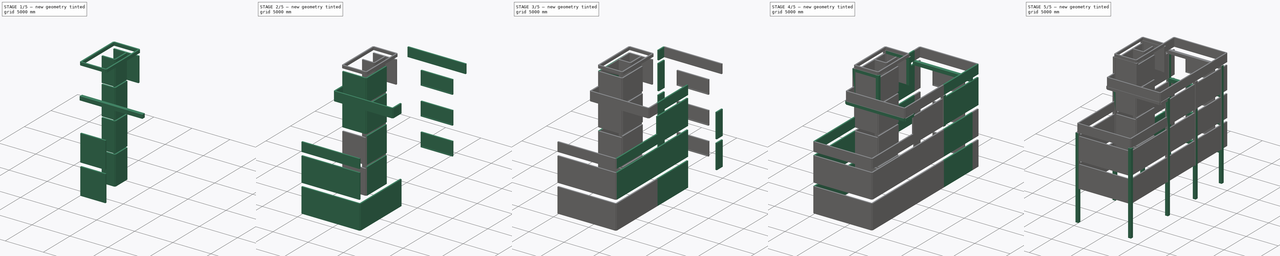
[diagram: build sequence overview — one tinted view per stage of 5, left to right]
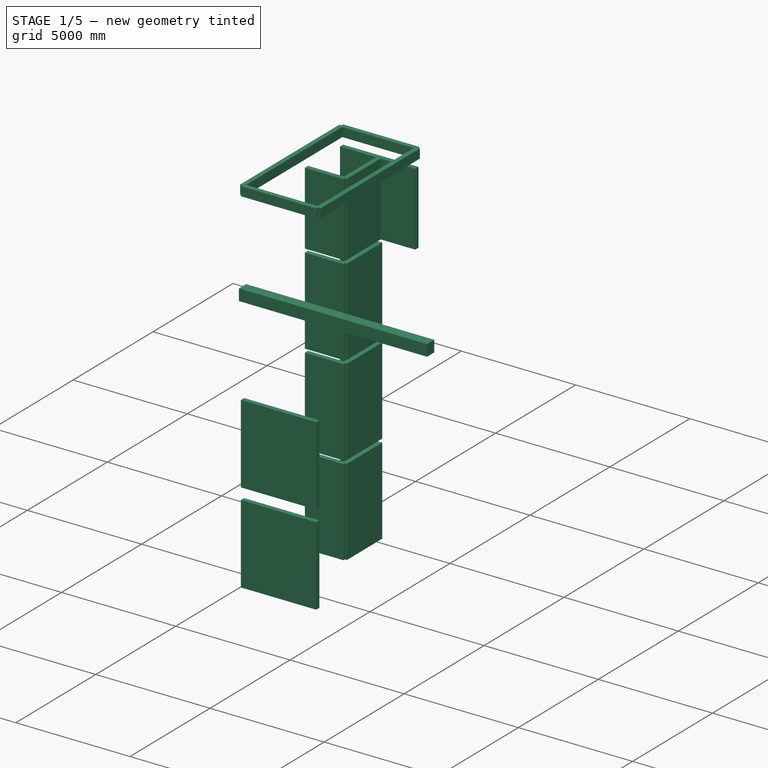
[diagram: stage 1 of 5 — iso view after this stage's code; geometry added in this stage tinted green]
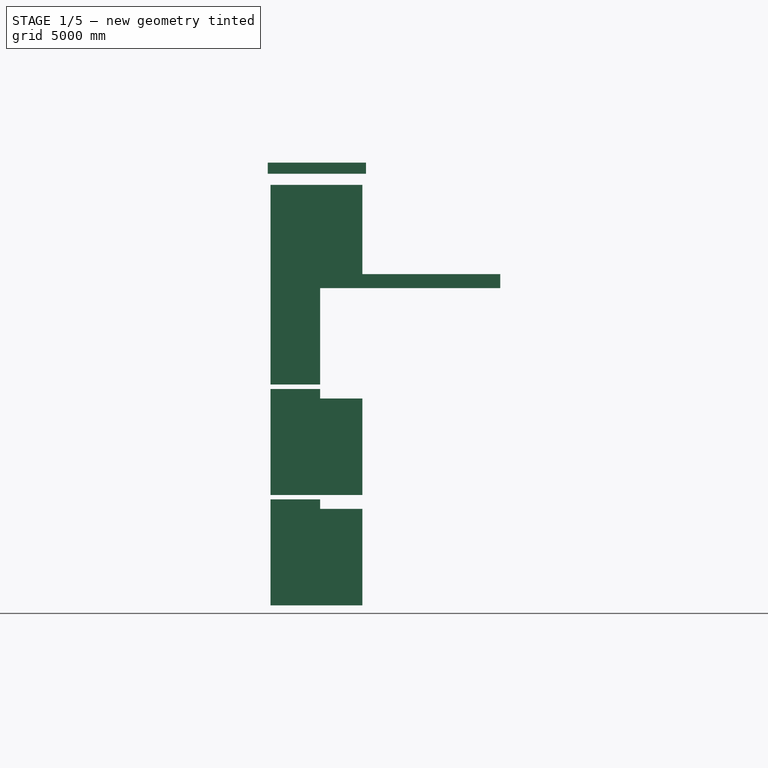
[diagram: stage 1 of 5 — front view after this stage's code; geometry added in this stage tinted green]
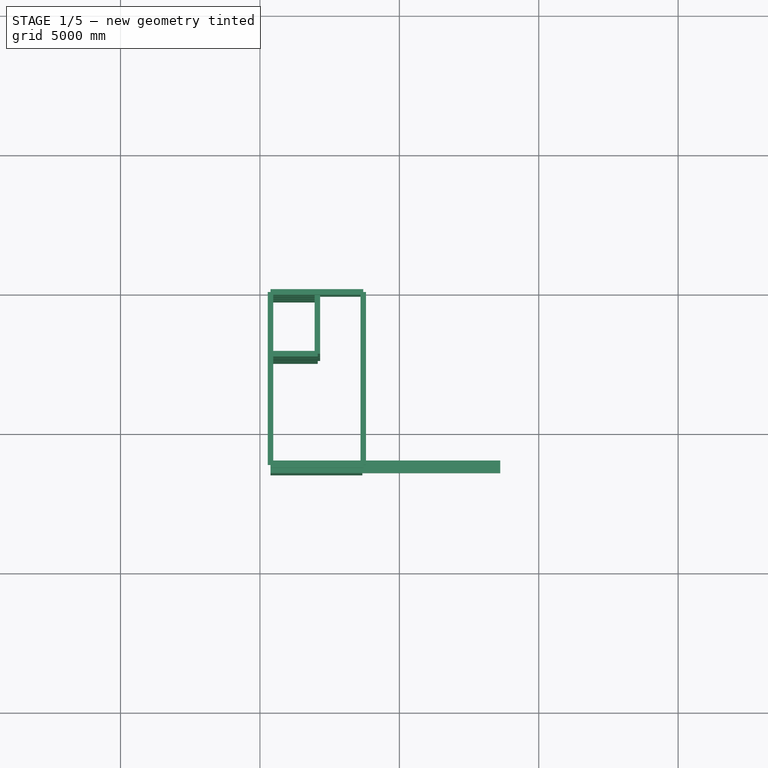
[diagram: stage 1 of 5 — top view after this stage's code; geometry added in this stage tinted green]
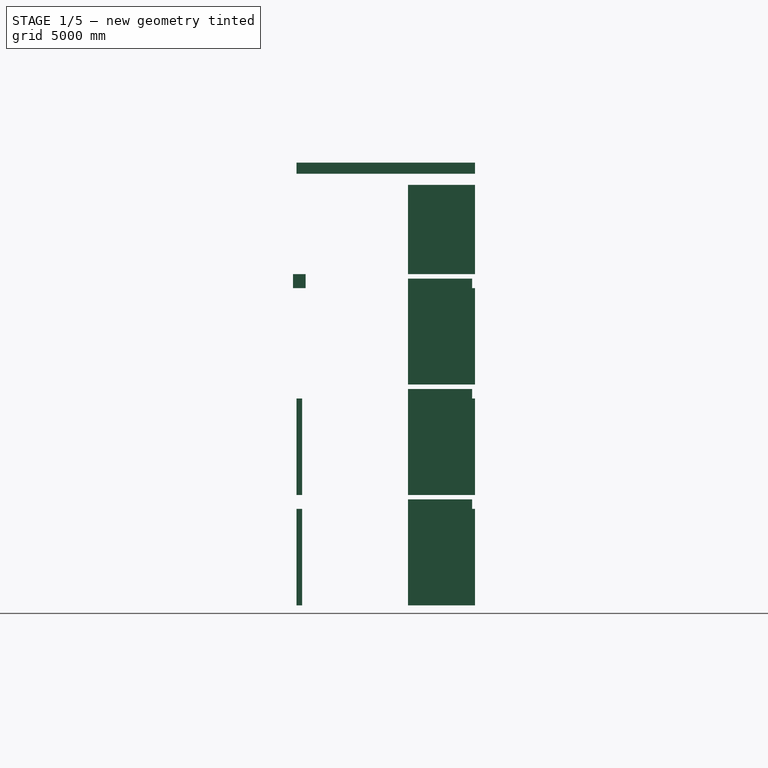
[diagram: stage 1 of 5 — right view after this stage's code; geometry added in this stage tinted green]
FCSTD DOCUMENT  (FreeCAD 0.21R32634 (Git))
Label: wall
License: All rights reserved
LicenseURL: http://en.wikipedia.org/wiki/All_rights_reserved
objects: Part::FeaturePython×169, Part::Part2DObjectPython×133, Sketcher::SketchObject×69, App::GeometryPython×7
note: 378 computed .brp shape members not serialized (recipe doc carries the construction recipe); baked Part::Feature solids carry a one-line shape summary decoded from their .brp

FEATURE [Part::Part2DObjectPython] Line062  label="B8_Story1_CenterLine"  # Draft 2D object (typed FeaturePython)
  Area = 0
  ChamferSize = 0
  Closed = false
  End = (8620,14830,4450)
  FilletRadius = 0
  Length = 8240
  MakeFace = true
  Points = (2) [(380,14830,4450),(8620,14830,4450)]
  Start = (380,14830,4450)
  Subdivisions = 0
FEATURE [Part::FeaturePython] Structure062  label="B8_Story1"  # Arch/BIM 7 (typed FeaturePython)
  AttacherType = Attacher::AttachEngine3D
  AttachmentOffset = pos=(0,-250,0) rot=(0,0,1;0rad)
  Base = -> B45H50
  BaseMirror = false
  BaseOffsetX = 0
  BaseOffsetY = 0
  BasePerpendicularToTool = false
  BaseRotation = 0
  ComputedLength = 8240
  FaceMaker = 0
  Height = 8240
  HorizontalArea = 3.708e+06
  IfcData = attributes={"GlobalId": {"name": "GlobalId", "type": "IfcGloballyUniqueId", "is_enum": false, "enum_values": []}, "Description": {"... (+475 chars omitted),+1 more (map truncated)
  IfcType = 7
  Length = 0
  MapMode = 7
  MoveBase = false
  MoveWithHost = false
  Nodes = (2) [(380,14830,4450),(8620,14830,4450)]
  NodesOffset = 0
  Normal = (0,0,0)
  PerimeterLength = 17380
  Placement = pos=(380,14830,4200) rot=(0.57735,0.57735,0.57735;2.0944rad)
  PredefinedType = 0
  Support = -> [Line062]
  ToolOffsetFirst = 0
  ToolOffsetLast = 0
  VerticalArea = 8.69e+06
  Width = 100
FEATURE [Part::Part2DObjectPython] Line064  label="B8_Roof_CenterLine"  # Draft 2D object (typed FeaturePython)
  Area = 0
  ChamferSize = 0
  Closed = false
  End = (8620,14830,16330)
  FilletRadius = 0
  Length = 8240
  MakeFace = true
  Points = (2) [(380,14830,16330),(8620,14830,16330)]
  Start = (380,14830,16330)
  Subdivisions = 0
FEATURE [Part::FeaturePython] Structure064  label="B8_Roof"  # Arch/BIM 7 (typed FeaturePython)
  AttacherType = Attacher::AttachEngine3D
  AttachmentOffset = pos=(0,-250,0) rot=(0,0,1;0rad)
  Base = -> B45H50
  BaseMirror = false
  BaseOffsetX = 0
  BaseOffsetY = 0
  BasePerpendicularToTool = false
  BaseRotation = 0
  ComputedLength = 8240
  FaceMaker = 0
  Height = 8240
  HorizontalArea = 3.708e+06
  IfcData = attributes={"GlobalId": {"name": "GlobalId", "type": "IfcGloballyUniqueId", "is_enum": false, "enum_values": []}, "Description": {"... (+475 chars omitted),+1 more (map truncated)
  IfcType = 7
  Length = 0
  MapMode = 7
  MoveBase = false
  MoveWithHost = false
  Nodes = (2) [(380,14830,16330),(8620,14830,16330)]
  NodesOffset = 0
  Normal = (0,0,0)
  PerimeterLength = 17380
  Placement = pos=(380,14830,16080) rot=(0.57735,0.57735,0.57735;2.0944rad)
  PredefinedType = 0
  Support = -> [Line064]
  ToolOffsetFirst = 0
  ToolOffsetLast = 0
  VerticalArea = 8.69e+06
  Width = 100
FEATURE [Part::Part2DObjectPython] Line065  label="B8_Story3_CenterLine"  # Draft 2D object (typed FeaturePython)
  Area = 0
  ChamferSize = 0
  Closed = false
  End = (8620,14830,12370)
  FilletRadius = 0
  Length = 8240
  MakeFace = true
  Points = (2) [(380,14830,12370),(8620,14830,12370)]
  Start = (380,14830,12370)
  Subdivisions = 0
FEATURE [Part::FeaturePython] Structure065  label="B8_Story3"  # Arch/BIM 7 (typed FeaturePython)
  AttacherType = Attacher::AttachEngine3D
  AttachmentOffset = pos=(0,-250,0) rot=(0,0,1;0rad)
  Base = -> B45H50
  BaseMirror = false
  BaseOffsetX = 0
  BaseOffsetY = 0
  BasePerpendicularToTool = false
  BaseRotation = 0
  ComputedLength = 8240
  FaceMaker = 0
  Height = 8240
  HorizontalArea = 3.708e+06
  IfcData = attributes={"GlobalId": {"name": "GlobalId", "type": "IfcGloballyUniqueId", "is_enum": false, "enum_values": []}, "Description": {"... (+475 chars omitted),+1 more (map truncated)
  IfcType = 7
  Length = 0
  MapMode = 7
  MoveBase = false
  MoveWithHost = false
  Nodes = (2) [(380,14830,12370),(8620,14830,12370)]
  NodesOffset = 0
  Normal = (0,0,0)
  PerimeterLength = 17380
  Placement = pos=(380,14830,12120) rot=(0.57735,0.57735,0.57735;2.0944rad)
  PredefinedType = 0
  Support = -> [Line065]
  ToolOffsetFirst = 0
  ToolOffsetLast = 0
  VerticalArea = 8.69e+06
  Width = 100
FEATURE [Part::Part2DObjectPython] Line066  label="B8_Story2_CenterLine"  # Draft 2D object (typed FeaturePython)
  Area = 0
  ChamferSize = 0
  Closed = false
  End = (8620,14830,8410)
  FilletRadius = 0
  Length = 8240
  MakeFace = true
  Points = (2) [(380,14830,8410),(8620,14830,8410)]
  Start = (380,14830,8410)
  Subdivisions = 0
FEATURE [Part::FeaturePython] Structure066  label="B8_Story2"  # Arch/BIM 7 (typed FeaturePython)
  AttacherType = Attacher::AttachEngine3D
  AttachmentOffset = pos=(0,-250,0) rot=(0,0,1;0rad)
  Base = -> B45H50
  BaseMirror = false
  BaseOffsetX = 0
  BaseOffsetY = 0
  BasePerpendicularToTool = false
  BaseRotation = 0
  ComputedLength = 8240
  FaceMaker = 0
  Height = 8240
  HorizontalArea = 3.708e+06
  IfcData = attributes={"GlobalId": {"name": "GlobalId", "type": "IfcGloballyUniqueId", "is_enum": false, "enum_values": []}, "Description": {"... (+475 chars omitted),+1 more (map truncated)
  IfcType = 7
  Length = 0
  MapMode = 7
  MoveBase = false
  MoveWithHost = false
  Nodes = (2) [(380,14830,8410),(8620,14830,8410)]
  NodesOffset = 0
  Normal = (0,0,0)
  PerimeterLength = 17380
  Placement = pos=(380,14830,8160) rot=(0.57735,0.57735,0.57735;2.0944rad)
  PredefinedType = 0
  Support = -> [Line066]
  ToolOffsetFirst = 0
  ToolOffsetLast = 0
  VerticalArea = 8.69e+06
  Width = 100
FEATURE [Part::Part2DObjectPython] Line067  label="B9_Story1_CenterLine"  # Draft 2D object (typed FeaturePython)
  Area = 0
  ChamferSize = 0
  Closed = false
  End = (8620,8630,4450)
  FilletRadius = 0
  Length = 8240
  MakeFace = true
  Points = (2) [(380,8630,4450),(8620,8630,4450)]
  Start = (380,8630,4450)
  Subdivisions = 0
FEATURE [Part::FeaturePython] Structure067  label="B9_Story1"  # Arch/BIM 7 (typed FeaturePython)
  AttacherType = Attacher::AttachEngine3D
  AttachmentOffset = pos=(0,-250,0) rot=(0,0,1;0rad)
  Base = -> B45H50
  BaseMirror = false
  BaseOffsetX = 0
  BaseOffsetY = 0
  BasePerpendicularToTool = false
  BaseRotation = 0
  ComputedLength = 8240
  FaceMaker = 0
  Height = 8240
  HorizontalArea = 3.708e+06
  IfcData = attributes={"GlobalId": {"name": "GlobalId", "type": "IfcGloballyUniqueId", "is_enum": false, "enum_values": []}, "Description": {"... (+475 chars omitted),+1 more (map truncated)
  IfcType = 7
  Length = 0
  MapMode = 7
  MoveBase = false
  MoveWithHost = false
  Nodes = (2) [(380,8630,4450),(8620,8630,4450)]
  NodesOffset = 0
  Normal = (0,0,0)
  PerimeterLength = 17380
  Placement = pos=(380,8630,4200) rot=(0.57735,0.57735,0.57735;2.0944rad)
  PredefinedType = 0
  Support = -> [Line067]
  ToolOffsetFirst = 0
  ToolOffsetLast = 0
  VerticalArea = 8.69e+06
  Width = 100
FEATURE [Part::Part2DObjectPython] Line069  label="B9_Roof_CenterLine"  # Draft 2D object (typed FeaturePython)
  Area = 0
  ChamferSize = 0
  Closed = false
  End = (8620,8630,16330)
  FilletRadius = 0
  Length = 8240
  MakeFace = true
  Points = (2) [(380,8630,16330),(8620,8630,16330)]
  Start = (380,8630,16330)
  Subdivisions = 0
FEATURE [Part::FeaturePython] Structure069  label="B9_Roof"  # Arch/BIM 7 (typed FeaturePython)
  AttacherType = Attacher::AttachEngine3D
  AttachmentOffset = pos=(0,-250,0) rot=(0,0,1;0rad)
  Base = -> B45H50
  BaseMirror = false
  BaseOffsetX = 0
  BaseOffsetY = 0
  BasePerpendicularToTool = false
  BaseRotation = 0
  ComputedLength = 8240
  FaceMaker = 0
  Height = 8240
  HorizontalArea = 3.708e+06
  IfcData = attributes={"GlobalId": {"name": "GlobalId", "type": "IfcGloballyUniqueId", "is_enum": false, "enum_values": []}, "Description": {"... (+475 chars omitted),+1 more (map truncated)
  IfcType = 7
  Length = 0
  MapMode = 7
  MoveBase = false
  MoveWithHost = false
  Nodes = (2) [(380,8630,16330),(8620,8630,16330)]
  NodesOffset = 0
  Normal = (0,0,0)
  PerimeterLength = 17380
  Placement = pos=(380,8630,16080) rot=(0.57735,0.57735,0.57735;2.0944rad)
  PredefinedType = 0
  Support = -> [Line069]
  ToolOffsetFirst = 0
  ToolOffsetLast = 0
  VerticalArea = 8.69e+06
  Width = 100
FEATURE [Part::Part2DObjectPython] Line070  label="B9_Story3_CenterLine"  # Draft 2D object (typed FeaturePython)
  Area = 0
  ChamferSize = 0
  Closed = false
  End = (8620,8630,12370)
  FilletRadius = 0
  Length = 8240
  MakeFace = true
  Points = (2) [(380,8630,12370),(8620,8630,12370)]
  Start = (380,8630,12370)
  Subdivisions = 0
FEATURE [Part::FeaturePython] Structure070  label="B9_Story3"  # Arch/BIM 7 (typed FeaturePython)
  AttacherType = Attacher::AttachEngine3D
  AttachmentOffset = pos=(0,-250,0) rot=(0,0,1;0rad)
  Base = -> B45H50
  BaseMirror = false
  BaseOffsetX = 0
  BaseOffsetY = 0
  BasePerpendicularToTool = false
  BaseRotation = 0
  ComputedLength = 8240
  FaceMaker = 0
  Height = 8240
  HorizontalArea = 3.708e+06
  IfcData = attributes={"GlobalId": {"name": "GlobalId", "type": "IfcGloballyUniqueId", "is_enum": false, "enum_values": []}, "Description": {"... (+475 chars omitted),+1 more (map truncated)
  IfcType = 7
  Length = 0
  MapMode = 7
  MoveBase = false
  MoveWithHost = false
  Nodes = (2) [(380,8630,12370),(8620,8630,12370)]
  NodesOffset = 0
  Normal = (0,0,0)
  PerimeterLength = 17380
  Placement = pos=(380,8630,12120) rot=(0.57735,0.57735,0.57735;2.0944rad)
  PredefinedType = 0
  Support = -> [Line070]
  ToolOffsetFirst = 0
  ToolOffsetLast = 0
  VerticalArea = 8.69e+06
  Width = 100
FEATURE [Part::Part2DObjectPython] Line071  label="B9_Story2_CenterLine"  # Draft 2D object (typed FeaturePython)
  Area = 0
  ChamferSize = 0
  Closed = false
  End = (8620,8630,8410)
  FilletRadius = 0
  Length = 8240
  MakeFace = true
  Points = (2) [(380,8630,8410),(8620,8630,8410)]
  Start = (380,8630,8410)
  Subdivisions = 0
FEATURE [Part::FeaturePython] Structure071  label="B9_Story2"  # Arch/BIM 7 (typed FeaturePython)
  AttacherType = Attacher::AttachEngine3D
  AttachmentOffset = pos=(0,-250,0) rot=(0,0,1;0rad)
  Base = -> B45H50
  BaseMirror = false
  BaseOffsetX = 0
  BaseOffsetY = 0
  BasePerpendicularToTool = false
  BaseRotation = 0
  ComputedLength = 8240
  FaceMaker = 0
  Height = 8240
  HorizontalArea = 3.708e+06
  IfcData = attributes={"GlobalId": {"name": "GlobalId", "type": "IfcGloballyUniqueId", "is_enum": false, "enum_values": []}, "Description": {"... (+475 chars omitted),+1 more (map truncated)
  IfcType = 7
  Length = 0
  MapMode = 7
  MoveBase = false
  MoveWithHost = false
  Nodes = (2) [(380,8630,8410),(8620,8630,8410)]
  NodesOffset = 0
  Normal = (0,0,0)
  PerimeterLength = 17380
  Placement = pos=(380,8630,8160) rot=(0.57735,0.57735,0.57735;2.0944rad)
  PredefinedType = 0
  Support = -> [Line071]
  ToolOffsetFirst = 0
  ToolOffsetLast = 0
  VerticalArea = 8.69e+06
  Width = 100
FEATURE [Part::Part2DObjectPython] IPE160  # Draft 2D object (typed FeaturePython)
  FlangeThickness = 7.4
  Height = 160
  WebThickness = 5
  Width = 82
FEATURE [Part::Part2DObjectPython] Line094  label="B25_Story1_CenterLine"  # Draft 2D object (typed FeaturePython)
  Area = 0
  ChamferSize = 0
  Closed = false
  End = (3705,12630,4450)
  FilletRadius = 0
  Length = 3325
  MakeFace = true
  Points = (2) [(380,12630,4450),(3705,12630,4450)]
  Start = (380,12630,4450)
  Subdivisions = 0
FEATURE [Part::FeaturePython] Structure094  label="B25_Story1"  # Arch/BIM 7 (typed FeaturePython)
  AttacherType = Attacher::AttachEngine3D
  AttachmentOffset = pos=(0,-80,0) rot=(0,0,1;0rad)
  Base = -> IPE160
  BaseMirror = false
  BaseOffsetX = 0
  BaseOffsetY = 0
  BasePerpendicularToTool = false
  BaseRotation = 0
  ComputedLength = 3325
  FaceMaker = 0
  Height = 3325
  HorizontalArea = 528675
  IfcData = attributes={"GlobalId": {"name": "GlobalId", "type": "IfcGloballyUniqueId", "is_enum": false, "enum_values": []}, "Description": {"... (+475 chars omitted),+1 more (map truncated)
  IfcType = 7
  Length = 0
  MapMode = 7
  MoveBase = false
  MoveWithHost = false
  Nodes = (2) [(380,12630,4450),(3705,12630,4450)]
  NodesOffset = 0
  Normal = (0,0,0)
  PerimeterLength = 0
  Placement = pos=(380,12630,4370) rot=(0.57735,0.57735,0.57735;2.0944rad)
  PredefinedType = 0
  Support = -> [Line094]
  ToolOffsetFirst = 0
  ToolOffsetLast = 0
  VerticalArea = 1.06788e+06
  Width = 100
FEATURE [Part::Part2DObjectPython] Line095  label="B27_Story1_CenterLine"  # Draft 2D object (typed FeaturePython)
  Area = 0
  ChamferSize = 0
  Closed = false
  End = (2060,14830,4450)
  FilletRadius = 0
  Length = 2200
  MakeFace = true
  Points = (2) [(2060,12630,4450),(2060,14830,4450)]
  Start = (2060,12630,4450)
  Subdivisions = 0
FEATURE [Part::FeaturePython] Structure095  label="B27_Story1"  # Arch/BIM 7 (typed FeaturePython)
  AttacherType = Attacher::AttachEngine3D
  AttachmentOffset = pos=(0,-80,0) rot=(0,0,1;0rad)
  Base = -> IPE160
  BaseMirror = false
  BaseOffsetX = 0
  BaseOffsetY = 0
  BasePerpendicularToTool = false
  BaseRotation = 0
  ComputedLength = 2200
  FaceMaker = 0
  Height = 2200
  HorizontalArea = 349800
  IfcData = attributes={"GlobalId": {"name": "GlobalId", "type": "IfcGloballyUniqueId", "is_enum": false, "enum_values": []}, "Description": {"... (+475 chars omitted),+1 more (map truncated)
  IfcType = 7
  Length = 0
  MapMode = 7
  MoveBase = false
  MoveWithHost = false
  Nodes = (2) [(2060,12630,4450),(2060,14830,4450)]
  NodesOffset = 0
  Normal = (0,0,0)
  PerimeterLength = 0
  Placement = pos=(2060,12630,4370) rot=(0,0.707107,0.707107;3.14159rad)
  PredefinedType = 0
  Support = -> [Line095]
  ToolOffsetFirst = 0
  ToolOffsetLast = 0
  VerticalArea = 707879
  Width = 100
FEATURE [Part::Part2DObjectPython] Line096  label="B25_Roof_CenterLine"  # Draft 2D object (typed FeaturePython)
  Area = 0
  ChamferSize = 0
  Closed = false
  End = (3705,12630,16330)
  FilletRadius = 0
  Length = 3325
  MakeFace = true
  Points = (2) [(380,12630,16330),(3705,12630,16330)]
  Start = (380,12630,16330)
  Subdivisions = 0
FEATURE [Part::FeaturePython] Structure096  label="B25_Roof"  # Arch/BIM 7 (typed FeaturePython)
  AttacherType = Attacher::AttachEngine3D
  AttachmentOffset = pos=(0,-80,0) rot=(0,0,1;0rad)
  Base = -> IPE160
  BaseMirror = false
  BaseOffsetX = 0
  BaseOffsetY = 0
  BasePerpendicularToTool = false
  BaseRotation = 0
  ComputedLength = 3325
  FaceMaker = 0
  Height = 3325
  HorizontalArea = 528675
  IfcData = attributes={"GlobalId": {"name": "GlobalId", "type": "IfcGloballyUniqueId", "is_enum": false, "enum_values": []}, "Description": {"... (+475 chars omitted),+1 more (map truncated)
  IfcType = 7
  Length = 0
  MapMode = 7
  MoveBase = false
  MoveWithHost = false
  Nodes = (2) [(380,12630,16330),(3705,12630,16330)]
  NodesOffset = 0
  Normal = (0,0,0)
  PerimeterLength = 0
  Placement = pos=(380,12630,16250) rot=(0.57735,0.57735,0.57735;2.0944rad)
  PredefinedType = 0
  Support = -> [Line096]
  ToolOffsetFirst = 0
  ToolOffsetLast = 0
  VerticalArea = 1.06788e+06
  Width = 100
FEATURE [Part::Part2DObjectPython] Line097  label="B27_Roof_CenterLine"  # Draft 2D object (typed FeaturePython)
  Area = 0
  ChamferSize = 0
  Closed = false
  End = (2060,14830,16330)
  FilletRadius = 0
  Length = 2200
  MakeFace = true
  Points = (2) [(2060,12630,16330),(2060,14830,16330)]
  Start = (2060,12630,16330)
  Subdivisions = 0
FEATURE [Part::FeaturePython] Structure097  label="B27_Roof"  # Arch/BIM 7 (typed FeaturePython)
  AttacherType = Attacher::AttachEngine3D
  AttachmentOffset = pos=(0,-80,0) rot=(0,0,1;0rad)
  Base = -> IPE160
  BaseMirror = false
  BaseOffsetX = 0
  BaseOffsetY = 0
  BasePerpendicularToTool = false
  BaseRotation = 0
  ComputedLength = 2200
  FaceMaker = 0
  Height = 2200
  HorizontalArea = 349800
  IfcData = attributes={"GlobalId": {"name": "GlobalId", "type": "IfcGloballyUniqueId", "is_enum": false, "enum_values": []}, "Description": {"... (+475 chars omitted),+1 more (map truncated)
  IfcType = 7
  Length = 0
  MapMode = 7
  MoveBase = false
  MoveWithHost = false
  Nodes = (2) [(2060,12630,16330),(2060,14830,16330)]
  NodesOffset = 0
  Normal = (0,0,0)
  PerimeterLength = 0
  Placement = pos=(2060,12630,16250) rot=(0,0.707107,0.707107;3.14159rad)
  PredefinedType = 0
  Support = -> [Line097]
  ToolOffsetFirst = 0
  ToolOffsetLast = 0
  VerticalArea = 707879
  Width = 100
FEATURE [Part::Part2DObjectPython] Line098  label="B25_Story3_CenterLine"  # Draft 2D object (typed FeaturePython)
  Area = 0
  ChamferSize = 0
  Closed = false
  End = (3705,12630,12370)
  FilletRadius = 0
  Length = 3325
  MakeFace = true
  Points = (2) [(380,12630,12370),(3705,12630,12370)]
  Start = (380,12630,12370)
  Subdivisions = 0
FEATURE [Part::FeaturePython] Structure098  label="B25_Story3"  # Arch/BIM 7 (typed FeaturePython)
  AttacherType = Attacher::AttachEngine3D
  AttachmentOffset = pos=(0,-80,0) rot=(0,0,1;0rad)
  Base = -> IPE160
  BaseMirror = false
  BaseOffsetX = 0
  BaseOffsetY = 0
  BasePerpendicularToTool = false
  BaseRotation = 0
  ComputedLength = 3325
  FaceMaker = 0
  Height = 3325
  HorizontalArea = 528675
  IfcData = attributes={"GlobalId": {"name": "GlobalId", "type": "IfcGloballyUniqueId", "is_enum": false, "enum_values": []}, "Description": {"... (+475 chars omitted),+1 more (map truncated)
  IfcType = 7
  Length = 0
  MapMode = 7
  MoveBase = false
  MoveWithHost = false
  Nodes = (2) [(380,12630,12370),(3705,12630,12370)]
  NodesOffset = 0
  Normal = (0,0,0)
  PerimeterLength = 0
  Placement = pos=(380,12630,12290) rot=(0.57735,0.57735,0.57735;2.0944rad)
  PredefinedType = 0
  Support = -> [Line098]
  ToolOffsetFirst = 0
  ToolOffsetLast = 0
  VerticalArea = 1.06788e+06
  Width = 100
FEATURE [Part::Part2DObjectPython] Line099  label="B27_Story3_CenterLine"  # Draft 2D object (typed FeaturePython)
  Area = 0
  ChamferSize = 0
  Closed = false
  End = (2060,14830,12370)
  FilletRadius = 0
  Length = 2200
  MakeFace = true
  Points = (2) [(2060,12630,12370),(2060,14830,12370)]
  Start = (2060,12630,12370)
  Subdivisions = 0
FEATURE [Part::FeaturePython] Structure099  label="B27_Story3"  # Arch/BIM 7 (typed FeaturePython)
  AttacherType = Attacher::AttachEngine3D
  AttachmentOffset = pos=(0,-80,0) rot=(0,0,1;0rad)
  Base = -> IPE160
  BaseMirror = false
  BaseOffsetX = 0
  BaseOffsetY = 0
  BasePerpendicularToTool = false
  BaseRotation = 0
  ComputedLength = 2200
  FaceMaker = 0
  Height = 2200
  HorizontalArea = 349800
  IfcData = attributes={"GlobalId": {"name": "GlobalId", "type": "IfcGloballyUniqueId", "is_enum": false, "enum_values": []}, "Description": {"... (+475 chars omitted),+1 more (map truncated)
  IfcType = 7
  Length = 0
  MapMode = 7
  MoveBase = false
  MoveWithHost = false
  Nodes = (2) [(2060,12630,12370),(2060,14830,12370)]
  NodesOffset = 0
  Normal = (0,0,0)
  PerimeterLength = 0
  Placement = pos=(2060,12630,12290) rot=(0,0.707107,0.707107;3.14159rad)
  PredefinedType = 0
  Support = -> [Line099]
  ToolOffsetFirst = 0
  ToolOffsetLast = 0
  VerticalArea = 707879
  Width = 100
FEATURE [Part::Part2DObjectPython] Line100  label="B25_Story2_CenterLine"  # Draft 2D object (typed FeaturePython)
  Area = 0
  ChamferSize = 0
  Closed = false
  End = (3705,12630,8410)
  FilletRadius = 0
  Length = 3325
  MakeFace = true
  Points = (2) [(380,12630,8410),(3705,12630,8410)]
  Start = (380,12630,8410)
  Subdivisions = 0
FEATURE [Part::FeaturePython] Structure100  label="B25_Story2"  # Arch/BIM 7 (typed FeaturePython)
  AttacherType = Attacher::AttachEngine3D
  AttachmentOffset = pos=(0,-80,0) rot=(0,0,1;0rad)
  Base = -> IPE160
  BaseMirror = false
  BaseOffsetX = 0
  BaseOffsetY = 0
  BasePerpendicularToTool = false
  BaseRotation = 0
  ComputedLength = 3325
  FaceMaker = 0
  Height = 3325
  HorizontalArea = 528675
  IfcData = attributes={"GlobalId": {"name": "GlobalId", "type": "IfcGloballyUniqueId", "is_enum": false, "enum_values": []}, "Description": {"... (+475 chars omitted),+1 more (map truncated)
  IfcType = 7
  Length = 0
  MapMode = 7
  MoveBase = false
  MoveWithHost = false
  Nodes = (2) [(380,12630,8410),(3705,12630,8410)]
  NodesOffset = 0
  Normal = (0,0,0)
  PerimeterLength = 0
  Placement = pos=(380,12630,8330) rot=(0.57735,0.57735,0.57735;2.0944rad)
  PredefinedType = 0
  Support = -> [Line100]
  ToolOffsetFirst = 0
  ToolOffsetLast = 0
  VerticalArea = 1.06788e+06
  Width = 100
FEATURE [Part::Part2DObjectPython] Line101  label="B27_Story2_CenterLine"  # Draft 2D object (typed FeaturePython)
  Area = 0
  ChamferSize = 0
  Closed = false
  End = (2060,14830,8410)
  FilletRadius = 0
  Length = 2200
  MakeFace = true
  Points = (2) [(2060,12630,8410),(2060,14830,8410)]
  Start = (2060,12630,8410)
  Subdivisions = 0
FEATURE [Part::FeaturePython] Structure101  label="B27_Story2"  # Arch/BIM 7 (typed FeaturePython)
  AttacherType = Attacher::AttachEngine3D
  AttachmentOffset = pos=(0,-80,0) rot=(0,0,1;0rad)
  Base = -> IPE160
  BaseMirror = false
  BaseOffsetX = 0
  BaseOffsetY = 0
  BasePerpendicularToTool = false
  BaseRotation = 0
  ComputedLength = 2200
  FaceMaker = 0
  Height = 2200
  HorizontalArea = 349800
  IfcData = attributes={"GlobalId": {"name": "GlobalId", "type": "IfcGloballyUniqueId", "is_enum": false, "enum_values": []}, "Description": {"... (+475 chars omitted),+1 more (map truncated)
  IfcType = 7
  Length = 0
  MapMode = 7
  MoveBase = false
  MoveWithHost = false
  Nodes = (2) [(2060,12630,8410),(2060,14830,8410)]
  NodesOffset = 0
  Normal = (0,0,0)
  PerimeterLength = 0
  Placement = pos=(2060,12630,8330) rot=(0,0.707107,0.707107;3.14159rad)
  PredefinedType = 0
  Support = -> [Line101]
  ToolOffsetFirst = 0
  ToolOffsetLast = 0
  VerticalArea = 707879
  Width = 100
FEATURE [Sketcher::SketchObject] WallTrace081  label="B9_Story2_CenterLine_walltrace"
  FullyConstrained = false
  Placement = pos=(0,0,8410) rot=(0,0,1;0rad)
  sketch-geometry (1):
    g0: LineSegment StartX=380 StartY=8630 StartZ=0 EndX=3676 EndY=8630 EndZ=0
FEATURE [Part::FeaturePython] Wall081  # Arch/BIM 166 (typed FeaturePython)
  Align = 2
  Area = 1.14042e+07
  Base = -> WallTrace081
  BlockHeight = 0
  BlockLength = 0
  CountBroken = 0
  CountEntire = 0
  Face = 0
  Height = 3460
  HorizontalArea = 659200
  IfcData = attributes={"GlobalId": {"name": "GlobalId", "type": "IfcGloballyUniqueId", "is_enum": false, "enum_values": []}, "Description": {"... (+533 chars omitted),+1 more (map truncated)
  IfcType = 166
  Joint = 0
  Length = 3296
  MakeBlocks = false
  MoveBase = false
  MoveWithHost = false
  Normal = (0,0,0)
  OffsetFirst = 0
  OffsetSecond = 0
  PerimeterLength = 6992
  PredefinedType = 0
  VerticalArea = 2.41923e+07
  Width = 200
  base = -> Line071
  loadpat = SD
  weight = 220
  expr: Height = Structure070.Shape.BoundBox.ZMin - Structure071.Shape.BoundBox.ZMax
FEATURE [Sketcher::SketchObject] WallTrace082  label="B9_Story1_CenterLine_walltrace"
  FullyConstrained = false
  Placement = pos=(0,0,4450) rot=(0,0,1;0rad)
  sketch-geometry (1):
    g0: LineSegment StartX=380 StartY=8630 StartZ=0 EndX=3676 EndY=8630 EndZ=0
FEATURE [Part::FeaturePython] Wall082  # Arch/BIM 166 (typed FeaturePython)
  Align = 2
  Area = 11404160
  Base = -> WallTrace082
  BlockHeight = 0
  BlockLength = 0
  CountBroken = 0
  CountEntire = 0
  Face = 0
  Height = 3460
  HorizontalArea = 659200
  IfcData = attributes={"GlobalId": {"name": "GlobalId", "type": "IfcGloballyUniqueId", "is_enum": false, "enum_values": []}, "Description": {"... (+533 chars omitted),+1 more (map truncated)
  IfcType = 166
  Joint = 0
  Length = 3296
  MakeBlocks = false
  MoveBase = false
  MoveWithHost = false
  Normal = (0,0,0)
  OffsetFirst = 0
  OffsetSecond = 0
  PerimeterLength = 6992
  PredefinedType = 0
  VerticalArea = 24192320
  Width = 200
  base = -> Line067
  loadpat = SD
  weight = 220
  expr: Height = Structure071.Shape.BoundBox.ZMin - Structure067.Shape.BoundBox.ZMax
FEATURE [Sketcher::SketchObject] WallTrace084  label="B8_Story3_CenterLine_walltrace"
  FullyConstrained = false
  Placement = pos=(0,0,12370) rot=(0,0,1;0rad)
  sketch-geometry (1):
    g0: LineSegment StartX=380 StartY=14830 StartZ=0 EndX=2028 EndY=14830 EndZ=0
FEATURE [Part::FeaturePython] Wall084  # Arch/BIM 166 (typed FeaturePython)
  Align = 2
  Area = 5702080
  Base = -> WallTrace084
  BlockHeight = 0
  BlockLength = 0
  CountBroken = 0
  CountEntire = 0
  Face = 0
  Height = 3460
  HorizontalArea = 329600
  IfcData = attributes={"GlobalId": {"name": "GlobalId", "type": "IfcGloballyUniqueId", "is_enum": false, "enum_values": []}, "Description": {"... (+533 chars omitted),+1 more (map truncated)
  IfcType = 166
  Joint = 0
  Length = 1648
  MakeBlocks = false
  MoveBase = false
  MoveWithHost = false
  Normal = (0,0,0)
  OffsetFirst = 0
  OffsetSecond = 0
  PerimeterLength = 3696
  PredefinedType = 0
  VerticalArea = 12788160
  Width = 200
  base = -> Line065
  loadpat = SD
  weight = 220
  expr: Height = Structure064.Shape.BoundBox.ZMin - Structure065.Shape.BoundBox.ZMax
FEATURE [Sketcher::SketchObject] WallTrace085  label="B8_Story2_CenterLine_walltrace"
  FullyConstrained = false
  Placement = pos=(0,0,8410) rot=(0,0,1;0rad)
  sketch-geometry (1):
    g0: LineSegment StartX=380 StartY=14830 StartZ=0 EndX=2028 EndY=14830 EndZ=0
FEATURE [Part::FeaturePython] Wall085  # Arch/BIM 166 (typed FeaturePython)
  Align = 2
  Area = 5.70208e+06
  Base = -> WallTrace085
  BlockHeight = 0
  BlockLength = 0
  CountBroken = 0
  CountEntire = 0
  Face = 0
  Height = 3460
  HorizontalArea = 329600
  IfcData = attributes={"GlobalId": {"name": "GlobalId", "type": "IfcGloballyUniqueId", "is_enum": false, "enum_values": []}, "Description": {"... (+533 chars omitted),+1 more (map truncated)
  IfcType = 166
  Joint = 0
  Length = 1648
  MakeBlocks = false
  MoveBase = false
  MoveWithHost = false
  Normal = (0,0,0)
  OffsetFirst = 0
  OffsetSecond = 0
  PerimeterLength = 3696
  PredefinedType = 0
  VerticalArea = 1.27882e+07
  Width = 200
  base = -> Line066
  loadpat = SD
  weight = 220
  expr: Height = Structure065.Shape.BoundBox.ZMin - Structure066.Shape.BoundBox.ZMax
FEATURE [Sketcher::SketchObject] WallTrace086  label="B8_Story1_CenterLine_walltrace"
  FullyConstrained = false
  Placement = pos=(0,0,4450) rot=(0,0,1;0rad)
  sketch-geometry (1):
    g0: LineSegment StartX=380 StartY=14830 StartZ=0 EndX=2028 EndY=14830 EndZ=0
FEATURE [Part::FeaturePython] Wall086  # Arch/BIM 166 (typed FeaturePython)
  Align = 2
  Area = 5702080
  Base = -> WallTrace086
  BlockHeight = 0
  BlockLength = 0
  CountBroken = 0
  CountEntire = 0
  Face = 0
  Height = 3460
  HorizontalArea = 329600
  IfcData = attributes={"GlobalId": {"name": "GlobalId", "type": "IfcGloballyUniqueId", "is_enum": false, "enum_values": []}, "Description": {"... (+533 chars omitted),+1 more (map truncated)
  IfcType = 166
  Joint = 0
  Length = 1648
  MakeBlocks = false
  MoveBase = false
  MoveWithHost = false
  Normal = (0,0,0)
  OffsetFirst = 0
  OffsetSecond = 0
  PerimeterLength = 3696
  PredefinedType = 0
  VerticalArea = 12788160
  Width = 200
  base = -> Line062
  loadpat = SD
  weight = 220
  expr: Height = Structure066.Shape.BoundBox.ZMin - Structure062.Shape.BoundBox.ZMax
FEATURE [Sketcher::SketchObject] WallTrace087  label="B25_Roof_CenterLine_walltrace"
  FullyConstrained = false
  Placement = pos=(0,0,16330) rot=(0,0,1;0rad)
  sketch-geometry (1):
    g0: LineSegment StartX=2075.75 StartY=12630 StartZ=0 EndX=380 EndY=12630 EndZ=0
FEATURE [Part::FeaturePython] Wall087  # Arch/BIM 166 (typed FeaturePython)
  Align = 2
  Area = 5426400
  Base = -> WallTrace087
  BlockHeight = 0
  BlockLength = 0
  CountBroken = 0
  CountEntire = 0
  Face = 0
  Height = 3200
  HorizontalArea = 339150
  IfcData = attributes={"GlobalId": {"name": "GlobalId", "type": "IfcGloballyUniqueId", "is_enum": false, "enum_values": []}, "Description": {"... (+533 chars omitted),+1 more (map truncated)
  IfcType = 166
  Joint = 0
  Length = 1695.75
  MakeBlocks = false
  MoveBase = false
  MoveWithHost = false
  Normal = (0,0,0)
  OffsetFirst = 0
  OffsetSecond = 0
  PerimeterLength = 3791.5
  PredefinedType = 0
  VerticalArea = 12132800
  Width = 200
  base = -> Line096
  loadpat = SD
  weight = 160
FEATURE [Sketcher::SketchObject] WallTrace088  label="B25_Story3_CenterLine_walltrace"
  FullyConstrained = false
  Placement = pos=(0,0,12370) rot=(0,0,1;0rad)
  sketch-geometry (1):
    g0: LineSegment StartX=2075.75 StartY=12630 StartZ=0 EndX=380 EndY=12630 EndZ=0
FEATURE [Part::FeaturePython] Wall088  # Arch/BIM 166 (typed FeaturePython)
  Align = 2
  Area = 6443850
  Base = -> WallTrace088
  BlockHeight = 0
  BlockLength = 0
  CountBroken = 0
  CountEntire = 0
  Face = 0
  Height = 3800
  HorizontalArea = 339150
  IfcData = attributes={"GlobalId": {"name": "GlobalId", "type": "IfcGloballyUniqueId", "is_enum": false, "enum_values": []}, "Description": {"... (+533 chars omitted),+1 more (map truncated)
  IfcType = 166
  Joint = 0
  Length = 1695.75
  MakeBlocks = false
  MoveBase = false
  MoveWithHost = false
  Normal = (0,0,0)
  OffsetFirst = 0
  OffsetSecond = 0
  PerimeterLength = 3791.5
  PredefinedType = 0
  VerticalArea = 14407700
  Width = 200
  base = -> Line098
  loadpat = SD
  weight = 160
  expr: Height = Structure096.Shape.BoundBox.ZMin - Structure098.Shape.BoundBox.ZMax
FEATURE [Sketcher::SketchObject] WallTrace089  label="B25_Story2_CenterLine_walltrace"
  FullyConstrained = false
  Placement = pos=(0,0,8410) rot=(0,0,1;0rad)
  sketch-geometry (1):
    g0: LineSegment StartX=2075.75 StartY=12630 StartZ=0 EndX=380 EndY=12630 EndZ=0
FEATURE [Part::FeaturePython] Wall089  # Arch/BIM 166 (typed FeaturePython)
  Align = 2
  Area = 6.44385e+06
  Base = -> WallTrace089
  BlockHeight = 0
  BlockLength = 0
  CountBroken = 0
  CountEntire = 0
  Face = 0
  Height = 3800
  HorizontalArea = 339150
  IfcData = attributes={"GlobalId": {"name": "GlobalId", "type": "IfcGloballyUniqueId", "is_enum": false, "enum_values": []}, "Description": {"... (+533 chars omitted),+1 more (map truncated)
  IfcType = 166
  Joint = 0
  Length = 1695.75
  MakeBlocks = false
  MoveBase = false
  MoveWithHost = false
  Normal = (0,0,0)
  OffsetFirst = 0
  OffsetSecond = 0
  PerimeterLength = 3791.5
  PredefinedType = 0
  VerticalArea = 1.44077e+07
  Width = 200
  base = -> Line100
  loadpat = SD
  weight = 160
  expr: Height = Structure098.Shape.BoundBox.ZMin - Structure100.Shape.BoundBox.ZMax
FEATURE [Sketcher::SketchObject] WallTrace090  label="B25_Story1_CenterLine_walltrace"
  FullyConstrained = false
  Placement = pos=(0,0,4450) rot=(0,0,1;0rad)
  sketch-geometry (1):
    g0: LineSegment StartX=2075.75 StartY=12630 StartZ=0 EndX=380 EndY=12630 EndZ=0
FEATURE [Part::FeaturePython] Wall090  # Arch/BIM 166 (typed FeaturePython)
  Align = 2
  Area = 6443850
  Base = -> WallTrace090
  BlockHeight = 0
  BlockLength = 0
  CountBroken = 0
  CountEntire = 0
  Face = 0
  Height = 3800
  HorizontalArea = 339150
  IfcData = attributes={"GlobalId": {"name": "GlobalId", "type": "IfcGloballyUniqueId", "is_enum": false, "enum_values": []}, "Description": {"... (+533 chars omitted),+1 more (map truncated)
  IfcType = 166
  Joint = 0
  Length = 1695.75
  MakeBlocks = false
  MoveBase = false
  MoveWithHost = false
  Normal = (0,0,0)
  OffsetFirst = 0
  OffsetSecond = 0
  PerimeterLength = 3791.5
  PredefinedType = 0
  VerticalArea = 14407700
  Width = 200
  base = -> Line094
  loadpat = SD
  weight = 160
  expr: Height = Structure100.Shape.BoundBox.ZMin - Structure094.Shape.BoundBox.ZMax
FEATURE [Sketcher::SketchObject] WallTrace091  label="B27_Roof_CenterLine_walltrace"
  FullyConstrained = false
  Placement = pos=(0,0,16330) rot=(0,0,1;0rad)
  sketch-geometry (1):
    g0: LineSegment StartX=2060 StartY=12630 StartZ=0 EndX=2060 EndY=14830 EndZ=0
FEATURE [Part::FeaturePython] Wall091  # Arch/BIM 166 (typed FeaturePython)
  Align = 2
  Area = 7.04e+06
  Base = -> WallTrace091
  BlockHeight = 0
  BlockLength = 0
  CountBroken = 0
  CountEntire = 0
  Face = 0
  Height = 3200
  HorizontalArea = 440000
  IfcData = attributes={"GlobalId": {"name": "GlobalId", "type": "IfcGloballyUniqueId", "is_enum": false, "enum_values": []}, "Description": {"... (+533 chars omitted),+1 more (map truncated)
  IfcType = 166
  Joint = 0
  Length = 2200
  MakeBlocks = false
  MoveBase = false
  MoveWithHost = false
  Normal = (0,0,0)
  OffsetFirst = 0
  OffsetSecond = 0
  PerimeterLength = 4800
  PredefinedType = 0
  VerticalArea = 1.536e+07
  Width = 200
  base = -> Line097
  loadpat = SD
  weight = 160
FEATURE [Sketcher::SketchObject] WallTrace092  label="B27_Story3_CenterLine_walltrace"
  FullyConstrained = false
  Placement = pos=(0,0,12370) rot=(0,0,1;0rad)
  sketch-geometry (1):
    g0: LineSegment StartX=2060 StartY=12630 StartZ=0 EndX=2060 EndY=14830 EndZ=0
FEATURE [Part::FeaturePython] Wall092  # Arch/BIM 166 (typed FeaturePython)
  Align = 2
  Area = 8.36e+06
  Base = -> WallTrace092
  BlockHeight = 0
  BlockLength = 0
  CountBroken = 0
  CountEntire = 0
  Face = 0
  Height = 3800
  HorizontalArea = 440000
  IfcData = attributes={"GlobalId": {"name": "GlobalId", "type": "IfcGloballyUniqueId", "is_enum": false, "enum_values": []}, "Description": {"... (+533 chars omitted),+1 more (map truncated)
  IfcType = 166
  Joint = 0
  Length = 2200
  MakeBlocks = false
  MoveBase = false
  MoveWithHost = false
  Normal = (0,0,0)
  OffsetFirst = 0
  OffsetSecond = 0
  PerimeterLength = 4800
  PredefinedType = 0
  VerticalArea = 1.824e+07
  Width = 200
  base = -> Line099
  loadpat = SD
  weight = 160
  expr: Height = Structure097.Shape.BoundBox.ZMin - Structure099.Shape.BoundBox.ZMax
FEATURE [App::GeometryPython] BuildingPart003  label="Story3"  # Arch/BIM 14 (typed FeaturePython)
  Area = 0
  CompositionType = 0
  Elevation = 12370
  Group = -> [Line056,Structure060,Line073,Structure089,Wire013,Structure025,Line047,Wire009,Wire019,Line065,Structure052,Structure077,Line089,Line060,Line098,Structure040,Structure065,Structure073,Line052,Line016,Structure016,Structure020,Structure056,Structure002,Structure044,Line028,Line012,Line099,Structure028,Line044,Wire005,Line002,Line040,Line070,Line020,Line077,Line025,Line085,Structure099,Line031,+29 more]
  Height = 3960
  HeightPropagate = true
  IfcData = attributes={"GlobalId": {"name": "GlobalId", "type": "IfcGloballyUniqueId", "is_enum": false, "enum_values": []}, "Description": {"... (+875 chars omitted),+1 more (map truncated)
  IfcType = 14
  LevelOffset = 0
  LongName = Story3
  MaterialsTable = Undefined=0,1,2,3,4,5,6,7,8,9,10,11,12,13,14,15,16,17,18,19,20,21,22,23,24,25,26,27,28,29,30,31,32,33,34,35,36,37,38,39,40
  OnlySolids = true
  Placement = pos=(0,0,12370) rot=(0,0,1;0rad)
  expr: Elevation = .Placement.Base.z
FEATURE [Sketcher::SketchObject] WallTrace093  label="B27_Story2_CenterLine_walltrace"
  FullyConstrained = false
  Placement = pos=(0,0,8410) rot=(0,0,1;0rad)
  sketch-geometry (1):
    g0: LineSegment StartX=2060 StartY=12630 StartZ=0 EndX=2060 EndY=14830 EndZ=0
FEATURE [Part::FeaturePython] Wall093  # Arch/BIM 166 (typed FeaturePython)
  Align = 2
  Area = 8.36e+06
  Base = -> WallTrace093
  BlockHeight = 0
  BlockLength = 0
  CountBroken = 0
  CountEntire = 0
  Face = 0
  Height = 3800
  HorizontalArea = 440000
  IfcData = attributes={"GlobalId": {"name": "GlobalId", "type": "IfcGloballyUniqueId", "is_enum": false, "enum_values": []}, "Description": {"... (+533 chars omitted),+1 more (map truncated)
  IfcType = 166
  Joint = 0
  Length = 2200
  MakeBlocks = false
  MoveBase = false
  MoveWithHost = false
  Normal = (0,0,0)
  OffsetFirst = 0
  OffsetSecond = 0
  PerimeterLength = 4800
  PredefinedType = 0
  VerticalArea = 1.824e+07
  Width = 200
  base = -> Line101
  loadpat = SD
  weight = 160
  expr: Height = Structure099.Shape.BoundBox.ZMin - Structure101.Shape.BoundBox.ZMax
FEATURE [App::GeometryPython] BuildingPart002  label="Story2"  # Arch/BIM 14 (typed FeaturePython)
  Area = 0
  CompositionType = 0
  Elevation = 8410
  Group = -> [Line006,Line027,Structure041,Line082,Structure100,Structure090,Structure001,Line101,Line041,Line036,Line030,Line090,Structure019,Line015,Structure030,Structure071,Line053,Structure024,Structure027,Structure036,Wire010,Line071,Structure082,Structure011,Line066,Line078,Line024,Structure053,Structure086,Wire020,Structure045,Wire002,Line074,Wire006,Structure066,Structure074,Structure078,Line061,+31 more]
  Height = 3960
  HeightPropagate = true
  IfcData = attributes={"GlobalId": {"name": "GlobalId", "type": "IfcGloballyUniqueId", "is_enum": false, "enum_values": []}, "Description": {"... (+863 chars omitted),+1 more (map truncated)
  IfcType = 14
  LevelOffset = 0
  LongName = Story2
  MaterialsTable = Undefined=0,1,2,3,4,5,6,7,8,9,10,11,12,13,14,15,16,17,18,19,20,21,22,23,24,25,26,27,28,29,30,31,32,33,34,35,36,37,38,39,40
  OnlySolids = true
  Placement = pos=(0,0,8410) rot=(0,0,1;0rad)
  expr: Elevation = .Placement.Base.z
FEATURE [Sketcher::SketchObject] WallTrace094  label="B27_Story1_CenterLine_walltrace"
  FullyConstrained = false
  Placement = pos=(0,0,4450) rot=(0,0,1;0rad)
  sketch-geometry (1):
    g0: LineSegment StartX=2060 StartY=12630 StartZ=0 EndX=2060 EndY=14830 EndZ=0
FEATURE [Part::FeaturePython] Wall094  # Arch/BIM 166 (typed FeaturePython)
  Align = 2
  Area = 8.36e+06
  Base = -> WallTrace094
  BlockHeight = 0
  BlockLength = 0
  CountBroken = 0
  CountEntire = 0
  Face = 0
  Height = 3800
  HorizontalArea = 440000
  IfcData = attributes={"GlobalId": {"name": "GlobalId", "type": "IfcGloballyUniqueId", "is_enum": false, "enum_values": []}, "Description": {"... (+533 chars omitted),+1 more (map truncated)
  IfcType = 166
  Joint = 0
  Length = 2200
  MakeBlocks = false
  MoveBase = false
  MoveWithHost = false
  Normal = (0,0,0)
  OffsetFirst = 0
  OffsetSecond = 0
  PerimeterLength = 4800
  PredefinedType = 0
  VerticalArea = 1.824e+07
  Width = 200
  base = -> Line095
  loadpat = SD
  weight = 160
  expr: Height = Structure101.Shape.BoundBox.ZMin - Structure095.Shape.BoundBox.ZMax
FEATURE [App::GeometryPython] BuildingPart001  label="Story1"  # Arch/BIM 14 (typed FeaturePython)
  Area = 0
  CompositionType = 0
  Elevation = 4450
  Group = -> [Line075,Line018,Structure049,Line014,Structure079,Structure075,Structure034,Structure026,Structure,Line058,Structure072,Line042,Line062,Structure067,Wire003,Structure042,Line005,Structure023,Structure010,Line026,Structure054,Structure018,Structure062,Structure083,Line046,Line072,Line049,Line087,Wire,Structure095,Line,Structure014,Wire011,Wire017,Structure087,Structure046,Line037,Structure058,+31 more]
  Height = 4800
  HeightPropagate = true
  IfcData = attributes={"GlobalId": {"name": "GlobalId", "type": "IfcGloballyUniqueId", "is_enum": false, "enum_values": []}, "Description": {"... (+863 chars omitted),+1 more (map truncated)
  IfcType = 14
  LevelOffset = 0
  LongName = Story1
  MaterialsTable = Undefined=0,1,2,3,4,5,6,7,8,9,10,11,12,13,14,15,16,17,18,19,20,21,22,23,24,25,26,27,28,29,30,31,32,33,34,35,36,37,38,39,40
  OnlySolids = true
  Placement = pos=(0,0,4450) rot=(0,0,1;0rad)
  expr: Elevation = .Placement.Base.z
FEATURE [Sketcher::SketchObject] WallTrace095  label="B8_Roof_CenterLine_walltrace"
  FullyConstrained = false
  Placement = pos=(0,0,16330) rot=(0,0,1;0rad)
  sketch-geometry (1):
    g0: LineSegment StartX=380 StartY=14830 StartZ=0 EndX=3676 EndY=14830 EndZ=0
FEATURE [Part::FeaturePython] Wall095  # Arch/BIM 166 (typed FeaturePython)
  Align = 2
  Area = 10547200
  Base = -> WallTrace095
  BlockHeight = 0
  BlockLength = 0
  CountBroken = 0
  CountEntire = 0
  Face = 0
  Height = 3200
  HorizontalArea = 659200
  IfcData = attributes={"GlobalId": {"name": "GlobalId", "type": "IfcGloballyUniqueId", "is_enum": false, "enum_values": []}, "Description": {"... (+533 chars omitted),+1 more (map truncated)
  IfcType = 166
  Joint = 0
  Length = 3296
  MakeBlocks = false
  MoveBase = false
  MoveWithHost = false
  Normal = (0,0,0)
  OffsetFirst = 0
  OffsetSecond = 0
  PerimeterLength = 6992
  PredefinedType = 0
  VerticalArea = 22374400
  Width = 200
  base = -> Line064
  loadpat = SD
  weight = 220
FEATURE [App::GeometryPython] BuildingPart004  label="Roof"  # Arch/BIM 14 (typed FeaturePython)
  Area = 0
  CompositionType = 0
  Elevation = 16330
  Group = -> [Line092,Wire008,Line080,Line076,Line051,Structure064,Structure097,Structure080,Structure003,Structure021,Line088,Structure093,Line055,Wire015,Line013,Line039,Structure076,Line064,Line084,Structure069,Line008,Structure055,Line021,Line069,Line017,Line003,Structure043,Line093,Structure091,Structure092,Line097,Line096,Structure039,Structure088,Line059,Structure059,Wire018,Wire004,Line091,Wire012,+24 more]
  Height = 3960
  HeightPropagate = true
  IfcData = attributes={"GlobalId": {"name": "GlobalId", "type": "IfcGloballyUniqueId", "is_enum": false, "enum_values": []}, "Description": {"... (+873 chars omitted),+1 more (map truncated)
  IfcType = 14
  LevelOffset = 0
  LongName = Roof
  MaterialsTable = Undefined=0,1,2,3,4,5,6,7,8,9,10,11,12,13,14,15,16,17,18,19,20,21,22,23,24,25,26,27,28,29,30,31,32,33,34,35,36
  OnlySolids = true
  Placement = pos=(0,0,16330) rot=(0,0,1;0rad)
  expr: Elevation = .Placement.Base.z
FEATURE [Sketcher::SketchObject] WallTrace096  label="B22_Ridge_CenterLine_walltrace"
  FullyConstrained = false
  Placement = pos=(0,0,19930) rot=(0,0,1;0rad)
  sketch-geometry (1):
    g0: LineSegment StartX=380 StartY=8630 StartZ=0 EndX=3705 EndY=8630 EndZ=0
FEATURE [Part::FeaturePython] Wall096  # Arch/BIM 166 (typed FeaturePython)
  Align = 2
  Area = 1.33e+06
  Base = -> WallTrace096
  BlockHeight = 0
  BlockLength = 0
  CountBroken = 0
  CountEntire = 0
  Face = 0
  Height = 400
  HorizontalArea = 665000
  IfcData = attributes={"GlobalId": {"name": "GlobalId", "type": "IfcGloballyUniqueId", "is_enum": false, "enum_values": []}, "Description": {"... (+533 chars omitted),+1 more (map truncated)
  IfcType = 166
  Joint = 0
  Length = 3325
  MakeBlocks = false
  MoveBase = false
  MoveWithHost = false
  Normal = (0,0,0)
  OffsetFirst = 0
  OffsetSecond = 0
  PerimeterLength = 7050
  PredefinedType = 0
  VerticalArea = 2820000
  Width = 200
  base = -> Line068
  loadpat = DL
  weight = 170
FEATURE [Sketcher::SketchObject] WallTrace097  label="B21_Ridge_CenterLine_walltrace"
  FullyConstrained = false
  Placement = pos=(0,0,19930) rot=(0,0,1;0rad)
  sketch-geometry (1):
    g0: LineSegment StartX=380 StartY=14830 StartZ=0 EndX=3705 EndY=14830 EndZ=0
FEATURE [Part::FeaturePython] Wall097  # Arch/BIM 166 (typed FeaturePython)
  Align = 2
  Area = 1.33e+06
  Base = -> WallTrace097
  BlockHeight = 0
  BlockLength = 0
  CountBroken = 0
  CountEntire = 0
  Face = 0
  Height = 400
  HorizontalArea = 665000
  IfcData = attributes={"GlobalId": {"name": "GlobalId", "type": "IfcGloballyUniqueId", "is_enum": false, "enum_values": []}, "Description": {"... (+533 chars omitted),+1 more (map truncated)
  IfcType = 166
  Joint = 0
  Length = 3325
  MakeBlocks = false
  MoveBase = false
  MoveWithHost = false
  Normal = (0,0,0)
  OffsetFirst = 0
  OffsetSecond = 0
  PerimeterLength = 7050
  PredefinedType = 0
  VerticalArea = 2820000
  Width = 200
  base = -> Line063
  loadpat = DL
  weight = 170
FEATURE [Sketcher::SketchObject] WallTrace098  label="B12_Ridge_CenterLine_walltrace"
  FullyConstrained = false
  Placement = pos=(0,0,19930) rot=(0,0,1;0rad)
  sketch-geometry (1):
    g0: LineSegment StartX=3705 StartY=8630 StartZ=0 EndX=3705 EndY=14830 EndZ=0
FEATURE [Part::FeaturePython] Wall098  # Arch/BIM 166 (typed FeaturePython)
  Align = 2
  Area = 2.48e+06
  Base = -> WallTrace098
  BlockHeight = 0
  BlockLength = 0
  CountBroken = 0
  CountEntire = 0
  Face = 0
  Height = 400
  HorizontalArea = 1240000
  IfcData = attributes={"GlobalId": {"name": "GlobalId", "type": "IfcGloballyUniqueId", "is_enum": false, "enum_values": []}, "Description": {"... (+533 chars omitted),+1 more (map truncated)
  IfcType = 166
  Joint = 0
  Length = 6200
  MakeBlocks = false
  MoveBase = false
  MoveWithHost = false
  Normal = (0,0,0)
  OffsetFirst = 0
  OffsetSecond = 0
  PerimeterLength = 12800
  PredefinedType = 0
  VerticalArea = 5.12e+06
  Width = 200
  base = -> Line050
  loadpat = DL
  weight = 170
FEATURE [Sketcher::SketchObject] WallTrace099  label="B2_Ridge_CenterLine_walltrace"
  FullyConstrained = false
  Placement = pos=(0,0,19930) rot=(0,0,1;0rad)
  sketch-geometry (1):
    g0: LineSegment StartX=380 StartY=8630 StartZ=0 EndX=380 EndY=14830 EndZ=0
FEATURE [Part::FeaturePython] Wall099  # Arch/BIM 166 (typed FeaturePython)
  Align = 2
  Area = 2.48e+06
  Base = -> WallTrace099
  BlockHeight = 0
  BlockLength = 0
  CountBroken = 0
  CountEntire = 0
  Face = 0
  Height = 400
  HorizontalArea = 1240000
  IfcData = attributes={"GlobalId": {"name": "GlobalId", "type": "IfcGloballyUniqueId", "is_enum": false, "enum_values": []}, "Description": {"... (+533 chars omitted),+1 more (map truncated)
  IfcType = 166
  Joint = 0
  Length = 6200
  MakeBlocks = false
  MoveBase = false
  MoveWithHost = false
  Normal = (0,0,0)
  OffsetFirst = 0
  OffsetSecond = 0
  PerimeterLength = 12800
  PredefinedType = 0
  VerticalArea = 5.12e+06
  Width = 200
  base = -> Line038
  loadpat = DL
  weight = 170
FEATURE [App::GeometryPython] BuildingPart005  label="Ridge"  # Arch/BIM 14 (typed FeaturePython)
  Area = 0
  CompositionType = 0
  Elevation = 19930
  Group = -> [Line033,Structure068,Line050,Line022,Structure033,Structure038,Line004,Structure009,Structure004,Structure050,Line068,Line009,Wire016,Structure022,Line063,Structure063,Line038,Wall096,Wall097,Wall098,Wall099]
  Height = 3600
  HeightPropagate = true
  IfcData = attributes={"GlobalId": {"name": "GlobalId", "type": "IfcGloballyUniqueId", "is_enum": false, "enum_values": []}, "Description": {"... (+874 chars omitted),+1 more (map truncated)
  IfcType = 14
  LevelOffset = 0
  LongName = Ridge
  MaterialsTable = Undefined=0,1,2,3,4,5,6,7,8,9,10,11
  OnlySolids = true
  Placement = pos=(0,0,19930) rot=(0,0,1;0rad)
  expr: Elevation = .Placement.Base.z
FEATURE [App::GeometryPython] BuildingPart006  label="des01"  # Arch/BIM 10 (typed FeaturePython)
  Area = 0
  BuildingType = 0
  CompositionType = 0
  Dead = DL
  ElevationOfRefHeight = 0
  ElevationOfTerrain = 0
  Group = -> [BuildingPart,BuildingPart001,BuildingPart002,BuildingPart003,BuildingPart004,BuildingPart005]
  Height = 0
  HeightPropagate = true
  IfcData = attributes={"GlobalId": {"name": "GlobalId", "type": "IfcGloballyUniqueId", "is_enum": false, "enum_values": []}, "Description": {"... (+989 chars omitted),+1 more (map truncated)
  IfcType = 10
  LevelOffset = 0
  LongName = Building
  MaterialsTable = Undefined=0,1,2,3,4,5,6,7,8,9,10,11,12,13,14,15,16,17,18,19,20,21,22,23,24,25,26,27,28,29,30,31,32,33,34,35,36,37,38,39,40,41,42,4... (+457 chars omitted)
  OnlySolids = true
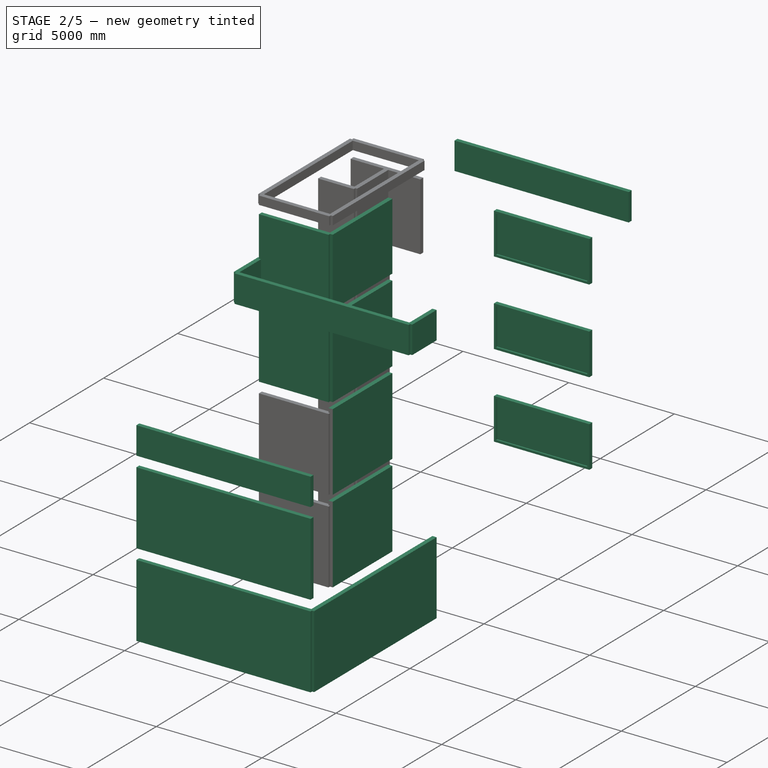
[diagram: stage 2 of 5 — iso view after this stage's code; geometry added in this stage tinted green]
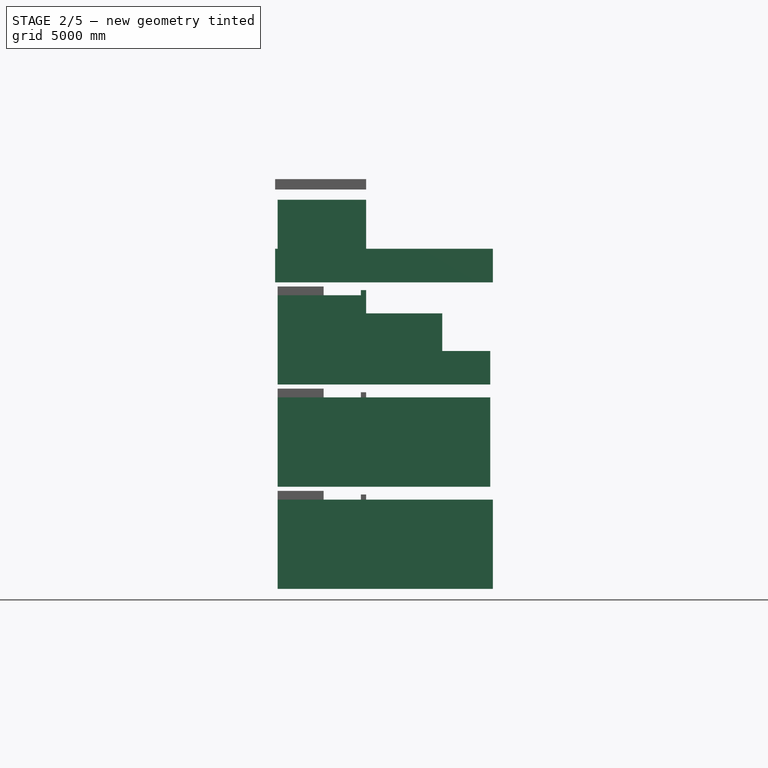
[diagram: stage 2 of 5 — front view after this stage's code; geometry added in this stage tinted green]
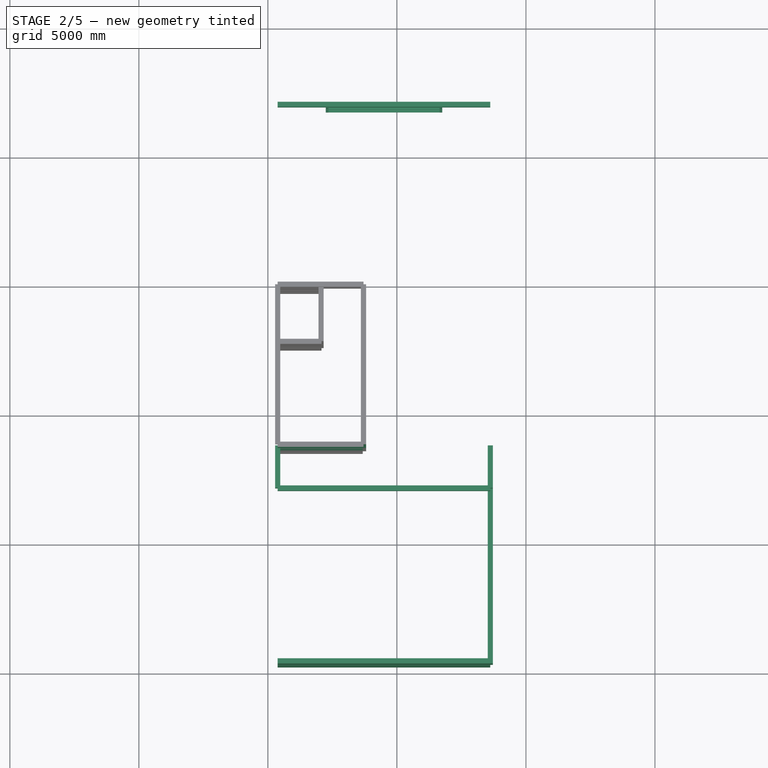
[diagram: stage 2 of 5 — top view after this stage's code; geometry added in this stage tinted green]
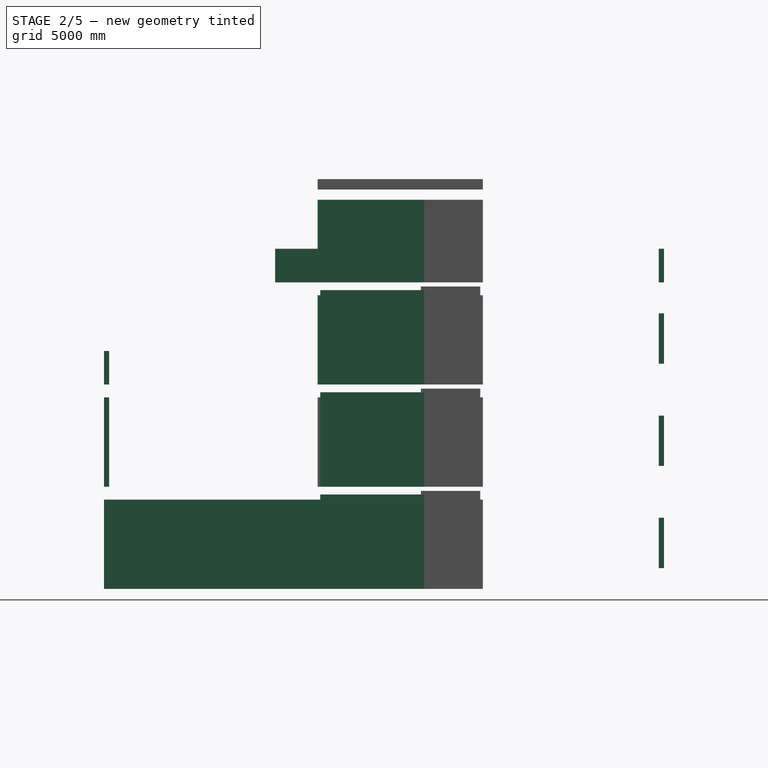
[diagram: stage 2 of 5 — right view after this stage's code; geometry added in this stage tinted green]
FEATURE [Part::Part2DObjectPython] Line046  label="B4_Story1_CenterLine"  # Draft 2D object (typed FeaturePython)
  Area = 0
  ChamferSize = 0
  Closed = false
  End = (8620,8630,4450)
  FilletRadius = 0
  Length = 8280
  MakeFace = true
  Points = (2) [(8620,350,4450),(8620,8630,4450)]
  Start = (8620,350,4450)
  Subdivisions = 0
FEATURE [Part::FeaturePython] Structure046  label="B4_Story1"  # Arch/BIM 7 (typed FeaturePython)
  AttacherType = Attacher::AttachEngine3D
  AttachmentOffset = pos=(0,-250,0) rot=(0,0,1;0rad)
  Base = -> B40H50
  BaseMirror = false
  BaseOffsetX = 0
  BaseOffsetY = 0
  BasePerpendicularToTool = false
  BaseRotation = 0
  ComputedLength = 8280
  FaceMaker = 0
  Height = 8280
  HorizontalArea = 3312000
  IfcData = attributes={"GlobalId": {"name": "GlobalId", "type": "IfcGloballyUniqueId", "is_enum": false, "enum_values": []}, "Description": {"... (+475 chars omitted),+1 more (map truncated)
  IfcType = 7
  Length = 0
  MapMode = 7
  MoveBase = false
  MoveWithHost = false
  Nodes = (2) [(8620,350,4450),(8620,8630,4450)]
  NodesOffset = 0
  Normal = (0,0,0)
  PerimeterLength = 17360
  Placement = pos=(8620,350,4200) rot=(0,0.707107,0.707107;3.14159rad)
  PredefinedType = 0
  Support = -> [Line046]
  ToolOffsetFirst = 0
  ToolOffsetLast = 0
  VerticalArea = 8.68e+06
  Width = 100
FEATURE [Part::Part2DObjectPython] Line048  label="B4_Story2_CenterLine"  # Draft 2D object (typed FeaturePython)
  Area = 0
  ChamferSize = 0
  Closed = false
  End = (8620,8630,8410)
  FilletRadius = 0
  Length = 8280
  MakeFace = true
  Points = (2) [(8620,350,8410),(8620,8630,8410)]
  Start = (8620,350,8410)
  Subdivisions = 0
FEATURE [Part::FeaturePython] Structure048  label="B4_Story2"  # Arch/BIM 7 (typed FeaturePython)
  AttacherType = Attacher::AttachEngine3D
  AttachmentOffset = pos=(0,-250,0) rot=(0,0,1;0rad)
  Base = -> B40H50
  BaseMirror = false
  BaseOffsetX = 0
  BaseOffsetY = 0
  BasePerpendicularToTool = false
  BaseRotation = 0
  ComputedLength = 8280
  FaceMaker = 0
  Height = 8280
  HorizontalArea = 3312000
  IfcData = attributes={"GlobalId": {"name": "GlobalId", "type": "IfcGloballyUniqueId", "is_enum": false, "enum_values": []}, "Description": {"... (+475 chars omitted),+1 more (map truncated)
  IfcType = 7
  Length = 0
  MapMode = 7
  MoveBase = false
  MoveWithHost = false
  Nodes = (2) [(8620,350,8410),(8620,8630,8410)]
  NodesOffset = 0
  Normal = (0,0,0)
  PerimeterLength = 17360
  Placement = pos=(8620,350,8160) rot=(0,0.707107,0.707107;3.14159rad)
  PredefinedType = 0
  Support = -> [Line048]
  ToolOffsetFirst = 0
  ToolOffsetLast = 0
  VerticalArea = 8.68e+06
  Width = 100
FEATURE [Part::Part2DObjectPython] Line050  label="B12_Ridge_CenterLine"  # Draft 2D object (typed FeaturePython)
  Area = 0
  ChamferSize = 0
  Closed = false
  End = (3705,14830,19930)
  FilletRadius = 0
  Length = 6200
  MakeFace = true
  Points = (2) [(3705,8630,19930),(3705,14830,19930)]
  Start = (3705,8630,19930)
  Subdivisions = 0
FEATURE [Part::FeaturePython] Structure050  label="B12_Ridge"  # Arch/BIM 7 (typed FeaturePython)
  AttacherType = Attacher::AttachEngine3D
  AttachmentOffset = pos=(0,-200,0) rot=(0,0,1;0rad)
  Base = -> B30H40
  BaseMirror = false
  BaseOffsetX = 0
  BaseOffsetY = 0
  BasePerpendicularToTool = false
  BaseRotation = 0
  ComputedLength = 6200
  FaceMaker = 0
  Height = 6200
  HorizontalArea = 1860000
  IfcData = attributes={"GlobalId": {"name": "GlobalId", "type": "IfcGloballyUniqueId", "is_enum": false, "enum_values": []}, "Description": {"... (+475 chars omitted),+1 more (map truncated)
  IfcType = 7
  Length = 0
  MapMode = 7
  MoveBase = false
  MoveWithHost = false
  Nodes = (2) [(3705,8630,19930),(3705,14830,19930)]
  NodesOffset = 0
  Normal = (0,0,0)
  PerimeterLength = 13000
  Placement = pos=(3705,8630,19730) rot=(0,0.707107,0.707107;3.14159rad)
  PredefinedType = 0
  Support = -> [Line050]
  ToolOffsetFirst = 0
  ToolOffsetLast = 0
  VerticalArea = 5200000
  Width = 100
FEATURE [Part::Part2DObjectPython] Line072  label="B10_Story1_CenterLine"  # Draft 2D object (typed FeaturePython)
  Area = 0
  ChamferSize = 0
  Closed = false
  End = (8620,350,4450)
  FilletRadius = 0
  Length = 8240
  MakeFace = true
  Points = (2) [(380,350,4450),(8620,350,4450)]
  Start = (380,350,4450)
  Subdivisions = 0
FEATURE [Part::FeaturePython] Structure072  label="B10_Story1"  # Arch/BIM 7 (typed FeaturePython)
  AttacherType = Attacher::AttachEngine3D
  AttachmentOffset = pos=(0,-250,0) rot=(0,0,1;0rad)
  Base = -> B45H50
  BaseMirror = false
  BaseOffsetX = 0
  BaseOffsetY = 0
  BasePerpendicularToTool = false
  BaseRotation = 0
  ComputedLength = 8240
  FaceMaker = 0
  Height = 8240
  HorizontalArea = 3.708e+06
  IfcData = attributes={"GlobalId": {"name": "GlobalId", "type": "IfcGloballyUniqueId", "is_enum": false, "enum_values": []}, "Description": {"... (+475 chars omitted),+1 more (map truncated)
  IfcType = 7
  Length = 0
  MapMode = 7
  MoveBase = false
  MoveWithHost = false
  Nodes = (2) [(380,350,4450),(8620,350,4450)]
  NodesOffset = 0
  Normal = (0,0,0)
  PerimeterLength = 17380
  Placement = pos=(380,350,4200) rot=(0.57735,0.57735,0.57735;2.0944rad)
  PredefinedType = 0
  Support = -> [Line072]
  ToolOffsetFirst = 0
  ToolOffsetLast = 0
  VerticalArea = 8.69e+06
  Width = 100
FEATURE [Part::Part2DObjectPython] Line073  label="B10_Story3_CenterLine"  # Draft 2D object (typed FeaturePython)
  Area = 0
  ChamferSize = 0
  Closed = false
  End = (8620,350,12370)
  FilletRadius = 0
  Length = 8240
  MakeFace = true
  Points = (2) [(380,350,12370),(8620,350,12370)]
  Start = (380,350,12370)
  Subdivisions = 0
FEATURE [Part::FeaturePython] Structure073  label="B10_Story3"  # Arch/BIM 7 (typed FeaturePython)
  AttacherType = Attacher::AttachEngine3D
  AttachmentOffset = pos=(0,-250,0) rot=(0,0,1;0rad)
  Base = -> B45H50
  BaseMirror = false
  BaseOffsetX = 0
  BaseOffsetY = 0
  BasePerpendicularToTool = false
  BaseRotation = 0
  ComputedLength = 8240
  FaceMaker = 0
  Height = 8240
  HorizontalArea = 3.708e+06
  IfcData = attributes={"GlobalId": {"name": "GlobalId", "type": "IfcGloballyUniqueId", "is_enum": false, "enum_values": []}, "Description": {"... (+475 chars omitted),+1 more (map truncated)
  IfcType = 7
  Length = 0
  MapMode = 7
  MoveBase = false
  MoveWithHost = false
  Nodes = (2) [(380,350,12370),(8620,350,12370)]
  NodesOffset = 0
  Normal = (0,0,0)
  PerimeterLength = 17380
  Placement = pos=(380,350,12120) rot=(0.57735,0.57735,0.57735;2.0944rad)
  PredefinedType = 0
  Support = -> [Line073]
  ToolOffsetFirst = 0
  ToolOffsetLast = 0
  VerticalArea = 8.69e+06
  Width = 100
FEATURE [Part::Part2DObjectPython] Line074  label="B10_Story2_CenterLine"  # Draft 2D object (typed FeaturePython)
  Area = 0
  ChamferSize = 0
  Closed = false
  End = (8620,350,8410)
  FilletRadius = 0
  Length = 8240
  MakeFace = true
  Points = (2) [(380,350,8410),(8620,350,8410)]
  Start = (380,350,8410)
  Subdivisions = 0
FEATURE [Part::FeaturePython] Structure074  label="B10_Story2"  # Arch/BIM 7 (typed FeaturePython)
  AttacherType = Attacher::AttachEngine3D
  AttachmentOffset = pos=(0,-250,0) rot=(0,0,1;0rad)
  Base = -> B45H50
  BaseMirror = false
  BaseOffsetX = 0
  BaseOffsetY = 0
  BasePerpendicularToTool = false
  BaseRotation = 0
  ComputedLength = 8240
  FaceMaker = 0
  Height = 8240
  HorizontalArea = 3.708e+06
  IfcData = attributes={"GlobalId": {"name": "GlobalId", "type": "IfcGloballyUniqueId", "is_enum": false, "enum_values": []}, "Description": {"... (+475 chars omitted),+1 more (map truncated)
  IfcType = 7
  Length = 0
  MapMode = 7
  MoveBase = false
  MoveWithHost = false
  Nodes = (2) [(380,350,8410),(8620,350,8410)]
  NodesOffset = 0
  Normal = (0,0,0)
  PerimeterLength = 17380
  Placement = pos=(380,350,8160) rot=(0.57735,0.57735,0.57735;2.0944rad)
  PredefinedType = 0
  Support = -> [Line074]
  ToolOffsetFirst = 0
  ToolOffsetLast = 0
  VerticalArea = 8.69e+06
  Width = 100
FEATURE [Part::Part2DObjectPython] B25H30  # Draft 2D object (typed FeaturePython)
  Height = 300
  Width = 250
FEATURE [Part::Part2DObjectPython] Line075  label="B12_Story1_CenterLine"  # Draft 2D object (typed FeaturePython)
  Area = 0
  ChamferSize = 0
  Closed = false
  End = (3705,14830,4450)
  FilletRadius = 0
  Length = 6200
  MakeFace = true
  Points = (2) [(3705,8630,4450),(3705,14830,4450)]
  Start = (3705,8630,4450)
  Subdivisions = 0
FEATURE [Part::FeaturePython] Structure075  label="B12_Story1"  # Arch/BIM 7 (typed FeaturePython)
  AttacherType = Attacher::AttachEngine3D
  AttachmentOffset = pos=(0,-150,0) rot=(0,0,1;0rad)
  Base = -> B25H30
  BaseMirror = false
  BaseOffsetX = 0
  BaseOffsetY = 0
  BasePerpendicularToTool = false
  BaseRotation = 0
  ComputedLength = 6200
  FaceMaker = 0
  Height = 6200
  HorizontalArea = 1.55e+06
  IfcData = attributes={"GlobalId": {"name": "GlobalId", "type": "IfcGloballyUniqueId", "is_enum": false, "enum_values": []}, "Description": {"... (+475 chars omitted),+1 more (map truncated)
  IfcType = 7
  Length = 0
  MapMode = 7
  MoveBase = false
  MoveWithHost = false
  Nodes = (2) [(3705,8630,4450),(3705,14830,4450)]
  NodesOffset = 0
  Normal = (0,0,0)
  PerimeterLength = 12900
  Placement = pos=(3705,8630,4300) rot=(0,0.707107,0.707107;3.14159rad)
  PredefinedType = 0
  Support = -> [Line075]
  ToolOffsetFirst = 0
  ToolOffsetLast = 0
  VerticalArea = 3870000
  Width = 100
FEATURE [Part::Part2DObjectPython] Line076  label="B12_Roof_CenterLine"  # Draft 2D object (typed FeaturePython)
  Area = 0
  ChamferSize = 0
  Closed = false
  End = (3705,14830,16330)
  FilletRadius = 0
  Length = 6200
  MakeFace = true
  Points = (2) [(3705,8630,16330),(3705,14830,16330)]
  Start = (3705,8630,16330)
  Subdivisions = 0
FEATURE [Part::FeaturePython] Structure076  label="B12_Roof"  # Arch/BIM 7 (typed FeaturePython)
  AttacherType = Attacher::AttachEngine3D
  AttachmentOffset = pos=(0,-150,0) rot=(0,0,1;0rad)
  Base = -> B25H30
  BaseMirror = false
  BaseOffsetX = 0
  BaseOffsetY = 0
  BasePerpendicularToTool = false
  BaseRotation = 0
  ComputedLength = 6200
  FaceMaker = 0
  Height = 6200
  HorizontalArea = 1.55e+06
  IfcData = attributes={"GlobalId": {"name": "GlobalId", "type": "IfcGloballyUniqueId", "is_enum": false, "enum_values": []}, "Description": {"... (+475 chars omitted),+1 more (map truncated)
  IfcType = 7
  Length = 0
  MapMode = 7
  MoveBase = false
  MoveWithHost = false
  Nodes = (2) [(3705,8630,16330),(3705,14830,16330)]
  NodesOffset = 0
  Normal = (0,0,0)
  PerimeterLength = 12900
  Placement = pos=(3705,8630,16180) rot=(0,0.707107,0.707107;3.14159rad)
  PredefinedType = 0
  Support = -> [Line076]
  ToolOffsetFirst = 0
  ToolOffsetLast = 0
  VerticalArea = 3870000
  Width = 100
FEATURE [Part::Part2DObjectPython] Line077  label="B12_Story3_CenterLine"  # Draft 2D object (typed FeaturePython)
  Area = 0
  ChamferSize = 0
  Closed = false
  End = (3705,14830,12370)
  FilletRadius = 0
  Length = 6200
  MakeFace = true
  Points = (2) [(3705,8630,12370),(3705,14830,12370)]
  Start = (3705,8630,12370)
  Subdivisions = 0
FEATURE [Part::FeaturePython] Structure077  label="B12_Story3"  # Arch/BIM 7 (typed FeaturePython)
  AttacherType = Attacher::AttachEngine3D
  AttachmentOffset = pos=(0,-150,0) rot=(0,0,1;0rad)
  Base = -> B25H30
  BaseMirror = false
  BaseOffsetX = 0
  BaseOffsetY = 0
  BasePerpendicularToTool = false
  BaseRotation = 0
  ComputedLength = 6200
  FaceMaker = 0
  Height = 6200
  HorizontalArea = 1.55e+06
  IfcData = attributes={"GlobalId": {"name": "GlobalId", "type": "IfcGloballyUniqueId", "is_enum": false, "enum_values": []}, "Description": {"... (+475 chars omitted),+1 more (map truncated)
  IfcType = 7
  Length = 0
  MapMode = 7
  MoveBase = false
  MoveWithHost = false
  Nodes = (2) [(3705,8630,12370),(3705,14830,12370)]
  NodesOffset = 0
  Normal = (0,0,0)
  PerimeterLength = 12900
  Placement = pos=(3705,8630,12220) rot=(0,0.707107,0.707107;3.14159rad)
  PredefinedType = 0
  Support = -> [Line077]
  ToolOffsetFirst = 0
  ToolOffsetLast = 0
  VerticalArea = 3870000
  Width = 100
FEATURE [Part::Part2DObjectPython] Line078  label="B12_Story2_CenterLine"  # Draft 2D object (typed FeaturePython)
  Area = 0
  ChamferSize = 0
  Closed = false
  End = (3705,14830,8410)
  FilletRadius = 0
  Length = 6200
  MakeFace = true
  Points = (2) [(3705,8630,8410),(3705,14830,8410)]
  Start = (3705,8630,8410)
  Subdivisions = 0
FEATURE [Part::FeaturePython] Structure078  label="B12_Story2"  # Arch/BIM 7 (typed FeaturePython)
  AttacherType = Attacher::AttachEngine3D
  AttachmentOffset = pos=(0,-150,0) rot=(0,0,1;0rad)
  Base = -> B25H30
  BaseMirror = false
  BaseOffsetX = 0
  BaseOffsetY = 0
  BasePerpendicularToTool = false
  BaseRotation = 0
  ComputedLength = 6200
  FaceMaker = 0
  Height = 6200
  HorizontalArea = 1.55e+06
  IfcData = attributes={"GlobalId": {"name": "GlobalId", "type": "IfcGloballyUniqueId", "is_enum": false, "enum_values": []}, "Description": {"... (+475 chars omitted),+1 more (map truncated)
  IfcType = 7
  Length = 0
  MapMode = 7
  MoveBase = false
  MoveWithHost = false
  Nodes = (2) [(3705,8630,8410),(3705,14830,8410)]
  NodesOffset = 0
  Normal = (0,0,0)
  PerimeterLength = 12900
  Placement = pos=(3705,8630,8260) rot=(0,0.707107,0.707107;3.14159rad)
  PredefinedType = 0
  Support = -> [Line078]
  ToolOffsetFirst = 0
  ToolOffsetLast = 0
  VerticalArea = 3870000
  Width = 100
FEATURE [Part::Part2DObjectPython] Line087  label="B14_Story1_CenterLine"  # Draft 2D object (typed FeaturePython)
  Area = 0
  ChamferSize = 0
  Closed = false
  End = (8620,21850,4450)
  FilletRadius = 0
  Length = 8240
  MakeFace = true
  Points = (2) [(380,21850,4450),(8620,21850,4450)]
  Start = (380,21850,4450)
  Subdivisions = 0
FEATURE [Part::FeaturePython] Structure087  label="B14_Story1"  # Arch/BIM 7 (typed FeaturePython)
  AttacherType = Attacher::AttachEngine3D
  AttachmentOffset = pos=(0,-200,0) rot=(0,0,1;0rad)
  Base = -> B30H40
  BaseMirror = false
  BaseOffsetX = 0
  BaseOffsetY = 0
  BasePerpendicularToTool = false
  BaseRotation = 0
  ComputedLength = 8240
  FaceMaker = 0
  Height = 8240
  HorizontalArea = 2.472e+06
  IfcData = attributes={"GlobalId": {"name": "GlobalId", "type": "IfcGloballyUniqueId", "is_enum": false, "enum_values": []}, "Description": {"... (+475 chars omitted),+1 more (map truncated)
  IfcType = 7
  Length = 0
  MapMode = 7
  MoveBase = false
  MoveWithHost = false
  Nodes = (2) [(380,21850,4450),(8620,21850,4450)]
  NodesOffset = 0
  Normal = (0,0,0)
  PerimeterLength = 17080
  Placement = pos=(380,21850,4250) rot=(0.57735,0.57735,0.57735;2.0944rad)
  PredefinedType = 0
  Support = -> [Line087]
  ToolOffsetFirst = 0
  ToolOffsetLast = 0
  VerticalArea = 6.832e+06
  Width = 100
FEATURE [Part::Part2DObjectPython] Line088  label="B14_Roof_CenterLine"  # Draft 2D object (typed FeaturePython)
  Area = 0
  ChamferSize = 0
  Closed = false
  End = (8620,21850,16330)
  FilletRadius = 0
  Length = 8240
  MakeFace = true
  Points = (2) [(380,21850,16330),(8620,21850,16330)]
  Start = (380,21850,16330)
  Subdivisions = 0
FEATURE [Part::FeaturePython] Structure088  label="B14_Roof"  # Arch/BIM 7 (typed FeaturePython)
  AttacherType = Attacher::AttachEngine3D
  AttachmentOffset = pos=(0,-200,0) rot=(0,0,1;0rad)
  Base = -> B30H40
  BaseMirror = false
  BaseOffsetX = 0
  BaseOffsetY = 0
  BasePerpendicularToTool = false
  BaseRotation = 0
  ComputedLength = 8240
  FaceMaker = 0
  Height = 8240
  HorizontalArea = 2.472e+06
  IfcData = attributes={"GlobalId": {"name": "GlobalId", "type": "IfcGloballyUniqueId", "is_enum": false, "enum_values": []}, "Description": {"... (+475 chars omitted),+1 more (map truncated)
  IfcType = 7
  Length = 0
  MapMode = 7
  MoveBase = false
  MoveWithHost = false
  Nodes = (2) [(380,21850,16330),(8620,21850,16330)]
  NodesOffset = 0
  Normal = (0,0,0)
  PerimeterLength = 17080
  Placement = pos=(380,21850,16130) rot=(0.57735,0.57735,0.57735;2.0944rad)
  PredefinedType = 0
  Support = -> [Line088]
  ToolOffsetFirst = 0
  ToolOffsetLast = 0
  VerticalArea = 6.832e+06
  Width = 100
FEATURE [Part::Part2DObjectPython] Line089  label="B14_Story3_CenterLine"  # Draft 2D object (typed FeaturePython)
  Area = 0
  ChamferSize = 0
  Closed = false
  End = (8620,21850,12370)
  FilletRadius = 0
  Length = 8240
  MakeFace = true
  Points = (2) [(380,21850,12370),(8620,21850,12370)]
  Start = (380,21850,12370)
  Subdivisions = 0
FEATURE [Part::FeaturePython] Structure089  label="B14_Story3"  # Arch/BIM 7 (typed FeaturePython)
  AttacherType = Attacher::AttachEngine3D
  AttachmentOffset = pos=(0,-200,0) rot=(0,0,1;0rad)
  Base = -> B30H40
  BaseMirror = false
  BaseOffsetX = 0
  BaseOffsetY = 0
  BasePerpendicularToTool = false
  BaseRotation = 0
  ComputedLength = 8240
  FaceMaker = 0
  Height = 8240
  HorizontalArea = 2.472e+06
  IfcData = attributes={"GlobalId": {"name": "GlobalId", "type": "IfcGloballyUniqueId", "is_enum": false, "enum_values": []}, "Description": {"... (+475 chars omitted),+1 more (map truncated)
  IfcType = 7
  Length = 0
  MapMode = 7
  MoveBase = false
  MoveWithHost = false
  Nodes = (2) [(380,21850,12370),(8620,21850,12370)]
  NodesOffset = 0
  Normal = (0,0,0)
  PerimeterLength = 17080
  Placement = pos=(380,21850,12170) rot=(0.57735,0.57735,0.57735;2.0944rad)
  PredefinedType = 0
  Support = -> [Line089]
  ToolOffsetFirst = 0
  ToolOffsetLast = 0
  VerticalArea = 6.832e+06
  Width = 100
FEATURE [Part::Part2DObjectPython] Line090  label="B14_Story2_CenterLine"  # Draft 2D object (typed FeaturePython)
  Area = 0
  ChamferSize = 0
  Closed = false
  End = (8620,21850,8410)
  FilletRadius = 0
  Length = 8240
  MakeFace = true
  Points = (2) [(380,21850,8410),(8620,21850,8410)]
  Start = (380,21850,8410)
  Subdivisions = 0
FEATURE [Part::FeaturePython] Structure090  label="B14_Story2"  # Arch/BIM 7 (typed FeaturePython)
  AttacherType = Attacher::AttachEngine3D
  AttachmentOffset = pos=(0,-200,0) rot=(0,0,1;0rad)
  Base = -> B30H40
  BaseMirror = false
  BaseOffsetX = 0
  BaseOffsetY = 0
  BasePerpendicularToTool = false
  BaseRotation = 0
  ComputedLength = 8240
  FaceMaker = 0
  Height = 8240
  HorizontalArea = 2.472e+06
  IfcData = attributes={"GlobalId": {"name": "GlobalId", "type": "IfcGloballyUniqueId", "is_enum": false, "enum_values": []}, "Description": {"... (+475 chars omitted),+1 more (map truncated)
  IfcType = 7
  Length = 0
  MapMode = 7
  MoveBase = false
  MoveWithHost = false
  Nodes = (2) [(380,21850,8410),(8620,21850,8410)]
  NodesOffset = 0
  Normal = (0,0,0)
  PerimeterLength = 17080
  Placement = pos=(380,21850,8210) rot=(0.57735,0.57735,0.57735;2.0944rad)
  PredefinedType = 0
  Support = -> [Line090]
  ToolOffsetFirst = 0
  ToolOffsetLast = 0
  VerticalArea = 6.832e+06
  Width = 100
FEATURE [Sketcher::SketchObject] WallTrace060  label="B4_Story1_CenterLine_walltrace"
  FullyConstrained = false
  Placement = pos=(0,0,4450) rot=(0,0,1;0rad)
  sketch-geometry (1):
    g0: LineSegment StartX=8620 StartY=350 StartZ=0 EndX=8620 EndY=8630 EndZ=0
FEATURE [Part::FeaturePython] Wall060  # Arch/BIM 166 (typed FeaturePython)
  Align = 2
  Area = 2.86488e+07
  Base = -> WallTrace060
  BlockHeight = 0
  BlockLength = 0
  CountBroken = 0
  CountEntire = 0
  Face = 0
  Height = 3460
  HorizontalArea = 1656000
  IfcData = attributes={"GlobalId": {"name": "GlobalId", "type": "IfcGloballyUniqueId", "is_enum": false, "enum_values": []}, "Description": {"... (+533 chars omitted),+1 more (map truncated)
  IfcType = 166
  Joint = 0
  Length = 8280
  MakeBlocks = false
  MoveBase = false
  MoveWithHost = false
  Normal = (0,0,0)
  OffsetFirst = 0
  OffsetSecond = 0
  PerimeterLength = 16960
  PredefinedType = 0
  VerticalArea = 5.86816e+07
  Width = 200
  base = -> Line046
  loadpat = SD
  weight = 220
  expr: Height = Structure048.Shape.BoundBox.ZMin - Structure046.Shape.BoundBox.ZMax
FEATURE [Sketcher::SketchObject] WallTrace061  label="B14_Roof_CenterLine_walltrace"
  FullyConstrained = false
  Placement = pos=(0,0,16330) rot=(0,0,1;0rad)
  sketch-geometry (1):
    g0: LineSegment StartX=380 StartY=21850 StartZ=0 EndX=8620 EndY=21850 EndZ=0
FEATURE [Part::FeaturePython] Wall061  # Arch/BIM 166 (typed FeaturePython)
  Align = 2
  Area = 1.0712e+07
  Base = -> WallTrace061
  BlockHeight = 0
  BlockLength = 0
  CountBroken = 0
  CountEntire = 0
  Face = 0
  Height = 1300
  HorizontalArea = 1648000
  IfcData = attributes={"GlobalId": {"name": "GlobalId", "type": "IfcGloballyUniqueId", "is_enum": false, "enum_values": []}, "Description": {"... (+533 chars omitted),+1 more (map truncated)
  IfcType = 166
  Joint = 0
  Length = 8240
  MakeBlocks = false
  MoveBase = false
  MoveWithHost = false
  Normal = (0,0,0)
  OffsetFirst = 0
  OffsetSecond = 0
  PerimeterLength = 16880
  PredefinedType = 0
  VerticalArea = 2.1944e+07
  Width = 200
  base = -> Line088
  loadpat = SD
  weight = 330
FEATURE [Sketcher::SketchObject] WallTrace062  label="B14_Story3_CenterLine_walltrace"
  FullyConstrained = false
  Placement = pos=(0,0,12370) rot=(0,0,1;0rad)
  sketch-geometry (1):
    g0: LineSegment StartX=380 StartY=21850 StartZ=0 EndX=8620 EndY=21850 EndZ=0
FEATURE [Part::FeaturePython] Wall062  # Arch/BIM 166 (typed FeaturePython)
  Align = 2
  Area = 2.93344e+07
  Base = -> WallTrace062
  BlockHeight = 0
  BlockLength = 0
  CountBroken = 0
  CountEntire = 0
  Face = 0
  Height = 3560
  HorizontalArea = 2.55065e+06
  IfcData = attributes={"GlobalId": {"name": "GlobalId", "type": "IfcGloballyUniqueId", "is_enum": false, "enum_values": []}, "Description": {"... (+533 chars omitted),+1 more (map truncated)
  IfcType = 166
  Joint = 0
  Length = 8240
  MakeBlocks = false
  MoveBase = false
  MoveWithHost = false
  Normal = (0,0,0)
  OffsetFirst = 0
  OffsetSecond = 0
  PerimeterLength = 16880
  PredefinedType = 0
  VerticalArea = 4.32721e+07
  Width = 200
  base = -> Line089
  loadpat = SD
  weight = 330
  expr: Height = Structure088.Shape.BoundBox.ZMin - Structure089.Shape.BoundBox.ZMax
FEATURE [Sketcher::SketchObject] Sketch
  FullyConstrained = true
  Placement = pos=(4500,21950,14150) rot=(0,0.707107,0.707107;3.14159rad)
  sketch-geometry (8):
    g0: LineSegment StartX=0 StartY=0 StartZ=0 EndX=4513.23 EndY=0 EndZ=0
    g1: LineSegment StartX=4513.23 StartY=0 StartZ=0 EndX=4513.23 EndY=1949.89 EndZ=0
    g2: LineSegment StartX=4513.23 StartY=1949.89 StartZ=0 EndX=0 EndY=1949.89 EndZ=0
    g3: LineSegment StartX=0 StartY=1949.89 StartZ=0 EndX=0 EndY=0 EndZ=0
    g4: LineSegment StartX=100 StartY=100 StartZ=0 EndX=4413.23 EndY=100 EndZ=0
    g5: LineSegment StartX=4413.23 StartY=100 StartZ=0 EndX=4413.23 EndY=1849.89 EndZ=0
    g6: LineSegment StartX=4413.23 StartY=1849.89 StartZ=0 EndX=100 EndY=1849.89 EndZ=0
    g7: LineSegment StartX=100 StartY=1849.89 StartZ=0 EndX=100 EndY=100 EndZ=0
  constraints (23):
    c: Coincident(g0,g1)
    c: Coincident(g1,g2)
    c: Coincident(g2,g3)
    c: Coincident(g3,g0)
    c: Horizontal(g0)
    c: Horizontal(g2)
    c: Vertical(g1)
    c: Vertical(g3)
    c: Coincident(g4,g5)
    c: Coincident(g5,g6)
    c: Coincident(g6,g7)
    c: Coincident(g7,g4)
    c: Horizontal(g4)
    c: Horizontal(g6)
    c: Vertical(g5)
    c: Vertical(g7)
    c: DistanceY(g1) = 1949.89  'Height'
    c: DistanceX(g0) = 4513.23  'Width'
    c: DistanceY(g6,g2) = 100  'Frame1'
    c: DistanceX(g2,g6) = 100  'Frame2'
    c: DistanceX(g4,g0) = 100  'Frame3'
    c: DistanceY(g0,g4) = 100  'Frame4'
    c: Coincident(g0,g-1)
FEATURE [Part::FeaturePython] Window  # Arch/BIM 170 (typed FeaturePython)
  Area = 8.80032e+06
  Base = -> Sketch
  Frame = 100
  Height = 1949.89
  HoleDepth = 0
  HoleWire = 0
  HorizontalArea = 0
  Hosts = -> [Wall062]
  IfcData = attributes={"GlobalId": {"name": "GlobalId", "type": "IfcGloballyUniqueId", "is_enum": false, "enum_values": []}, "Description": {"... (+1254 chars omitted),+1 more (map truncated)
  IfcType = 170
  LouvreSpacing = 0
  LouvreWidth = 0
  MoveBase = false
  MoveWithHost = true
  Normal = (0,-1,2e-16)
  Opening = 0
  OverallHeight = 1949.89
  OverallWidth = 4513.23
  PartitioningType = 0
  PerimeterLength = 0
  Placement = pos=(2256.62,0,-974.946) rot=(0,0,1;0rad)
  PredefinedType = 0
  Preset = 1
  SymbolElevation = false
  SymbolPlan = false
  VerticalArea = 0
  Width = 4513.23
  WindowParts = OuterFrame | Frame | Wire0,Wire1 | 100.0+V | 0.00+V | Glass | Glass panel | Wire1 | 20.0 | 100.0+V
  expr: OverallHeight = .Height.Value
  expr: OverallWidth = .Width.Value
FEATURE [Sketcher::SketchObject] WallTrace063  label="B14_Story2_CenterLine_walltrace"
  FullyConstrained = false
  Placement = pos=(0,0,8410) rot=(0,0,1;0rad)
  sketch-geometry (1):
    g0: LineSegment StartX=380 StartY=21850 StartZ=0 EndX=8620 EndY=21850 EndZ=0
FEATURE [Part::FeaturePython] Wall063  # Arch/BIM 166 (typed FeaturePython)
  Align = 2
  Area = 2.93344e+07
  Base = -> WallTrace063
  BlockHeight = 0
  BlockLength = 0
  CountBroken = 0
  CountEntire = 0
  Face = 0
  Height = 3560
  HorizontalArea = 2.55065e+06
  IfcData = attributes={"GlobalId": {"name": "GlobalId", "type": "IfcGloballyUniqueId", "is_enum": false, "enum_values": []}, "Description": {"... (+533 chars omitted),+1 more (map truncated)
  IfcType = 166
  Joint = 0
  Length = 8240
  MakeBlocks = false
  MoveBase = false
  MoveWithHost = false
  Normal = (0,0,0)
  OffsetFirst = 0
  OffsetSecond = 0
  PerimeterLength = 16880
  PredefinedType = 0
  VerticalArea = 4.32721e+07
  Width = 200
  base = -> Line090
  loadpat = SD
  weight = 330
  expr: Height = Structure089.Shape.BoundBox.ZMin - Structure090.Shape.BoundBox.ZMax
FEATURE [Sketcher::SketchObject] Sketch001
  FullyConstrained = true
  Placement = pos=(4500,21950,10190) rot=(0,0.707107,0.707107;3.14159rad)
  sketch-geometry (8):
    g0: LineSegment StartX=0 StartY=0 StartZ=0 EndX=4513.23 EndY=0 EndZ=0
    g1: LineSegment StartX=4513.23 StartY=0 StartZ=0 EndX=4513.23 EndY=1949.89 EndZ=0
    g2: LineSegment StartX=4513.23 StartY=1949.89 StartZ=0 EndX=0 EndY=1949.89 EndZ=0
    g3: LineSegment StartX=0 StartY=1949.89 StartZ=0 EndX=0 EndY=0 EndZ=0
    g4: LineSegment StartX=100 StartY=100 StartZ=0 EndX=4413.23 EndY=100 EndZ=0
    g5: LineSegment StartX=4413.23 StartY=100 StartZ=0 EndX=4413.23 EndY=1849.89 EndZ=0
    g6: LineSegment StartX=4413.23 StartY=1849.89 StartZ=0 EndX=100 EndY=1849.89 EndZ=0
    g7: LineSegment StartX=100 StartY=1849.89 StartZ=0 EndX=100 EndY=100 EndZ=0
  constraints (23):
    c: Coincident(g0,g1)
    c: Coincident(g1,g2)
    c: Coincident(g2,g3)
    c: Coincident(g3,g0)
    c: Horizontal(g0)
    c: Horizontal(g2)
    c: Vertical(g1)
    c: Vertical(g3)
    c: Coincident(g4,g5)
    c: Coincident(g5,g6)
    c: Coincident(g6,g7)
    c: Coincident(g7,g4)
    c: Horizontal(g4)
    c: Horizontal(g6)
    c: Vertical(g5)
    c: Vertical(g7)
    c: DistanceY(g1) = 1949.89  'Height'
    c: DistanceX(g0) = 4513.23  'Width'
    c: DistanceY(g6,g2) = 100  'Frame1'
    c: DistanceX(g2,g6) = 100  'Frame2'
    c: DistanceX(g4,g0) = 100  'Frame3'
    c: DistanceY(g0,g4) = 100  'Frame4'
    c: Coincident(g0,g-1)
FEATURE [Part::FeaturePython] Window001  # Arch/BIM 170 (typed FeaturePython)
  Area = 8.80032e+06
  Base = -> Sketch001
  Frame = 100
  Height = 1949.89
  HoleDepth = 0
  HoleWire = 0
  HorizontalArea = 0
  Hosts = -> [Wall063]
  IfcData = attributes={"GlobalId": {"name": "GlobalId", "type": "IfcGloballyUniqueId", "is_enum": false, "enum_values": []}, "Description": {"... (+1254 chars omitted),+1 more (map truncated)
  IfcType = 170
  LouvreSpacing = 0
  LouvreWidth = 0
  MoveBase = false
  MoveWithHost = true
  Normal = (0,-1,2e-16)
  Opening = 0
  OverallHeight = 1949.89
  OverallWidth = 4513.23
  PartitioningType = 0
  PerimeterLength = 0
  Placement = pos=(2256.62,0,-974.946) rot=(0,0,1;0rad)
  PredefinedType = 0
  Preset = 1
  SymbolElevation = false
  SymbolPlan = false
  VerticalArea = 0
  Width = 4513.23
  WindowParts = OuterFrame | Frame | Wire0,Wire1 | 100.0+V | 0.00+V | Glass | Glass panel | Wire1 | 20.0 | 100.0+V
  expr: OverallHeight = .Height.Value
  expr: OverallWidth = .Width.Value
FEATURE [Sketcher::SketchObject] WallTrace064  label="B14_Story1_CenterLine_walltrace"
  FullyConstrained = false
  Placement = pos=(0,0,4450) rot=(0,0,1;0rad)
  sketch-geometry (1):
    g0: LineSegment StartX=380 StartY=21850 StartZ=0 EndX=8620 EndY=21850 EndZ=0
FEATURE [Part::FeaturePython] Wall064  # Arch/BIM 166 (typed FeaturePython)
  Align = 2
  Area = 2.93344e+07
  Base = -> WallTrace064
  BlockHeight = 0
  BlockLength = 0
  CountBroken = 0
  CountEntire = 0
  Face = 0
  Height = 3560
  HorizontalArea = 2.55065e+06
  IfcData = attributes={"GlobalId": {"name": "GlobalId", "type": "IfcGloballyUniqueId", "is_enum": false, "enum_values": []}, "Description": {"... (+533 chars omitted),+1 more (map truncated)
  IfcType = 166
  Joint = 0
  Length = 8240
  MakeBlocks = false
  MoveBase = false
  MoveWithHost = false
  Normal = (0,0,0)
  OffsetFirst = 0
  OffsetSecond = 0
  PerimeterLength = 16880
  PredefinedType = 0
  VerticalArea = 4.32721e+07
  Width = 200
  base = -> Line087
  loadpat = SD
  weight = 330
  expr: Height = Structure090.Shape.BoundBox.ZMin - Structure087.Shape.BoundBox.ZMax
FEATURE [Sketcher::SketchObject] Sketch002
  FullyConstrained = true
  Placement = pos=(4500,21950,6230) rot=(0,0.707107,0.707107;3.14159rad)
  sketch-geometry (8):
    g0: LineSegment StartX=0 StartY=0 StartZ=0 EndX=4513.23 EndY=0 EndZ=0
    g1: LineSegment StartX=4513.23 StartY=0 StartZ=0 EndX=4513.23 EndY=1949.89 EndZ=0
    g2: LineSegment StartX=4513.23 StartY=1949.89 StartZ=0 EndX=0 EndY=1949.89 EndZ=0
    g3: LineSegment StartX=0 StartY=1949.89 StartZ=0 EndX=0 EndY=0 EndZ=0
    g4: LineSegment StartX=100 StartY=100 StartZ=0 EndX=4413.23 EndY=100 EndZ=0
    g5: LineSegment StartX=4413.23 StartY=100 StartZ=0 EndX=4413.23 EndY=1849.89 EndZ=0
    g6: LineSegment StartX=4413.23 StartY=1849.89 StartZ=0 EndX=100 EndY=1849.89 EndZ=0
    g7: LineSegment StartX=100 StartY=1849.89 StartZ=0 EndX=100 EndY=100 EndZ=0
  constraints (23):
    c: Coincident(g0,g1)
    c: Coincident(g1,g2)
    c: Coincident(g2,g3)
    c: Coincident(g3,g0)
    c: Horizontal(g0)
    c: Horizontal(g2)
    c: Vertical(g1)
    c: Vertical(g3)
    c: Coincident(g4,g5)
    c: Coincident(g5,g6)
    c: Coincident(g6,g7)
    c: Coincident(g7,g4)
    c: Horizontal(g4)
    c: Horizontal(g6)
    c: Vertical(g5)
    c: Vertical(g7)
    c: DistanceY(g1) = 1949.89  'Height'
    c: DistanceX(g0) = 4513.23  'Width'
    c: DistanceY(g6,g2) = 100  'Frame1'
    c: DistanceX(g2,g6) = 100  'Frame2'
    c: DistanceX(g4,g0) = 100  'Frame3'
    c: DistanceY(g0,g4) = 100  'Frame4'
    c: Coincident(g0,g-1)
FEATURE [Part::FeaturePython] Window002  # Arch/BIM 170 (typed FeaturePython)
  Area = 8.80032e+06
  Base = -> Sketch002
  Frame = 100
  Height = 1949.89
  HoleDepth = 0
  HoleWire = 0
  HorizontalArea = 0
  Hosts = -> [Wall064]
  IfcData = attributes={"GlobalId": {"name": "GlobalId", "type": "IfcGloballyUniqueId", "is_enum": false, "enum_values": []}, "Description": {"... (+1254 chars omitted),+1 more (map truncated)
  IfcType = 170
  LouvreSpacing = 0
  LouvreWidth = 0
  MoveBase = false
  MoveWithHost = true
  Normal = (0,-1,2e-16)
  Opening = 0
  OverallHeight = 1949.89
  OverallWidth = 4513.23
  PartitioningType = 0
  PerimeterLength = 0
  Placement = pos=(2256.62,0,-974.946) rot=(0,0,1;0rad)
  PredefinedType = 0
  Preset = 1
  SymbolElevation = false
  SymbolPlan = false
  VerticalArea = 0
  Width = 4513.23
  WindowParts = OuterFrame | Frame | Wire0,Wire1 | 100.0+V | 0.00+V | Glass | Glass panel | Wire1 | 20.0 | 100.0+V
  expr: OverallHeight = .Height.Value
  expr: OverallWidth = .Width.Value
FEATURE [Sketcher::SketchObject] Sketch003
  FullyConstrained = true
  Placement = pos=(4500,450,10140) rot=(0,0.707107,0.707107;3.14159rad)
  sketch-geometry (8):
    g0: LineSegment StartX=0 StartY=0 StartZ=0 EndX=4.34113e-05 EndY=0 EndZ=0
    g1: LineSegment StartX=4.34113e-05 StartY=0 StartZ=0 EndX=4.34113e-05 EndY=1.82285e-05 EndZ=0
    g2: LineSegment StartX=4.34113e-05 StartY=1.82285e-05 StartZ=0 EndX=0 EndY=1.82285e-05 EndZ=0
    g3: LineSegment StartX=0 StartY=1.82285e-05 StartZ=0 EndX=0 EndY=0 EndZ=0
    g4: LineSegment StartX=100 StartY=100 StartZ=0 EndX=-100 EndY=100 EndZ=0
    g5: LineSegment StartX=-100 StartY=100 StartZ=0 EndX=-100 EndY=-100 EndZ=0
    g6: LineSegment StartX=-100 StartY=-100 StartZ=0 EndX=100 EndY=-100 EndZ=0
    g7: LineSegment StartX=100 StartY=-100 StartZ=0 EndX=100 EndY=100 EndZ=0
  constraints (23):
    c: Coincident(g0,g1)
    c: Coincident(g1,g2)
    c: Coincident(g2,g3)
    c: Coincident(g3,g0)
    c: Horizontal(g0)
    c: Horizontal(g2)
    c: Vertical(g1)
    c: Vertical(g3)
    c: Coincident(g4,g5)
    c: Coincident(g5,g6)
    c: Coincident(g6,g7)
    c: Coincident(g7,g4)
    c: Horizontal(g4)
    c: Horizontal(g6)
    c: Vertical(g5)
    c: Vertical(g7)
    c: DistanceY(g1) = 1.82285e-05  'Height'
    c: DistanceX(g0) = 4.34113e-05  'Width'
    c: DistanceY(g6,g2) = 100  'Frame1'
    c: DistanceX(g2,g6) = 100  'Frame2'
    c: DistanceX(g4,g0) = 100  'Frame3'
    c: DistanceY(g0,g4) = 100  'Frame4'
    c: Coincident(g0,g-1)
FEATURE [Sketcher::SketchObject] Sketch004
  FullyConstrained = true
  Placement = pos=(4500,450,6180) rot=(0,0.707107,0.707107;3.14159rad)
  sketch-geometry (8):
    g0: LineSegment StartX=0 StartY=0 StartZ=0 EndX=4.34113e-05 EndY=0 EndZ=0
    g1: LineSegment StartX=4.34113e-05 StartY=0 StartZ=0 EndX=4.34113e-05 EndY=1.82285e-05 EndZ=0
    g2: LineSegment StartX=4.34113e-05 StartY=1.82285e-05 StartZ=0 EndX=0 EndY=1.82285e-05 EndZ=0
    g3: LineSegment StartX=0 StartY=1.82285e-05 StartZ=0 EndX=0 EndY=0 EndZ=0
    g4: LineSegment StartX=100 StartY=100 StartZ=0 EndX=-100 EndY=100 EndZ=0
    g5: LineSegment StartX=-100 StartY=100 StartZ=0 EndX=-100 EndY=-100 EndZ=0
    g6: LineSegment StartX=-100 StartY=-100 StartZ=0 EndX=100 EndY=-100 EndZ=0
    g7: LineSegment StartX=100 StartY=-100 StartZ=0 EndX=100 EndY=100 EndZ=0
  constraints (23):
    c: Coincident(g0,g1)
    c: Coincident(g1,g2)
    c: Coincident(g2,g3)
    c: Coincident(g3,g0)
    c: Horizontal(g0)
    c: Horizontal(g2)
    c: Vertical(g1)
    c: Vertical(g3)
    c: Coincident(g4,g5)
    c: Coincident(g5,g6)
    c: Coincident(g6,g7)
    c: Coincident(g7,g4)
    c: Horizontal(g4)
    c: Horizontal(g6)
    c: Vertical(g5)
    c: Vertical(g7)
    c: DistanceY(g1) = 1.82285e-05  'Height'
    c: DistanceX(g0) = 4.34113e-05  'Width'
    c: DistanceY(g6,g2) = 100  'Frame1'
    c: DistanceX(g2,g6) = 100  'Frame2'
    c: DistanceX(g4,g0) = 100  'Frame3'
    c: DistanceY(g0,g4) = 100  'Frame4'
    c: Coincident(g0,g-1)
FEATURE [Sketcher::SketchObject] WallTrace068  label="B10_Story3_CenterLine_walltrace"
  FullyConstrained = false
  Placement = pos=(0,0,12370) rot=(0,0,1;0rad)
  sketch-geometry (1):
    g0: LineSegment StartX=380 StartY=350 StartZ=0 EndX=8620 EndY=350 EndZ=0
FEATURE [Part::FeaturePython] Wall068  # Arch/BIM 166 (typed FeaturePython)
  Align = 2
  Area = 1.0712e+07
  Base = -> WallTrace068
  BlockHeight = 0
  BlockLength = 0
  CountBroken = 0
  CountEntire = 0
  Face = 0
  Height = 1300
  HorizontalArea = 1648000
  IfcData = attributes={"GlobalId": {"name": "GlobalId", "type": "IfcGloballyUniqueId", "is_enum": false, "enum_values": []}, "Description": {"... (+533 chars omitted),+1 more (map truncated)
  IfcType = 166
  Joint = 0
  Length = 8240
  MakeBlocks = false
  MoveBase = false
  MoveWithHost = false
  Normal = (0,0,0)
  OffsetFirst = 0
  OffsetSecond = 0
  PerimeterLength = 16880
  PredefinedType = 0
  VerticalArea = 2.1944e+07
  Width = 200
  base = -> Line073
  loadpat = SD
  weight = 330
FEATURE [Sketcher::SketchObject] WallTrace069  label="B10_Story2_CenterLine_walltrace"
  FullyConstrained = false
  Placement = pos=(0,0,8410) rot=(0,0,1;0rad)
  sketch-geometry (1):
    g0: LineSegment StartX=380 StartY=350 StartZ=0 EndX=8620 EndY=350 EndZ=0
FEATURE [Part::FeaturePython] Wall069  # Arch/BIM 166 (typed FeaturePython)
  Align = 2
  Area = 2.85104e+07
  Base = -> WallTrace069
  BlockHeight = 0
  BlockLength = 0
  CountBroken = 0
  CountEntire = 0
  Face = 0
  Height = 3460
  HorizontalArea = 1648000
  IfcData = attributes={"GlobalId": {"name": "GlobalId", "type": "IfcGloballyUniqueId", "is_enum": false, "enum_values": []}, "Description": {"... (+533 chars omitted),+1 more (map truncated)
  IfcType = 166
  Joint = 0
  Length = 8240
  MakeBlocks = false
  MoveBase = false
  MoveWithHost = false
  Normal = (0,0,0)
  OffsetFirst = 0
  OffsetSecond = 0
  PerimeterLength = 16880
  PredefinedType = 0
  VerticalArea = 5.84048e+07
  Width = 200
  base = -> Line074
  loadpat = SD
  weight = 330
  expr: Height = Structure073.Shape.BoundBox.ZMin - Structure074.Shape.BoundBox.ZMax
FEATURE [Sketcher::SketchObject] WallTrace070  label="B10_Story1_CenterLine_walltrace"
  FullyConstrained = false
  Placement = pos=(0,0,4450) rot=(0,0,1;0rad)
  sketch-geometry (1):
    g0: LineSegment StartX=380 StartY=350 StartZ=0 EndX=8620 EndY=350 EndZ=0
FEATURE [Part::FeaturePython] Wall070  # Arch/BIM 166 (typed FeaturePython)
  Align = 2
  Area = 28510400
  Base = -> WallTrace070
  BlockHeight = 0
  BlockLength = 0
  CountBroken = 0
  CountEntire = 0
  Face = 0
  Height = 3460
  HorizontalArea = 1648000
  IfcData = attributes={"GlobalId": {"name": "GlobalId", "type": "IfcGloballyUniqueId", "is_enum": false, "enum_values": []}, "Description": {"... (+533 chars omitted),+1 more (map truncated)
  IfcType = 166
  Joint = 0
  Length = 8240
  MakeBlocks = false
  MoveBase = false
  MoveWithHost = false
  Normal = (0,0,0)
  OffsetFirst = 0
  OffsetSecond = 0
  PerimeterLength = 16880
  PredefinedType = 0
  VerticalArea = 58404800
  Width = 200
  base = -> Line072
  loadpat = SD
  weight = 330
  expr: Height = Structure074.Shape.BoundBox.ZMin - Structure072.Shape.BoundBox.ZMax
FEATURE [Sketcher::SketchObject] WallTrace071  label="B17_Roof_CenterLine_walltrace"
  FullyConstrained = false
  Placement = pos=(0,0,16330) rot=(0,0,1;0rad)
  sketch-geometry (1):
    g0: LineSegment StartX=380 StartY=6980 StartZ=0 EndX=380 EndY=8630 EndZ=0
FEATURE [Part::FeaturePython] Wall071  # Arch/BIM 166 (typed FeaturePython)
  Align = 2
  Area = 2.145e+06
  Base = -> WallTrace071
  BlockHeight = 0
  BlockLength = 0
  CountBroken = 0
  CountEntire = 0
  Face = 0
  Height = 1300
  HorizontalArea = 330000
  IfcData = attributes={"GlobalId": {"name": "GlobalId", "type": "IfcGloballyUniqueId", "is_enum": false, "enum_values": []}, "Description": {"... (+533 chars omitted),+1 more (map truncated)
  IfcType = 166
  Joint = 0
  Length = 1650
  MakeBlocks = false
  MoveBase = false
  MoveWithHost = false
  Normal = (0,0,0)
  OffsetFirst = 0
  OffsetSecond = 0
  PerimeterLength = 3700
  PredefinedType = 0
  VerticalArea = 4810000
  Width = 200
  base = -> Line093
  loadpat = SD
  weight = 220
FEATURE [Sketcher::SketchObject] WallTrace072  label="B16_Roof_CenterLine_walltrace"
  FullyConstrained = false
  Placement = pos=(0,0,16330) rot=(0,0,1;0rad)
  sketch-geometry (1):
    g0: LineSegment StartX=8620 StartY=6980 StartZ=0 EndX=8620 EndY=8630 EndZ=0
FEATURE [Part::FeaturePython] Wall072  # Arch/BIM 166 (typed FeaturePython)
  Align = 2
  Area = 2.145e+06
  Base = -> WallTrace072
  BlockHeight = 0
  BlockLength = 0
  CountBroken = 0
  CountEntire = 0
  Face = 0
  Height = 1300
  HorizontalArea = 330000
  IfcData = attributes={"GlobalId": {"name": "GlobalId", "type": "IfcGloballyUniqueId", "is_enum": false, "enum_values": []}, "Description": {"... (+533 chars omitted),+1 more (map truncated)
  IfcType = 166
  Joint = 0
  Length = 1650
  MakeBlocks = false
  MoveBase = false
  MoveWithHost = false
  Normal = (0,0,0)
  OffsetFirst = 0
  OffsetSecond = 0
  PerimeterLength = 3700
  PredefinedType = 0
  VerticalArea = 4810000
  Width = 200
  base = -> Line092
  loadpat = SD
  weight = 220
FEATURE [Sketcher::SketchObject] WallTrace073  label="B15_Roof_CenterLine_walltrace"
  FullyConstrained = false
  Placement = pos=(0,0,16330) rot=(0,0,1;0rad)
  sketch-geometry (1):
    g0: LineSegment StartX=380 StartY=6980 StartZ=0 EndX=8620 EndY=6980 EndZ=0
FEATURE [Part::FeaturePython] Wall073  # Arch/BIM 166 (typed FeaturePython)
  Align = 2
  Area = 1.0712e+07
  Base = -> WallTrace073
  BlockHeight = 0
  BlockLength = 0
  CountBroken = 0
  CountEntire = 0
  Face = 0
  Height = 1300
  HorizontalArea = 1648000
  IfcData = attributes={"GlobalId": {"name": "GlobalId", "type": "IfcGloballyUniqueId", "is_enum": false, "enum_values": []}, "Description": {"... (+533 chars omitted),+1 more (map truncated)
  IfcType = 166
  Joint = 0
  Length = 8240
  MakeBlocks = false
  MoveBase = false
  MoveWithHost = false
  Normal = (0,0,0)
  OffsetFirst = 0
  OffsetSecond = 0
  PerimeterLength = 16880
  PredefinedType = 0
  VerticalArea = 2.1944e+07
  Width = 200
  base = -> Line091
  loadpat = SD
  weight = 330
FEATURE [Sketcher::SketchObject] WallTrace075  label="B12_Roof_CenterLine_walltrace"
  FullyConstrained = false
  Placement = pos=(0,0,16330) rot=(0,0,1;0rad)
  sketch-geometry (1):
    g0: LineSegment StartX=3705 StartY=8630 StartZ=0 EndX=3705 EndY=12660 EndZ=0
FEATURE [Part::FeaturePython] Wall075  # Arch/BIM 166 (typed FeaturePython)
  Align = 2
  Area = 1.2896e+07
  Base = -> WallTrace075
  BlockHeight = 0
  BlockLength = 0
  CountBroken = 0
  CountEntire = 0
  Face = 0
  Height = 3200
  HorizontalArea = 806000
  IfcData = attributes={"GlobalId": {"name": "GlobalId", "type": "IfcGloballyUniqueId", "is_enum": false, "enum_values": []}, "Description": {"... (+533 chars omitted),+1 more (map truncated)
  IfcType = 166
  Joint = 0
  Length = 4030
  MakeBlocks = false
  MoveBase = false
  MoveWithHost = false
  Normal = (0,0,0)
  OffsetFirst = 0
  OffsetSecond = 0
  PerimeterLength = 8460
  PredefinedType = 0
  VerticalArea = 2.7072e+07
  Width = 200
  base = -> Line076
  loadpat = SD
  weight = 220
  expr: Height = Structure050.Shape.BoundBox.ZMin - Structure076.Shape.BoundBox.ZMax
FEATURE [Sketcher::SketchObject] WallTrace076  label="B12_Story3_CenterLine_walltrace"
  FullyConstrained = false
  Placement = pos=(0,0,12370) rot=(0,0,1;0rad)
  sketch-geometry (1):
    g0: LineSegment StartX=3705 StartY=8630 StartZ=0 EndX=3705 EndY=12660 EndZ=0
FEATURE [Part::FeaturePython] Wall076  # Arch/BIM 166 (typed FeaturePython)
  Align = 2
  Area = 1.47498e+07
  Base = -> WallTrace076
  BlockHeight = 0
  BlockLength = 0
  CountBroken = 0
  CountEntire = 0
  Face = 0
  Height = 3660
  HorizontalArea = 806000
  IfcData = attributes={"GlobalId": {"name": "GlobalId", "type": "IfcGloballyUniqueId", "is_enum": false, "enum_values": []}, "Description": {"... (+533 chars omitted),+1 more (map truncated)
  IfcType = 166
  Joint = 0
  Length = 4030
  MakeBlocks = false
  MoveBase = false
  MoveWithHost = false
  Normal = (0,0,0)
  OffsetFirst = 0
  OffsetSecond = 0
  PerimeterLength = 8460
  PredefinedType = 0
  VerticalArea = 3.09636e+07
  Width = 200
  base = -> Line077
  loadpat = SD
  weight = 220
  expr: Height = Structure076.Shape.BoundBox.ZMin - Structure077.Shape.BoundBox.ZMax
FEATURE [Sketcher::SketchObject] WallTrace077  label="B12_Story2_CenterLine_walltrace"
  FullyConstrained = false
  Placement = pos=(0,0,8410) rot=(0,0,1;0rad)
  sketch-geometry (1):
    g0: LineSegment StartX=3705 StartY=8630 StartZ=0 EndX=3705 EndY=12660 EndZ=0
FEATURE [Part::FeaturePython] Wall077  # Arch/BIM 166 (typed FeaturePython)
  Align = 2
  Area = 14749800
  Base = -> WallTrace077
  BlockHeight = 0
  BlockLength = 0
  CountBroken = 0
  CountEntire = 0
  Face = 0
  Height = 3660
  HorizontalArea = 806000
  IfcData = attributes={"GlobalId": {"name": "GlobalId", "type": "IfcGloballyUniqueId", "is_enum": false, "enum_values": []}, "Description": {"... (+533 chars omitted),+1 more (map truncated)
  IfcType = 166
  Joint = 0
  Length = 4030
  MakeBlocks = false
  MoveBase = false
  MoveWithHost = false
  Normal = (0,0,0)
  OffsetFirst = 0
  OffsetSecond = 0
  PerimeterLength = 8460
  PredefinedType = 0
  VerticalArea = 3.09636e+07
  Width = 200
  base = -> Line078
  loadpat = SD
  weight = 220
  expr: Height = Structure077.Shape.BoundBox.ZMin - Structure078.Shape.BoundBox.ZMax
FEATURE [Sketcher::SketchObject] WallTrace078  label="B12_Story1_CenterLine_walltrace"
  FullyConstrained = false
  Placement = pos=(0,0,4450) rot=(0,0,1;0rad)
  sketch-geometry (1):
    g0: LineSegment StartX=3705 StartY=8630 StartZ=0 EndX=3705 EndY=12660 EndZ=0
FEATURE [Part::FeaturePython] Wall078  # Arch/BIM 166 (typed FeaturePython)
  Align = 2
  Area = 1.47498e+07
  Base = -> WallTrace078
  BlockHeight = 0
  BlockLength = 0
  CountBroken = 0
  CountEntire = 0
  Face = 0
  Height = 3660
  HorizontalArea = 806000
  IfcData = attributes={"GlobalId": {"name": "GlobalId", "type": "IfcGloballyUniqueId", "is_enum": false, "enum_values": []}, "Description": {"... (+533 chars omitted),+1 more (map truncated)
  IfcType = 166
  Joint = 0
  Length = 4030
  MakeBlocks = false
  MoveBase = false
  MoveWithHost = false
  Normal = (0,0,0)
  OffsetFirst = 0
  OffsetSecond = 0
  PerimeterLength = 8460
  PredefinedType = 0
  VerticalArea = 3.09636e+07
  Width = 200
  base = -> Line075
  loadpat = SD
  weight = 220
  expr: Height = Structure078.Shape.BoundBox.ZMin - Structure075.Shape.BoundBox.ZMax
FEATURE [Sketcher::SketchObject] WallTrace079  label="B9_Roof_CenterLine_walltrace"
  FullyConstrained = false
  Placement = pos=(0,0,16330) rot=(0,0,1;0rad)
  sketch-geometry (1):
    g0: LineSegment StartX=380 StartY=8630 StartZ=0 EndX=3676 EndY=8630 EndZ=0
FEATURE [Part::FeaturePython] Wall079  # Arch/BIM 166 (typed FeaturePython)
  Align = 2
  Area = 10547200
  Base = -> WallTrace079
  BlockHeight = 0
  BlockLength = 0
  CountBroken = 0
  CountEntire = 0
  Face = 0
  Height = 3200
  HorizontalArea = 659200
  IfcData = attributes={"GlobalId": {"name": "GlobalId", "type": "IfcGloballyUniqueId", "is_enum": false, "enum_values": []}, "Description": {"... (+533 chars omitted),+1 more (map truncated)
  IfcType = 166
  Joint = 0
  Length = 3296
  MakeBlocks = false
  MoveBase = false
  MoveWithHost = false
  Normal = (0,0,0)
  OffsetFirst = 0
  OffsetSecond = 0
  PerimeterLength = 6992
  PredefinedType = 0
  VerticalArea = 22374400
  Width = 200
  base = -> Line069
  loadpat = SD
  weight = 220
FEATURE [Sketcher::SketchObject] WallTrace080  label="B9_Story3_CenterLine_walltrace"
  FullyConstrained = false
  Placement = pos=(0,0,12370) rot=(0,0,1;0rad)
  sketch-geometry (1):
    g0: LineSegment StartX=380 StartY=8630 StartZ=0 EndX=3676 EndY=8630 EndZ=0
FEATURE [Part::FeaturePython] Wall080  # Arch/BIM 166 (typed FeaturePython)
  Align = 2
  Area = 11404160
  Base = -> WallTrace080
  BlockHeight = 0
  BlockLength = 0
  CountBroken = 0
  CountEntire = 0
  Face = 0
  Height = 3460
  HorizontalArea = 659200
  IfcData = attributes={"GlobalId": {"name": "GlobalId", "type": "IfcGloballyUniqueId", "is_enum": false, "enum_values": []}, "Description": {"... (+533 chars omitted),+1 more (map truncated)
  IfcType = 166
  Joint = 0
  Length = 3296
  MakeBlocks = false
  MoveBase = false
  MoveWithHost = false
  Normal = (0,0,0)
  OffsetFirst = 0
  OffsetSecond = 0
  PerimeterLength = 6992
  PredefinedType = 0
  VerticalArea = 24192320
  Width = 200
  base = -> Line070
  loadpat = SD
  weight = 220
  expr: Height = Structure069.Shape.BoundBox.ZMin - Structure070.Shape.BoundBox.ZMax
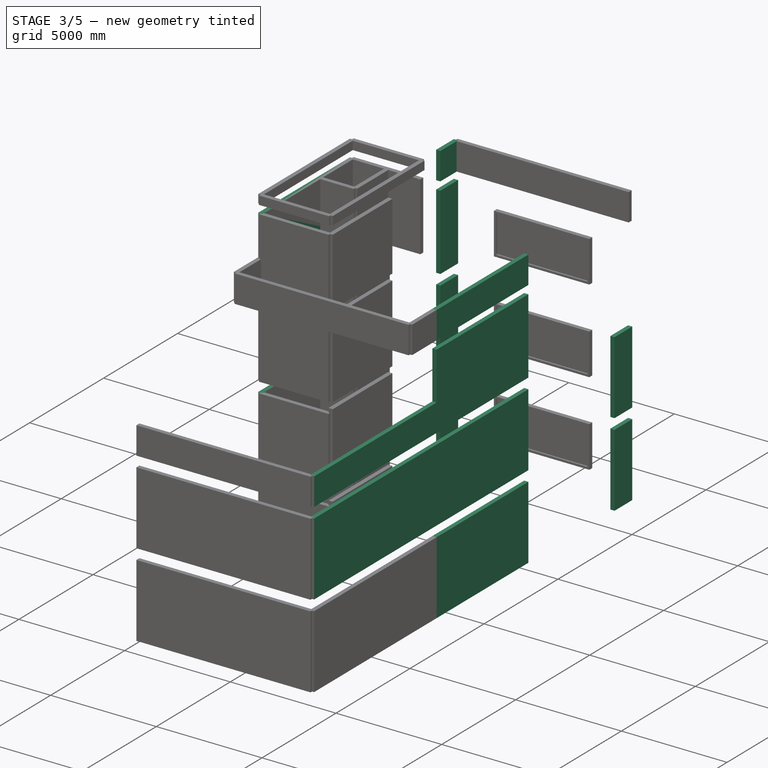
[diagram: stage 3 of 5 — iso view after this stage's code; geometry added in this stage tinted green]
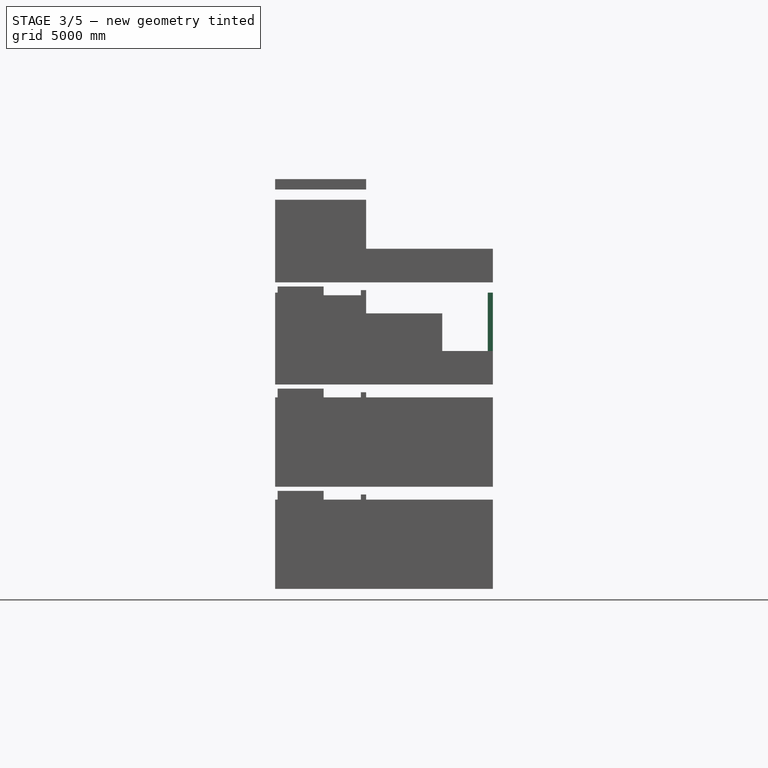
[diagram: stage 3 of 5 — front view after this stage's code; geometry added in this stage tinted green]
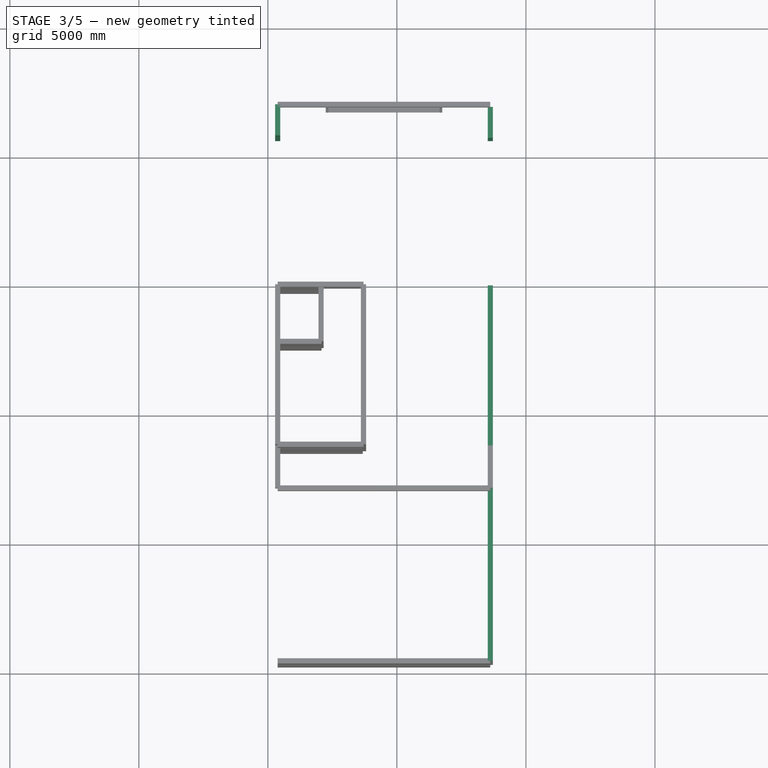
[diagram: stage 3 of 5 — top view after this stage's code; geometry added in this stage tinted green]
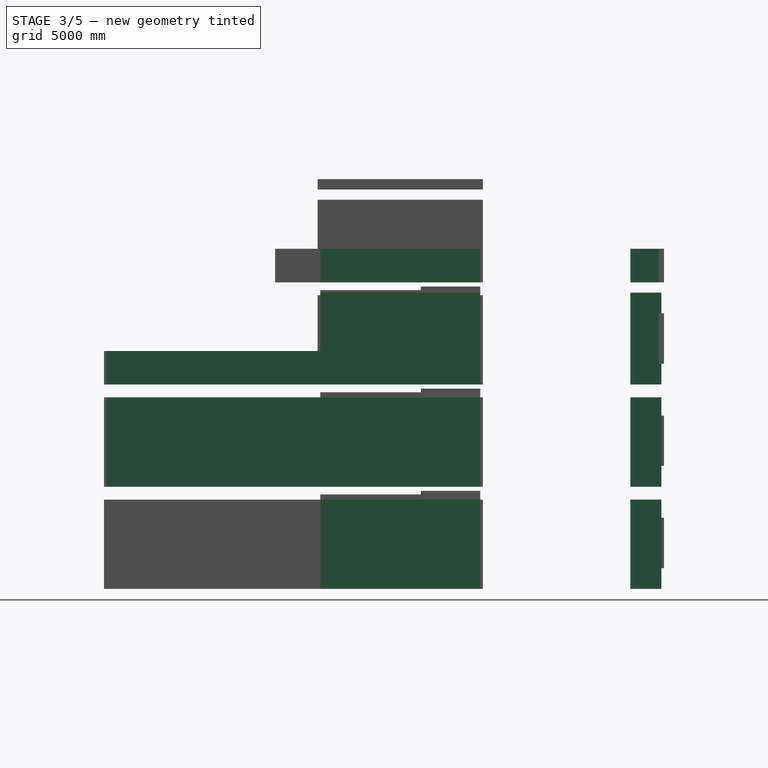
[diagram: stage 3 of 5 — right view after this stage's code; geometry added in this stage tinted green]
FEATURE [Part::Part2DObjectPython] Line037  label="B2_Story1_CenterLine"  # Draft 2D object (typed FeaturePython)
  Area = 0
  ChamferSize = 0
  Closed = false
  End = (380,14830,4450)
  FilletRadius = 0
  Length = 6200
  MakeFace = true
  Points = (2) [(380,8630,4450),(380,14830,4450)]
  Start = (380,8630,4450)
  Subdivisions = 0
FEATURE [Part::FeaturePython] Structure037  label="B2_Story1"  # Arch/BIM 7 (typed FeaturePython)
  AttacherType = Attacher::AttachEngine3D
  AttachmentOffset = pos=(0,-250,0) rot=(0,0,1;0rad)
  Base = -> B40H50
  BaseMirror = false
  BaseOffsetX = 0
  BaseOffsetY = 0
  BasePerpendicularToTool = false
  BaseRotation = 0
  ComputedLength = 6200
  FaceMaker = 0
  Height = 6200
  HorizontalArea = 2480000
  IfcData = attributes={"GlobalId": {"name": "GlobalId", "type": "IfcGloballyUniqueId", "is_enum": false, "enum_values": []}, "Description": {"... (+475 chars omitted),+1 more (map truncated)
  IfcType = 7
  Length = 0
  MapMode = 7
  MoveBase = false
  MoveWithHost = false
  Nodes = (2) [(380,8630,4450),(380,14830,4450)]
  NodesOffset = 0
  Normal = (0,0,0)
  PerimeterLength = 13200
  Placement = pos=(380,8630,4200) rot=(0,0.707107,0.707107;3.14159rad)
  PredefinedType = 0
  Support = -> [Line037]
  ToolOffsetFirst = 0
  ToolOffsetLast = 0
  VerticalArea = 6.6e+06
  Width = 100
FEATURE [Part::Part2DObjectPython] B30H40  # Draft 2D object (typed FeaturePython)
  Height = 400
  Width = 300
FEATURE [Part::Part2DObjectPython] Line038  label="B2_Ridge_CenterLine"  # Draft 2D object (typed FeaturePython)
  Area = 0
  ChamferSize = 0
  Closed = false
  End = (380,14830,19930)
  FilletRadius = 0
  Length = 6200
  MakeFace = true
  Points = (2) [(380,8630,19930),(380,14830,19930)]
  Start = (380,8630,19930)
  Subdivisions = 0
FEATURE [Part::FeaturePython] Structure038  label="B2_Ridge"  # Arch/BIM 7 (typed FeaturePython)
  AttacherType = Attacher::AttachEngine3D
  AttachmentOffset = pos=(0,-200,0) rot=(0,0,1;0rad)
  Base = -> B30H40
  BaseMirror = false
  BaseOffsetX = 0
  BaseOffsetY = 0
  BasePerpendicularToTool = false
  BaseRotation = 0
  ComputedLength = 6200
  FaceMaker = 0
  Height = 6200
  HorizontalArea = 1860000
  IfcData = attributes={"GlobalId": {"name": "GlobalId", "type": "IfcGloballyUniqueId", "is_enum": false, "enum_values": []}, "Description": {"... (+475 chars omitted),+1 more (map truncated)
  IfcType = 7
  Length = 0
  MapMode = 7
  MoveBase = false
  MoveWithHost = false
  Nodes = (2) [(380,8630,19930),(380,14830,19930)]
  NodesOffset = 0
  Normal = (0,0,0)
  PerimeterLength = 13000
  Placement = pos=(380,8630,19730) rot=(0,0.707107,0.707107;3.14159rad)
  PredefinedType = 0
  Support = -> [Line038]
  ToolOffsetFirst = 0
  ToolOffsetLast = 0
  VerticalArea = 5200000
  Width = 100
FEATURE [Part::Part2DObjectPython] B40H40  # Draft 2D object (typed FeaturePython)
  Height = 400
  Width = 400
FEATURE [Part::Part2DObjectPython] Line039  label="B2_Roof_CenterLine"  # Draft 2D object (typed FeaturePython)
  Area = 0
  ChamferSize = 0
  Closed = false
  End = (380,14830,16330)
  FilletRadius = 0
  Length = 6200
  MakeFace = true
  Points = (2) [(380,8630,16330),(380,14830,16330)]
  Start = (380,8630,16330)
  Subdivisions = 0
FEATURE [Part::FeaturePython] Structure039  label="B2_Roof"  # Arch/BIM 7 (typed FeaturePython)
  AttacherType = Attacher::AttachEngine3D
  AttachmentOffset = pos=(0,-200,0) rot=(0,0,1;0rad)
  Base = -> B40H40
  BaseMirror = false
  BaseOffsetX = 0
  BaseOffsetY = 0
  BasePerpendicularToTool = false
  BaseRotation = 0
  ComputedLength = 6200
  FaceMaker = 0
  Height = 6200
  HorizontalArea = 2480000
  IfcData = attributes={"GlobalId": {"name": "GlobalId", "type": "IfcGloballyUniqueId", "is_enum": false, "enum_values": []}, "Description": {"... (+475 chars omitted),+1 more (map truncated)
  IfcType = 7
  Length = 0
  MapMode = 7
  MoveBase = false
  MoveWithHost = false
  Nodes = (2) [(380,8630,16330),(380,14830,16330)]
  NodesOffset = 0
  Normal = (0,0,0)
  PerimeterLength = 13200
  Placement = pos=(380,8630,16130) rot=(0,0.707107,0.707107;3.14159rad)
  PredefinedType = 0
  Support = -> [Line039]
  ToolOffsetFirst = 0
  ToolOffsetLast = 0
  VerticalArea = 5280000
  Width = 100
FEATURE [Part::Part2DObjectPython] Line040  label="B2_Story3_CenterLine"  # Draft 2D object (typed FeaturePython)
  Area = 0
  ChamferSize = 0
  Closed = false
  End = (380,14830,12370)
  FilletRadius = 0
  Length = 6200
  MakeFace = true
  Points = (2) [(380,8630,12370),(380,14830,12370)]
  Start = (380,8630,12370)
  Subdivisions = 0
FEATURE [Part::FeaturePython] Structure040  label="B2_Story3"  # Arch/BIM 7 (typed FeaturePython)
  AttacherType = Attacher::AttachEngine3D
  AttachmentOffset = pos=(0,-250,0) rot=(0,0,1;0rad)
  Base = -> B40H50
  BaseMirror = false
  BaseOffsetX = 0
  BaseOffsetY = 0
  BasePerpendicularToTool = false
  BaseRotation = 0
  ComputedLength = 6200
  FaceMaker = 0
  Height = 6200
  HorizontalArea = 2480000
  IfcData = attributes={"GlobalId": {"name": "GlobalId", "type": "IfcGloballyUniqueId", "is_enum": false, "enum_values": []}, "Description": {"... (+475 chars omitted),+1 more (map truncated)
  IfcType = 7
  Length = 0
  MapMode = 7
  MoveBase = false
  MoveWithHost = false
  Nodes = (2) [(380,8630,12370),(380,14830,12370)]
  NodesOffset = 0
  Normal = (0,0,0)
  PerimeterLength = 13200
  Placement = pos=(380,8630,12120) rot=(0,0.707107,0.707107;3.14159rad)
  PredefinedType = 0
  Support = -> [Line040]
  ToolOffsetFirst = 0
  ToolOffsetLast = 0
  VerticalArea = 6.6e+06
  Width = 100
FEATURE [Part::Part2DObjectPython] Line041  label="B2_Story2_CenterLine"  # Draft 2D object (typed FeaturePython)
  Area = 0
  ChamferSize = 0
  Closed = false
  End = (380,14830,8410)
  FilletRadius = 0
  Length = 6200
  MakeFace = true
  Points = (2) [(380,8630,8410),(380,14830,8410)]
  Start = (380,8630,8410)
  Subdivisions = 0
FEATURE [Part::FeaturePython] Structure041  label="B2_Story2"  # Arch/BIM 7 (typed FeaturePython)
  AttacherType = Attacher::AttachEngine3D
  AttachmentOffset = pos=(0,-250,0) rot=(0,0,1;0rad)
  Base = -> B40H50
  BaseMirror = false
  BaseOffsetX = 0
  BaseOffsetY = 0
  BasePerpendicularToTool = false
  BaseRotation = 0
  ComputedLength = 6200
  FaceMaker = 0
  Height = 6200
  HorizontalArea = 2480000
  IfcData = attributes={"GlobalId": {"name": "GlobalId", "type": "IfcGloballyUniqueId", "is_enum": false, "enum_values": []}, "Description": {"... (+475 chars omitted),+1 more (map truncated)
  IfcType = 7
  Length = 0
  MapMode = 7
  MoveBase = false
  MoveWithHost = false
  Nodes = (2) [(380,8630,8410),(380,14830,8410)]
  NodesOffset = 0
  Normal = (0,0,0)
  PerimeterLength = 13200
  Placement = pos=(380,8630,8160) rot=(0,0.707107,0.707107;3.14159rad)
  PredefinedType = 0
  Support = -> [Line041]
  ToolOffsetFirst = 0
  ToolOffsetLast = 0
  VerticalArea = 6.6e+06
  Width = 100
FEATURE [Part::Part2DObjectPython] Line047  label="B4_Story3_CenterLine"  # Draft 2D object (typed FeaturePython)
  Area = 0
  ChamferSize = 0
  Closed = false
  End = (8620,8630,12370)
  FilletRadius = 0
  Length = 8280
  MakeFace = true
  Points = (2) [(8620,350,12370),(8620,8630,12370)]
  Start = (8620,350,12370)
  Subdivisions = 0
FEATURE [Part::FeaturePython] Structure047  label="B4_Story3"  # Arch/BIM 7 (typed FeaturePython)
  AttacherType = Attacher::AttachEngine3D
  AttachmentOffset = pos=(0,-250,0) rot=(0,0,1;0rad)
  Base = -> B40H50
  BaseMirror = false
  BaseOffsetX = 0
  BaseOffsetY = 0
  BasePerpendicularToTool = false
  BaseRotation = 0
  ComputedLength = 8280
  FaceMaker = 0
  Height = 8280
  HorizontalArea = 3312000
  IfcData = attributes={"GlobalId": {"name": "GlobalId", "type": "IfcGloballyUniqueId", "is_enum": false, "enum_values": []}, "Description": {"... (+475 chars omitted),+1 more (map truncated)
  IfcType = 7
  Length = 0
  MapMode = 7
  MoveBase = false
  MoveWithHost = false
  Nodes = (2) [(8620,350,12370),(8620,8630,12370)]
  NodesOffset = 0
  Normal = (0,0,0)
  PerimeterLength = 17360
  Placement = pos=(8620,350,12120) rot=(0,0.707107,0.707107;3.14159rad)
  PredefinedType = 0
  Support = -> [Line047]
  ToolOffsetFirst = 0
  ToolOffsetLast = 0
  VerticalArea = 8.68e+06
  Width = 100
FEATURE [Part::Part2DObjectPython] Line049  label="B5_Story1_CenterLine"  # Draft 2D object (typed FeaturePython)
  Area = 0
  ChamferSize = 0
  Closed = false
  End = (8620,14830,4450)
  FilletRadius = 0
  Length = 6200
  MakeFace = true
  Points = (2) [(8620,8630,4450),(8620,14830,4450)]
  Start = (8620,8630,4450)
  Subdivisions = 0
FEATURE [Part::FeaturePython] Structure049  label="B5_Story1"  # Arch/BIM 7 (typed FeaturePython)
  AttacherType = Attacher::AttachEngine3D
  AttachmentOffset = pos=(0,-250,0) rot=(0,0,1;0rad)
  Base = -> B40H50
  BaseMirror = false
  BaseOffsetX = 0
  BaseOffsetY = 0
  BasePerpendicularToTool = false
  BaseRotation = 0
  ComputedLength = 6200
  FaceMaker = 0
  Height = 6200
  HorizontalArea = 2480000
  IfcData = attributes={"GlobalId": {"name": "GlobalId", "type": "IfcGloballyUniqueId", "is_enum": false, "enum_values": []}, "Description": {"... (+475 chars omitted),+1 more (map truncated)
  IfcType = 7
  Length = 0
  MapMode = 7
  MoveBase = false
  MoveWithHost = false
  Nodes = (2) [(8620,8630,4450),(8620,14830,4450)]
  NodesOffset = 0
  Normal = (0,0,0)
  PerimeterLength = 13200
  Placement = pos=(8620,8630,4200) rot=(0,0.707107,0.707107;3.14159rad)
  PredefinedType = 0
  Support = -> [Line049]
  ToolOffsetFirst = 0
  ToolOffsetLast = 0
  VerticalArea = 6.6e+06
  Width = 100
FEATURE [Part::Part2DObjectPython] Line051  label="B5_Roof_CenterLine"  # Draft 2D object (typed FeaturePython)
  Area = 0
  ChamferSize = 0
  Closed = false
  End = (8620,14830,16330)
  FilletRadius = 0
  Length = 6200
  MakeFace = true
  Points = (2) [(8620,8630,16330),(8620,14830,16330)]
  Start = (8620,8630,16330)
  Subdivisions = 0
FEATURE [Part::FeaturePython] Structure051  label="B5_Roof"  # Arch/BIM 7 (typed FeaturePython)
  AttacherType = Attacher::AttachEngine3D
  AttachmentOffset = pos=(0,-200,0) rot=(0,0,1;0rad)
  Base = -> B40H40
  BaseMirror = false
  BaseOffsetX = 0
  BaseOffsetY = 0
  BasePerpendicularToTool = false
  BaseRotation = 0
  ComputedLength = 6200
  FaceMaker = 0
  Height = 6200
  HorizontalArea = 2480000
  IfcData = attributes={"GlobalId": {"name": "GlobalId", "type": "IfcGloballyUniqueId", "is_enum": false, "enum_values": []}, "Description": {"... (+475 chars omitted),+1 more (map truncated)
  IfcType = 7
  Length = 0
  MapMode = 7
  MoveBase = false
  MoveWithHost = false
  Nodes = (2) [(8620,8630,16330),(8620,14830,16330)]
  NodesOffset = 0
  Normal = (0,0,0)
  PerimeterLength = 13200
  Placement = pos=(8620,8630,16130) rot=(0,0.707107,0.707107;3.14159rad)
  PredefinedType = 0
  Support = -> [Line051]
  ToolOffsetFirst = 0
  ToolOffsetLast = 0
  VerticalArea = 5280000
  Width = 100
FEATURE [Part::Part2DObjectPython] Line052  label="B5_Story3_CenterLine"  # Draft 2D object (typed FeaturePython)
  Area = 0
  ChamferSize = 0
  Closed = false
  End = (8620,14830,12370)
  FilletRadius = 0
  Length = 6200
  MakeFace = true
  Points = (2) [(8620,8630,12370),(8620,14830,12370)]
  Start = (8620,8630,12370)
  Subdivisions = 0
FEATURE [Part::FeaturePython] Structure052  label="B5_Story3"  # Arch/BIM 7 (typed FeaturePython)
  AttacherType = Attacher::AttachEngine3D
  AttachmentOffset = pos=(0,-250,0) rot=(0,0,1;0rad)
  Base = -> B40H50
  BaseMirror = false
  BaseOffsetX = 0
  BaseOffsetY = 0
  BasePerpendicularToTool = false
  BaseRotation = 0
  ComputedLength = 6200
  FaceMaker = 0
  Height = 6200
  HorizontalArea = 2480000
  IfcData = attributes={"GlobalId": {"name": "GlobalId", "type": "IfcGloballyUniqueId", "is_enum": false, "enum_values": []}, "Description": {"... (+475 chars omitted),+1 more (map truncated)
  IfcType = 7
  Length = 0
  MapMode = 7
  MoveBase = false
  MoveWithHost = false
  Nodes = (2) [(8620,8630,12370),(8620,14830,12370)]
  NodesOffset = 0
  Normal = (0,0,0)
  PerimeterLength = 13200
  Placement = pos=(8620,8630,12120) rot=(0,0.707107,0.707107;3.14159rad)
  PredefinedType = 0
  Support = -> [Line052]
  ToolOffsetFirst = 0
  ToolOffsetLast = 0
  VerticalArea = 6.6e+06
  Width = 100
FEATURE [Part::Part2DObjectPython] Line053  label="B5_Story2_CenterLine"  # Draft 2D object (typed FeaturePython)
  Area = 0
  ChamferSize = 0
  Closed = false
  End = (8620,14830,8410)
  FilletRadius = 0
  Length = 6200
  MakeFace = true
  Points = (2) [(8620,8630,8410),(8620,14830,8410)]
  Start = (8620,8630,8410)
  Subdivisions = 0
FEATURE [Part::FeaturePython] Structure053  label="B5_Story2"  # Arch/BIM 7 (typed FeaturePython)
  AttacherType = Attacher::AttachEngine3D
  AttachmentOffset = pos=(0,-250,0) rot=(0,0,1;0rad)
  Base = -> B40H50
  BaseMirror = false
  BaseOffsetX = 0
  BaseOffsetY = 0
  BasePerpendicularToTool = false
  BaseRotation = 0
  ComputedLength = 6200
  FaceMaker = 0
  Height = 6200
  HorizontalArea = 2480000
  IfcData = attributes={"GlobalId": {"name": "GlobalId", "type": "IfcGloballyUniqueId", "is_enum": false, "enum_values": []}, "Description": {"... (+475 chars omitted),+1 more (map truncated)
  IfcType = 7
  Length = 0
  MapMode = 7
  MoveBase = false
  MoveWithHost = false
  Nodes = (2) [(8620,8630,8410),(8620,14830,8410)]
  NodesOffset = 0
  Normal = (0,0,0)
  PerimeterLength = 13200
  Placement = pos=(8620,8630,8160) rot=(0,0.707107,0.707107;3.14159rad)
  PredefinedType = 0
  Support = -> [Line053]
  ToolOffsetFirst = 0
  ToolOffsetLast = 0
  VerticalArea = 6.6e+06
  Width = 100
FEATURE [Part::Part2DObjectPython] Line079  label="B13_Story1_CenterLine"  # Draft 2D object (typed FeaturePython)
  Area = 0
  ChamferSize = 0
  Closed = false
  End = (8620,21850,4450)
  FilletRadius = 0
  Length = 1200
  MakeFace = true
  Points = (2) [(8620,20650,4450),(8620,21850,4450)]
  Start = (8620,20650,4450)
  Subdivisions = 0
FEATURE [Part::FeaturePython] Structure079  label="B13_Story1"  # Arch/BIM 7 (typed FeaturePython)
  AttacherType = Attacher::AttachEngine3D
  AttachmentOffset = pos=(0,-250,0) rot=(0,0,1;0rad)
  Base = -> B40H50
  BaseMirror = false
  BaseOffsetX = 0
  BaseOffsetY = 0
  BasePerpendicularToTool = false
  BaseRotation = 0
  ComputedLength = 1200
  FaceMaker = 0
  Height = 1200
  HorizontalArea = 480000
  IfcData = attributes={"GlobalId": {"name": "GlobalId", "type": "IfcGloballyUniqueId", "is_enum": false, "enum_values": []}, "Description": {"... (+475 chars omitted),+1 more (map truncated)
  IfcType = 7
  Length = 0
  MapMode = 7
  MoveBase = false
  MoveWithHost = false
  Nodes = (2) [(8620,20650,4450),(8620,21850,4450)]
  NodesOffset = 0
  Normal = (0,0,0)
  PerimeterLength = 3200
  Placement = pos=(8620,20650,4200) rot=(0,0.707107,0.707107;3.14159rad)
  PredefinedType = 0
  Support = -> [Line079]
  ToolOffsetFirst = 0
  ToolOffsetLast = 0
  VerticalArea = 1.6e+06
  Width = 100
FEATURE [Part::Part2DObjectPython] Line081  label="B13_Story3_CenterLine"  # Draft 2D object (typed FeaturePython)
  Area = 0
  ChamferSize = 0
  Closed = false
  End = (8620,21850,12370)
  FilletRadius = 0
  Length = 1200
  MakeFace = true
  Points = (2) [(8620,20650,12370),(8620,21850,12370)]
  Start = (8620,20650,12370)
  Subdivisions = 0
FEATURE [Part::FeaturePython] Structure081  label="B13_Story3"  # Arch/BIM 7 (typed FeaturePython)
  AttacherType = Attacher::AttachEngine3D
  AttachmentOffset = pos=(0,-250,0) rot=(0,0,1;0rad)
  Base = -> B40H50
  BaseMirror = false
  BaseOffsetX = 0
  BaseOffsetY = 0
  BasePerpendicularToTool = false
  BaseRotation = 0
  ComputedLength = 1200
  FaceMaker = 0
  Height = 1200
  HorizontalArea = 480000
  IfcData = attributes={"GlobalId": {"name": "GlobalId", "type": "IfcGloballyUniqueId", "is_enum": false, "enum_values": []}, "Description": {"... (+475 chars omitted),+1 more (map truncated)
  IfcType = 7
  Length = 0
  MapMode = 7
  MoveBase = false
  MoveWithHost = false
  Nodes = (2) [(8620,20650,12370),(8620,21850,12370)]
  NodesOffset = 0
  Normal = (0,0,0)
  PerimeterLength = 3200
  Placement = pos=(8620,20650,12120) rot=(0,0.707107,0.707107;3.14159rad)
  PredefinedType = 0
  Support = -> [Line081]
  ToolOffsetFirst = 0
  ToolOffsetLast = 0
  VerticalArea = 1.6e+06
  Width = 100
FEATURE [Part::Part2DObjectPython] Line082  label="B13_Story2_CenterLine"  # Draft 2D object (typed FeaturePython)
  Area = 0
  ChamferSize = 0
  Closed = false
  End = (8620,21850,8410)
  FilletRadius = 0
  Length = 1200
  MakeFace = true
  Points = (2) [(8620,20650,8410),(8620,21850,8410)]
  Start = (8620,20650,8410)
  Subdivisions = 0
FEATURE [Part::FeaturePython] Structure082  label="B13_Story2"  # Arch/BIM 7 (typed FeaturePython)
  AttacherType = Attacher::AttachEngine3D
  AttachmentOffset = pos=(0,-250,0) rot=(0,0,1;0rad)
  Base = -> B40H50
  BaseMirror = false
  BaseOffsetX = 0
  BaseOffsetY = 0
  BasePerpendicularToTool = false
  BaseRotation = 0
  ComputedLength = 1200
  FaceMaker = 0
  Height = 1200
  HorizontalArea = 480000
  IfcData = attributes={"GlobalId": {"name": "GlobalId", "type": "IfcGloballyUniqueId", "is_enum": false, "enum_values": []}, "Description": {"... (+475 chars omitted),+1 more (map truncated)
  IfcType = 7
  Length = 0
  MapMode = 7
  MoveBase = false
  MoveWithHost = false
  Nodes = (2) [(8620,20650,8410),(8620,21850,8410)]
  NodesOffset = 0
  Normal = (0,0,0)
  PerimeterLength = 3200
  Placement = pos=(8620,20650,8160) rot=(0,0.707107,0.707107;3.14159rad)
  PredefinedType = 0
  Support = -> [Line082]
  ToolOffsetFirst = 0
  ToolOffsetLast = 0
  VerticalArea = 1.6e+06
  Width = 100
FEATURE [Part::Part2DObjectPython] Line083  label="B11_Story1_CenterLine"  # Draft 2D object (typed FeaturePython)
  Area = 0
  ChamferSize = 0
  Closed = false
  End = (380,21850,4450)
  FilletRadius = 0
  Length = 1200
  MakeFace = true
  Points = (2) [(380,20650,4450),(380,21850,4450)]
  Start = (380,20650,4450)
  Subdivisions = 0
FEATURE [Part::FeaturePython] Structure083  label="B11_Story1"  # Arch/BIM 7 (typed FeaturePython)
  AttacherType = Attacher::AttachEngine3D
  AttachmentOffset = pos=(0,-250,0) rot=(0,0,1;0rad)
  Base = -> B40H50
  BaseMirror = false
  BaseOffsetX = 0
  BaseOffsetY = 0
  BasePerpendicularToTool = false
  BaseRotation = 0
  ComputedLength = 1200
  FaceMaker = 0
  Height = 1200
  HorizontalArea = 480000
  IfcData = attributes={"GlobalId": {"name": "GlobalId", "type": "IfcGloballyUniqueId", "is_enum": false, "enum_values": []}, "Description": {"... (+475 chars omitted),+1 more (map truncated)
  IfcType = 7
  Length = 0
  MapMode = 7
  MoveBase = false
  MoveWithHost = false
  Nodes = (2) [(380,20650,4450),(380,21850,4450)]
  NodesOffset = 0
  Normal = (0,0,0)
  PerimeterLength = 3200
  Placement = pos=(380,20650,4200) rot=(0,0.707107,0.707107;3.14159rad)
  PredefinedType = 0
  Support = -> [Line083]
  ToolOffsetFirst = 0
  ToolOffsetLast = 0
  VerticalArea = 1.6e+06
  Width = 100
FEATURE [Part::Part2DObjectPython] Line084  label="B11_Roof_CenterLine"  # Draft 2D object (typed FeaturePython)
  Area = 0
  ChamferSize = 0
  Closed = false
  End = (380,21850,16330)
  FilletRadius = 0
  Length = 1200
  MakeFace = true
  Points = (2) [(380,20650,16330),(380,21850,16330)]
  Start = (380,20650,16330)
  Subdivisions = 0
FEATURE [Part::FeaturePython] Structure084  label="B11_Roof"  # Arch/BIM 7 (typed FeaturePython)
  AttacherType = Attacher::AttachEngine3D
  AttachmentOffset = pos=(0,-200,0) rot=(0,0,1;0rad)
  Base = -> B40H40
  BaseMirror = false
  BaseOffsetX = 0
  BaseOffsetY = 0
  BasePerpendicularToTool = false
  BaseRotation = 0
  ComputedLength = 1200
  FaceMaker = 0
  Height = 1200
  HorizontalArea = 480000
  IfcData = attributes={"GlobalId": {"name": "GlobalId", "type": "IfcGloballyUniqueId", "is_enum": false, "enum_values": []}, "Description": {"... (+475 chars omitted),+1 more (map truncated)
  IfcType = 7
  Length = 0
  MapMode = 7
  MoveBase = false
  MoveWithHost = false
  Nodes = (2) [(380,20650,16330),(380,21850,16330)]
  NodesOffset = 0
  Normal = (0,0,0)
  PerimeterLength = 3200
  Placement = pos=(380,20650,16130) rot=(0,0.707107,0.707107;3.14159rad)
  PredefinedType = 0
  Support = -> [Line084]
  ToolOffsetFirst = 0
  ToolOffsetLast = 0
  VerticalArea = 1.28e+06
  Width = 100
FEATURE [Part::Part2DObjectPython] Line085  label="B11_Story3_CenterLine"  # Draft 2D object (typed FeaturePython)
  Area = 0
  ChamferSize = 0
  Closed = false
  End = (380,21850,12370)
  FilletRadius = 0
  Length = 1200
  MakeFace = true
  Points = (2) [(380,20650,12370),(380,21850,12370)]
  Start = (380,20650,12370)
  Subdivisions = 0
FEATURE [Part::FeaturePython] Structure085  label="B11_Story3"  # Arch/BIM 7 (typed FeaturePython)
  AttacherType = Attacher::AttachEngine3D
  AttachmentOffset = pos=(0,-250,0) rot=(0,0,1;0rad)
  Base = -> B40H50
  BaseMirror = false
  BaseOffsetX = 0
  BaseOffsetY = 0
  BasePerpendicularToTool = false
  BaseRotation = 0
  ComputedLength = 1200
  FaceMaker = 0
  Height = 1200
  HorizontalArea = 480000
  IfcData = attributes={"GlobalId": {"name": "GlobalId", "type": "IfcGloballyUniqueId", "is_enum": false, "enum_values": []}, "Description": {"... (+475 chars omitted),+1 more (map truncated)
  IfcType = 7
  Length = 0
  MapMode = 7
  MoveBase = false
  MoveWithHost = false
  Nodes = (2) [(380,20650,12370),(380,21850,12370)]
  NodesOffset = 0
  Normal = (0,0,0)
  PerimeterLength = 3200
  Placement = pos=(380,20650,12120) rot=(0,0.707107,0.707107;3.14159rad)
  PredefinedType = 0
  Support = -> [Line085]
  ToolOffsetFirst = 0
  ToolOffsetLast = 0
  VerticalArea = 1.6e+06
  Width = 100
FEATURE [Part::Part2DObjectPython] Line086  label="B11_Story2_CenterLine"  # Draft 2D object (typed FeaturePython)
  Area = 0
  ChamferSize = 0
  Closed = false
  End = (380,21850,8410)
  FilletRadius = 0
  Length = 1200
  MakeFace = true
  Points = (2) [(380,20650,8410),(380,21850,8410)]
  Start = (380,20650,8410)
  Subdivisions = 0
FEATURE [Part::FeaturePython] Structure086  label="B11_Story2"  # Arch/BIM 7 (typed FeaturePython)
  AttacherType = Attacher::AttachEngine3D
  AttachmentOffset = pos=(0,-250,0) rot=(0,0,1;0rad)
  Base = -> B40H50
  BaseMirror = false
  BaseOffsetX = 0
  BaseOffsetY = 0
  BasePerpendicularToTool = false
  BaseRotation = 0
  ComputedLength = 1200
  FaceMaker = 0
  Height = 1200
  HorizontalArea = 480000
  IfcData = attributes={"GlobalId": {"name": "GlobalId", "type": "IfcGloballyUniqueId", "is_enum": false, "enum_values": []}, "Description": {"... (+475 chars omitted),+1 more (map truncated)
  IfcType = 7
  Length = 0
  MapMode = 7
  MoveBase = false
  MoveWithHost = false
  Nodes = (2) [(380,20650,8410),(380,21850,8410)]
  NodesOffset = 0
  Normal = (0,0,0)
  PerimeterLength = 3200
  Placement = pos=(380,20650,8160) rot=(0,0.707107,0.707107;3.14159rad)
  PredefinedType = 0
  Support = -> [Line086]
  ToolOffsetFirst = 0
  ToolOffsetLast = 0
  VerticalArea = 1.6e+06
  Width = 100
FEATURE [Sketcher::SketchObject] WallTrace043  label="B13_Story2_CenterLine_walltrace"
  FullyConstrained = false
  Placement = pos=(0,0,8410) rot=(0,0,1;0rad)
  sketch-geometry (1):
    g0: LineSegment StartX=8620 StartY=20650 StartZ=0 EndX=8620 EndY=21850 EndZ=0
FEATURE [Part::FeaturePython] Wall043  # Arch/BIM 166 (typed FeaturePython)
  Align = 2
  Area = 4.152e+06
  Base = -> WallTrace043
  BlockHeight = 0
  BlockLength = 0
  CountBroken = 0
  CountEntire = 0
  Face = 0
  Height = 3460
  HorizontalArea = 240000
  IfcData = attributes={"GlobalId": {"name": "GlobalId", "type": "IfcGloballyUniqueId", "is_enum": false, "enum_values": []}, "Description": {"... (+533 chars omitted),+1 more (map truncated)
  IfcType = 166
  Joint = 0
  Length = 1200
  MakeBlocks = false
  MoveBase = false
  MoveWithHost = false
  Normal = (0,0,0)
  OffsetFirst = 0
  OffsetSecond = 0
  PerimeterLength = 2800
  PredefinedType = 0
  VerticalArea = 9.688e+06
  Width = 200
  base = -> Line082
  loadpat = SD
  weight = 220
  expr: Height = Structure081.Shape.BoundBox.ZMin - Structure082.Shape.BoundBox.ZMax
FEATURE [Sketcher::SketchObject] WallTrace044  label="B13_Story1_CenterLine_walltrace"
  FullyConstrained = false
  Placement = pos=(0,0,4450) rot=(0,0,1;0rad)
  sketch-geometry (1):
    g0: LineSegment StartX=8620 StartY=20650 StartZ=0 EndX=8620 EndY=21850 EndZ=0
FEATURE [Part::FeaturePython] Wall044  # Arch/BIM 166 (typed FeaturePython)
  Align = 2
  Area = 4.152e+06
  Base = -> WallTrace044
  BlockHeight = 0
  BlockLength = 0
  CountBroken = 0
  CountEntire = 0
  Face = 0
  Height = 3460
  HorizontalArea = 240000
  IfcData = attributes={"GlobalId": {"name": "GlobalId", "type": "IfcGloballyUniqueId", "is_enum": false, "enum_values": []}, "Description": {"... (+533 chars omitted),+1 more (map truncated)
  IfcType = 166
  Joint = 0
  Length = 1200
  MakeBlocks = false
  MoveBase = false
  MoveWithHost = false
  Normal = (0,0,0)
  OffsetFirst = 0
  OffsetSecond = 0
  PerimeterLength = 2800
  PredefinedType = 0
  VerticalArea = 9.688e+06
  Width = 200
  base = -> Line079
  loadpat = SD
  weight = 220
  expr: Height = Structure082.Shape.BoundBox.ZMin - Structure079.Shape.BoundBox.ZMax
FEATURE [Sketcher::SketchObject] WallTrace046  label="B2_Roof_CenterLine_walltrace"
  FullyConstrained = false
  Placement = pos=(0,0,16330) rot=(0,0,1;0rad)
  sketch-geometry (1):
    g0: LineSegment StartX=380 StartY=8630 StartZ=0 EndX=380 EndY=14830 EndZ=0
FEATURE [Part::FeaturePython] Wall046  # Arch/BIM 166 (typed FeaturePython)
  Align = 2
  Area = 1.984e+07
  Base = -> WallTrace046
  BlockHeight = 0
  BlockLength = 0
  CountBroken = 0
  CountEntire = 0
  Face = 0
  Height = 3200
  HorizontalArea = 1240000
  IfcData = attributes={"GlobalId": {"name": "GlobalId", "type": "IfcGloballyUniqueId", "is_enum": false, "enum_values": []}, "Description": {"... (+533 chars omitted),+1 more (map truncated)
  IfcType = 166
  Joint = 0
  Length = 6200
  MakeBlocks = false
  MoveBase = false
  MoveWithHost = false
  Normal = (0,0,0)
  OffsetFirst = 0
  OffsetSecond = 0
  PerimeterLength = 12800
  PredefinedType = 0
  VerticalArea = 4.096e+07
  Width = 200
  base = -> Line039
  loadpat = SD
  weight = 220
  expr: Height = Structure038.Shape.BoundBox.ZMin - Structure039.Shape.BoundBox.ZMax
FEATURE [Sketcher::SketchObject] WallTrace047  label="B2_Story3_CenterLine_walltrace"
  FullyConstrained = false
  Placement = pos=(0,0,12370) rot=(0,0,1;0rad)
  sketch-geometry (1):
    g0: LineSegment StartX=380 StartY=8630 StartZ=0 EndX=380 EndY=14830 EndZ=0
FEATURE [Part::FeaturePython] Wall047  # Arch/BIM 166 (typed FeaturePython)
  Align = 2
  Area = 2.2072e+07
  Base = -> WallTrace047
  BlockHeight = 0
  BlockLength = 0
  CountBroken = 0
  CountEntire = 0
  Face = 0
  Height = 3560
  HorizontalArea = 1240000
  IfcData = attributes={"GlobalId": {"name": "GlobalId", "type": "IfcGloballyUniqueId", "is_enum": false, "enum_values": []}, "Description": {"... (+533 chars omitted),+1 more (map truncated)
  IfcType = 166
  Joint = 0
  Length = 6200
  MakeBlocks = false
  MoveBase = false
  MoveWithHost = false
  Normal = (0,0,0)
  OffsetFirst = 0
  OffsetSecond = 0
  PerimeterLength = 12800
  PredefinedType = 0
  VerticalArea = 4.5568e+07
  Width = 200
  base = -> Line040
  loadpat = SD
  weight = 220
  expr: Height = Structure039.Shape.BoundBox.ZMin - Structure040.Shape.BoundBox.ZMax
FEATURE [Sketcher::SketchObject] WallTrace048  label="B2_Story2_CenterLine_walltrace"
  FullyConstrained = false
  Placement = pos=(0,0,8410) rot=(0,0,1;0rad)
  sketch-geometry (1):
    g0: LineSegment StartX=380 StartY=8630 StartZ=0 EndX=380 EndY=14830 EndZ=0
FEATURE [Part::FeaturePython] Wall048  # Arch/BIM 166 (typed FeaturePython)
  Align = 2
  Area = 21452000
  Base = -> WallTrace048
  BlockHeight = 0
  BlockLength = 0
  CountBroken = 0
  CountEntire = 0
  Face = 0
  Height = 3460
  HorizontalArea = 1240000
  IfcData = attributes={"GlobalId": {"name": "GlobalId", "type": "IfcGloballyUniqueId", "is_enum": false, "enum_values": []}, "Description": {"... (+533 chars omitted),+1 more (map truncated)
  IfcType = 166
  Joint = 0
  Length = 6200
  MakeBlocks = false
  MoveBase = false
  MoveWithHost = false
  Normal = (0,0,0)
  OffsetFirst = 0
  OffsetSecond = 0
  PerimeterLength = 12800
  PredefinedType = 0
  VerticalArea = 4.4288e+07
  Width = 200
  base = -> Line041
  loadpat = SD
  weight = 220
  expr: Height = Structure040.Shape.BoundBox.ZMin - Structure041.Shape.BoundBox.ZMax
FEATURE [Sketcher::SketchObject] WallTrace049  label="B2_Story1_CenterLine_walltrace"
  FullyConstrained = false
  Placement = pos=(0,0,4450) rot=(0,0,1;0rad)
  sketch-geometry (1):
    g0: LineSegment StartX=380 StartY=8630 StartZ=0 EndX=380 EndY=14830 EndZ=0
FEATURE [Part::FeaturePython] Wall049  # Arch/BIM 166 (typed FeaturePython)
  Align = 2
  Area = 2.1452e+07
  Base = -> WallTrace049
  BlockHeight = 0
  BlockLength = 0
  CountBroken = 0
  CountEntire = 0
  Face = 0
  Height = 3460
  HorizontalArea = 1240000
  IfcData = attributes={"GlobalId": {"name": "GlobalId", "type": "IfcGloballyUniqueId", "is_enum": false, "enum_values": []}, "Description": {"... (+533 chars omitted),+1 more (map truncated)
  IfcType = 166
  Joint = 0
  Length = 6200
  MakeBlocks = false
  MoveBase = false
  MoveWithHost = false
  Normal = (0,0,0)
  OffsetFirst = 0
  OffsetSecond = 0
  PerimeterLength = 12800
  PredefinedType = 0
  VerticalArea = 4.4288e+07
  Width = 200
  base = -> Line037
  loadpat = SD
  weight = 220
  expr: Height = Structure041.Shape.BoundBox.ZMin - Structure037.Shape.BoundBox.ZMax
FEATURE [Sketcher::SketchObject] WallTrace050  label="B5_Roof_CenterLine_walltrace"
  FullyConstrained = false
  Placement = pos=(0,0,16330) rot=(0,0,1;0rad)
  sketch-geometry (1):
    g0: LineSegment StartX=8620 StartY=8630 StartZ=0 EndX=8620 EndY=14830 EndZ=0
FEATURE [Part::FeaturePython] Wall050  # Arch/BIM 166 (typed FeaturePython)
  Align = 2
  Area = 8.06e+06
  Base = -> WallTrace050
  BlockHeight = 0
  BlockLength = 0
  CountBroken = 0
  CountEntire = 0
  Face = 0
  Height = 1300
  HorizontalArea = 1240000
  IfcData = attributes={"GlobalId": {"name": "GlobalId", "type": "IfcGloballyUniqueId", "is_enum": false, "enum_values": []}, "Description": {"... (+533 chars omitted),+1 more (map truncated)
  IfcType = 166
  Joint = 0
  Length = 6200
  MakeBlocks = false
  MoveBase = false
  MoveWithHost = false
  Normal = (0,0,0)
  OffsetFirst = 0
  OffsetSecond = 0
  PerimeterLength = 12800
  PredefinedType = 0
  VerticalArea = 1.664e+07
  Width = 200
  base = -> Line051
  loadpat = SD
  weight = 220
FEATURE [Sketcher::SketchObject] WallTrace051  label="B5_Story3_CenterLine_walltrace"
  FullyConstrained = false
  Placement = pos=(0,0,12370) rot=(0,0,1;0rad)
  sketch-geometry (1):
    g0: LineSegment StartX=8620 StartY=8630 StartZ=0 EndX=8620 EndY=14830 EndZ=0
FEATURE [Part::FeaturePython] Wall051  # Arch/BIM 166 (typed FeaturePython)
  Align = 2
  Area = 2.2072e+07
  Base = -> WallTrace051
  BlockHeight = 0
  BlockLength = 0
  CountBroken = 0
  CountEntire = 0
  Face = 0
  Height = 3560
  HorizontalArea = 1240000
  IfcData = attributes={"GlobalId": {"name": "GlobalId", "type": "IfcGloballyUniqueId", "is_enum": false, "enum_values": []}, "Description": {"... (+533 chars omitted),+1 more (map truncated)
  IfcType = 166
  Joint = 0
  Length = 6200
  MakeBlocks = false
  MoveBase = false
  MoveWithHost = false
  Normal = (0,0,0)
  OffsetFirst = 0
  OffsetSecond = 0
  PerimeterLength = 12800
  PredefinedType = 0
  VerticalArea = 4.5568e+07
  Width = 200
  base = -> Line052
  loadpat = SD
  weight = 220
  expr: Height = Structure051.Shape.BoundBox.ZMin - Structure052.Shape.BoundBox.ZMax
FEATURE [Sketcher::SketchObject] WallTrace052  label="B5_Story2_CenterLine_walltrace"
  FullyConstrained = false
  Placement = pos=(0,0,8410) rot=(0,0,1;0rad)
  sketch-geometry (1):
    g0: LineSegment StartX=8620 StartY=8630 StartZ=0 EndX=8620 EndY=14830 EndZ=0
FEATURE [Part::FeaturePython] Wall052  # Arch/BIM 166 (typed FeaturePython)
  Align = 2
  Area = 21452000
  Base = -> WallTrace052
  BlockHeight = 0
  BlockLength = 0
  CountBroken = 0
  CountEntire = 0
  Face = 0
  Height = 3460
  HorizontalArea = 1240000
  IfcData = attributes={"GlobalId": {"name": "GlobalId", "type": "IfcGloballyUniqueId", "is_enum": false, "enum_values": []}, "Description": {"... (+533 chars omitted),+1 more (map truncated)
  IfcType = 166
  Joint = 0
  Length = 6200
  MakeBlocks = false
  MoveBase = false
  MoveWithHost = false
  Normal = (0,0,0)
  OffsetFirst = 0
  OffsetSecond = 0
  PerimeterLength = 12800
  PredefinedType = 0
  VerticalArea = 4.4288e+07
  Width = 200
  base = -> Line053
  loadpat = SD
  weight = 220
  expr: Height = Structure052.Shape.BoundBox.ZMin - Structure053.Shape.BoundBox.ZMax
FEATURE [Sketcher::SketchObject] WallTrace053  label="B5_Story1_CenterLine_walltrace"
  FullyConstrained = false
  Placement = pos=(0,0,4450) rot=(0,0,1;0rad)
  sketch-geometry (1):
    g0: LineSegment StartX=8620 StartY=8630 StartZ=0 EndX=8620 EndY=14830 EndZ=0
FEATURE [Part::FeaturePython] Wall053  # Arch/BIM 166 (typed FeaturePython)
  Align = 2
  Area = 2.1452e+07
  Base = -> WallTrace053
  BlockHeight = 0
  BlockLength = 0
  CountBroken = 0
  CountEntire = 0
  Face = 0
  Height = 3460
  HorizontalArea = 1240000
  IfcData = attributes={"GlobalId": {"name": "GlobalId", "type": "IfcGloballyUniqueId", "is_enum": false, "enum_values": []}, "Description": {"... (+533 chars omitted),+1 more (map truncated)
  IfcType = 166
  Joint = 0
  Length = 6200
  MakeBlocks = false
  MoveBase = false
  MoveWithHost = false
  Normal = (0,0,0)
  OffsetFirst = 0
  OffsetSecond = 0
  PerimeterLength = 12800
  PredefinedType = 0
  VerticalArea = 4.4288e+07
  Width = 200
  base = -> Line049
  loadpat = SD
  weight = 220
  expr: Height = Structure053.Shape.BoundBox.ZMin - Structure049.Shape.BoundBox.ZMax
FEATURE [Sketcher::SketchObject] WallTrace054  label="B11_Roof_CenterLine_walltrace"
  FullyConstrained = false
  Placement = pos=(0,0,16330) rot=(0,0,1;0rad)
  sketch-geometry (1):
    g0: LineSegment StartX=380 StartY=20650 StartZ=0 EndX=380 EndY=21850 EndZ=0
FEATURE [Part::FeaturePython] Wall054  # Arch/BIM 166 (typed FeaturePython)
  Align = 2
  Area = 1.56e+06
  Base = -> WallTrace054
  BlockHeight = 0
  BlockLength = 0
  CountBroken = 0
  CountEntire = 0
  Face = 0
  Height = 1300
  HorizontalArea = 240000
  IfcData = attributes={"GlobalId": {"name": "GlobalId", "type": "IfcGloballyUniqueId", "is_enum": false, "enum_values": []}, "Description": {"... (+533 chars omitted),+1 more (map truncated)
  IfcType = 166
  Joint = 0
  Length = 1200
  MakeBlocks = false
  MoveBase = false
  MoveWithHost = false
  Normal = (0,0,0)
  OffsetFirst = 0
  OffsetSecond = 0
  PerimeterLength = 2800
  PredefinedType = 0
  VerticalArea = 3.64e+06
  Width = 200
  base = -> Line084
  loadpat = SD
  weight = 220
FEATURE [Sketcher::SketchObject] WallTrace055  label="B11_Story3_CenterLine_walltrace"
  FullyConstrained = false
  Placement = pos=(0,0,12370) rot=(0,0,1;0rad)
  sketch-geometry (1):
    g0: LineSegment StartX=380 StartY=20650 StartZ=0 EndX=380 EndY=21850 EndZ=0
FEATURE [Part::FeaturePython] Wall055  # Arch/BIM 166 (typed FeaturePython)
  Align = 2
  Area = 4.272e+06
  Base = -> WallTrace055
  BlockHeight = 0
  BlockLength = 0
  CountBroken = 0
  CountEntire = 0
  Face = 0
  Height = 3560
  HorizontalArea = 240000
  IfcData = attributes={"GlobalId": {"name": "GlobalId", "type": "IfcGloballyUniqueId", "is_enum": false, "enum_values": []}, "Description": {"... (+533 chars omitted),+1 more (map truncated)
  IfcType = 166
  Joint = 0
  Length = 1200
  MakeBlocks = false
  MoveBase = false
  MoveWithHost = false
  Normal = (0,0,0)
  OffsetFirst = 0
  OffsetSecond = 0
  PerimeterLength = 2800
  PredefinedType = 0
  VerticalArea = 9.968e+06
  Width = 200
  base = -> Line085
  loadpat = SD
  weight = 220
  expr: Height = Structure084.Shape.BoundBox.ZMin - Structure085.Shape.BoundBox.ZMax
FEATURE [Sketcher::SketchObject] WallTrace056  label="B11_Story2_CenterLine_walltrace"
  FullyConstrained = false
  Placement = pos=(0,0,8410) rot=(0,0,1;0rad)
  sketch-geometry (1):
    g0: LineSegment StartX=380 StartY=20650 StartZ=0 EndX=380 EndY=21850 EndZ=0
FEATURE [Part::FeaturePython] Wall056  # Arch/BIM 166 (typed FeaturePython)
  Align = 2
  Area = 4.152e+06
  Base = -> WallTrace056
  BlockHeight = 0
  BlockLength = 0
  CountBroken = 0
  CountEntire = 0
  Face = 0
  Height = 3460
  HorizontalArea = 240000
  IfcData = attributes={"GlobalId": {"name": "GlobalId", "type": "IfcGloballyUniqueId", "is_enum": false, "enum_values": []}, "Description": {"... (+533 chars omitted),+1 more (map truncated)
  IfcType = 166
  Joint = 0
  Length = 1200
  MakeBlocks = false
  MoveBase = false
  MoveWithHost = false
  Normal = (0,0,0)
  OffsetFirst = 0
  OffsetSecond = 0
  PerimeterLength = 2800
  PredefinedType = 0
  VerticalArea = 9.688e+06
  Width = 200
  base = -> Line086
  loadpat = SD
  weight = 220
  expr: Height = Structure085.Shape.BoundBox.ZMin - Structure086.Shape.BoundBox.ZMax
FEATURE [Sketcher::SketchObject] WallTrace057  label="B11_Story1_CenterLine_walltrace"
  FullyConstrained = false
  Placement = pos=(0,0,4450) rot=(0,0,1;0rad)
  sketch-geometry (1):
    g0: LineSegment StartX=380 StartY=20650 StartZ=0 EndX=380 EndY=21850 EndZ=0
FEATURE [Part::FeaturePython] Wall057  # Arch/BIM 166 (typed FeaturePython)
  Align = 2
  Area = 4.152e+06
  Base = -> WallTrace057
  BlockHeight = 0
  BlockLength = 0
  CountBroken = 0
  CountEntire = 0
  Face = 0
  Height = 3460
  HorizontalArea = 240000
  IfcData = attributes={"GlobalId": {"name": "GlobalId", "type": "IfcGloballyUniqueId", "is_enum": false, "enum_values": []}, "Description": {"... (+533 chars omitted),+1 more (map truncated)
  IfcType = 166
  Joint = 0
  Length = 1200
  MakeBlocks = false
  MoveBase = false
  MoveWithHost = false
  Normal = (0,0,0)
  OffsetFirst = 0
  OffsetSecond = 0
  PerimeterLength = 2800
  PredefinedType = 0
  VerticalArea = 9.688e+06
  Width = 200
  base = -> Line083
  loadpat = SD
  weight = 220
  expr: Height = Structure086.Shape.BoundBox.ZMin - Structure083.Shape.BoundBox.ZMax
FEATURE [Sketcher::SketchObject] WallTrace058  label="B4_Story3_CenterLine_walltrace"
  FullyConstrained = false
  Placement = pos=(0,0,12370) rot=(0,0,1;0rad)
  sketch-geometry (1):
    g0: LineSegment StartX=8620 StartY=350 StartZ=0 EndX=8620 EndY=8630 EndZ=0
FEATURE [Part::FeaturePython] Wall058  # Arch/BIM 166 (typed FeaturePython)
  Align = 2
  Area = 1.0764e+07
  Base = -> WallTrace058
  BlockHeight = 0
  BlockLength = 0
  CountBroken = 0
  CountEntire = 0
  Face = 0
  Height = 1300
  HorizontalArea = 1656000
  IfcData = attributes={"GlobalId": {"name": "GlobalId", "type": "IfcGloballyUniqueId", "is_enum": false, "enum_values": []}, "Description": {"... (+533 chars omitted),+1 more (map truncated)
  IfcType = 166
  Joint = 0
  Length = 8280
  MakeBlocks = false
  MoveBase = false
  MoveWithHost = false
  Normal = (0,0,0)
  OffsetFirst = 0
  OffsetSecond = 0
  PerimeterLength = 16960
  PredefinedType = 0
  VerticalArea = 2.2048e+07
  Width = 200
  base = -> Line047
  loadpat = SD
  weight = 220
FEATURE [Sketcher::SketchObject] WallTrace059  label="B4_Story2_CenterLine_walltrace"
  FullyConstrained = false
  Placement = pos=(0,0,8410) rot=(0,0,1;0rad)
  sketch-geometry (1):
    g0: LineSegment StartX=8620 StartY=350 StartZ=0 EndX=8620 EndY=8630 EndZ=0
FEATURE [Part::FeaturePython] Wall059  # Arch/BIM 166 (typed FeaturePython)
  Align = 2
  Area = 28648800
  Base = -> WallTrace059
  BlockHeight = 0
  BlockLength = 0
  CountBroken = 0
  CountEntire = 0
  Face = 0
  Height = 3460
  HorizontalArea = 1656000
  IfcData = attributes={"GlobalId": {"name": "GlobalId", "type": "IfcGloballyUniqueId", "is_enum": false, "enum_values": []}, "Description": {"... (+533 chars omitted),+1 more (map truncated)
  IfcType = 166
  Joint = 0
  Length = 8280
  MakeBlocks = false
  MoveBase = false
  MoveWithHost = false
  Normal = (0,0,0)
  OffsetFirst = 0
  OffsetSecond = 0
  PerimeterLength = 16960
  PredefinedType = 0
  VerticalArea = 58681600
  Width = 200
  base = -> Line048
  loadpat = SD
  weight = 220
  expr: Height = Structure047.Shape.BoundBox.ZMin - Structure048.Shape.BoundBox.ZMax
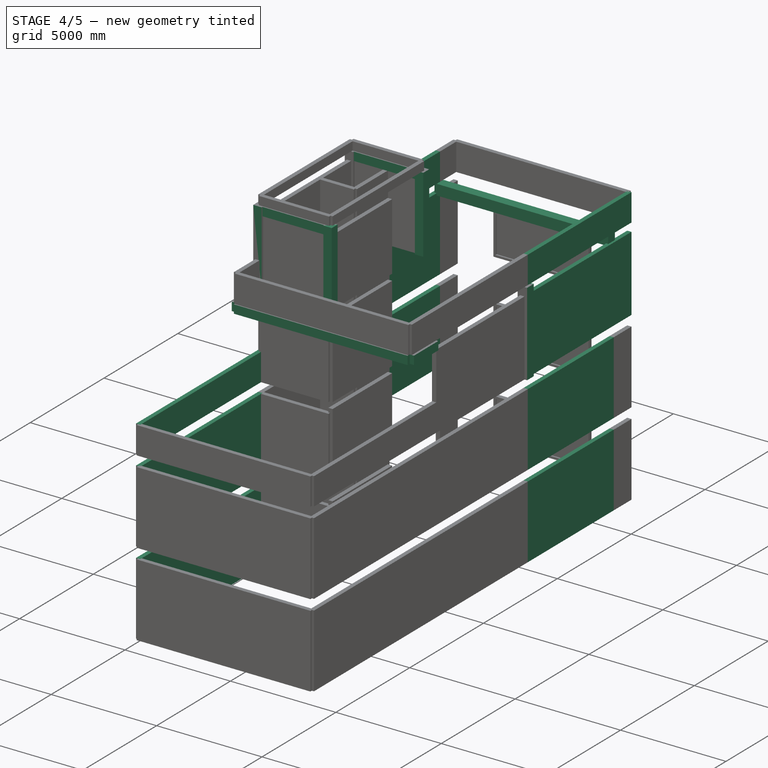
[diagram: stage 4 of 5 — iso view after this stage's code; geometry added in this stage tinted green]
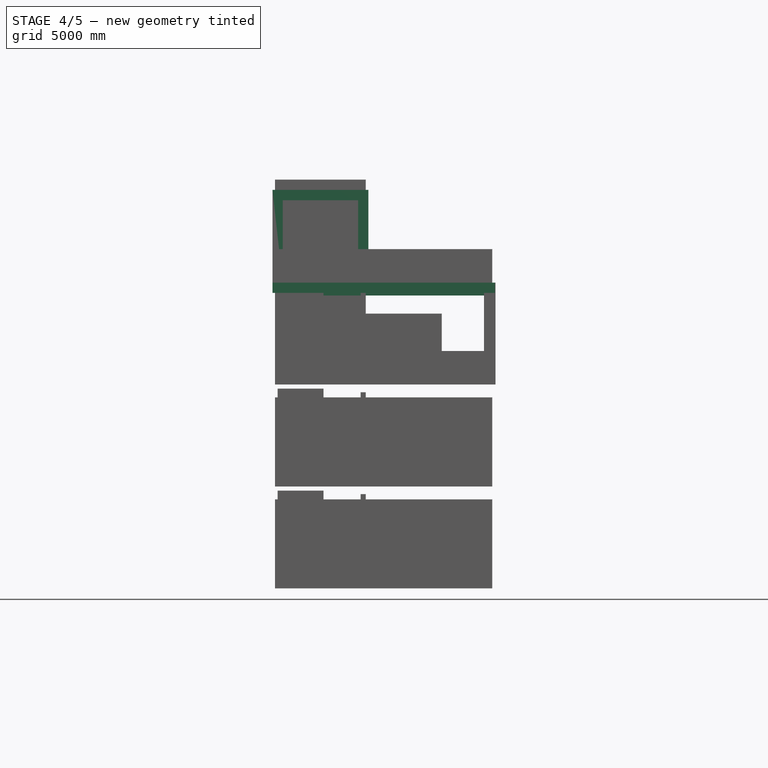
[diagram: stage 4 of 5 — front view after this stage's code; geometry added in this stage tinted green]
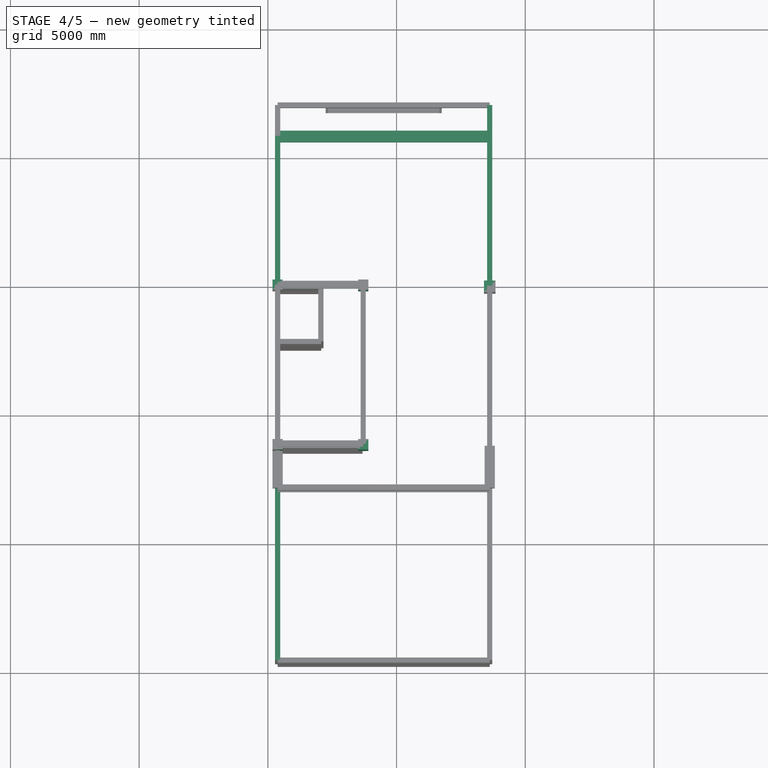
[diagram: stage 4 of 5 — top view after this stage's code; geometry added in this stage tinted green]
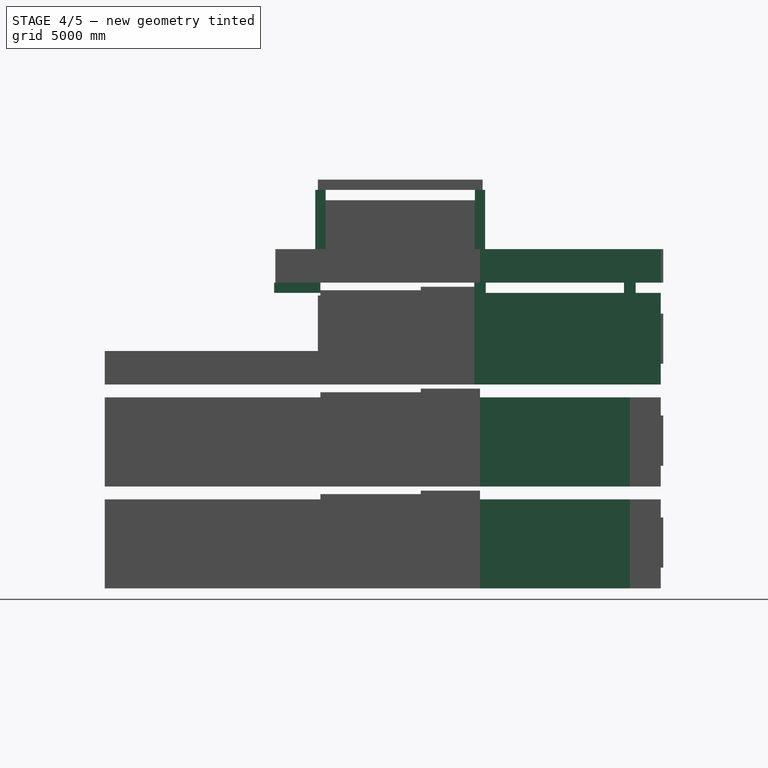
[diagram: stage 4 of 5 — right view after this stage's code; geometry added in this stage tinted green]
FEATURE [Part::Part2DObjectPython] C4012D  # Draft 2D object (typed FeaturePython)
  Height = 400
  Width = 400
FEATURE [Part::Part2DObjectPython] Line004  label="C1_Ridge_CenterLine"  # Draft 2D object (typed FeaturePython)
  Area = 0
  ChamferSize = 0
  Closed = false
  End = (380,14830,19930)
  FilletRadius = 0
  Length = 3600
  MakeFace = true
  Points = (2) [(380,14830,16330),(380,14830,19930)]
  Start = (380,14830,16330)
  Subdivisions = 0
FEATURE [Part::FeaturePython] Structure004  label="C1_Ridge"  # Arch/BIM 24 (typed FeaturePython)
  AttacherType = Attacher::AttachEngine3D
  AttachmentOffset = pos=(0,0,0) rot=(0,0,1;3.14159rad)
  Base = -> C4012D
  BaseMirror = false
  BaseOffsetX = 0
  BaseOffsetY = 0
  BasePerpendicularToTool = false
  BaseRotation = 0
  ComputedLength = 3600
  FaceMaker = 0
  Height = 3600
  HorizontalArea = 160000
  IfcData = attributes={"GlobalId": {"name": "GlobalId", "type": "IfcGloballyUniqueId", "is_enum": false, "enum_values": []}, "Description": {"... (+438 chars omitted),+1 more (map truncated)
  IfcType = 24
  Length = 0
  MapMode = 7
  MoveBase = false
  MoveWithHost = false
  Nodes = (2) [(380,14830,16330),(380,14830,19930)]
  NodesOffset = 0
  Normal = (0,0,0)
  PerimeterLength = 1600
  Placement = pos=(380,14830,16330) rot=(0,0,1;3.14159rad)
  PredefinedType = 0
  Support = -> [Line004]
  ToolOffsetFirst = 0
  ToolOffsetLast = 0
  VerticalArea = 5.76e+06
  Width = 100
FEATURE [Part::Part2DObjectPython] Line009  label="C2_Ridge_CenterLine"  # Draft 2D object (typed FeaturePython)
  Area = 0
  ChamferSize = 0
  Closed = false
  End = (380,8630,19930)
  FilletRadius = 0
  Length = 3600
  MakeFace = true
  Points = (2) [(380,8630,16330),(380,8630,19930)]
  Start = (380,8630,16330)
  Subdivisions = 0
FEATURE [Part::FeaturePython] Structure009  label="C2_Ridge"  # Arch/BIM 24 (typed FeaturePython)
  AttacherType = Attacher::AttachEngine3D
  AttachmentOffset = pos=(0,0,0) rot=(0,0,1;3.14159rad)
  Base = -> C4012D
  BaseMirror = false
  BaseOffsetX = 0
  BaseOffsetY = 0
  BasePerpendicularToTool = false
  BaseRotation = 0
  ComputedLength = 3600
  FaceMaker = 0
  Height = 3600
  HorizontalArea = 160000
  IfcData = attributes={"GlobalId": {"name": "GlobalId", "type": "IfcGloballyUniqueId", "is_enum": false, "enum_values": []}, "Description": {"... (+438 chars omitted),+1 more (map truncated)
  IfcType = 24
  Length = 0
  MapMode = 7
  MoveBase = false
  MoveWithHost = false
  Nodes = (2) [(380,8630,16330),(380,8630,19930)]
  NodesOffset = 0
  Normal = (0,0,0)
  PerimeterLength = 1600
  Placement = pos=(380,8630,16330) rot=(0,0,1;3.14159rad)
  PredefinedType = 0
  Support = -> [Line009]
  ToolOffsetFirst = 0
  ToolOffsetLast = 0
  VerticalArea = 5.76e+06
  Width = 100
FEATURE [Part::Part2DObjectPython] Line022  label="C11_Ridge_CenterLine"  # Draft 2D object (typed FeaturePython)
  Area = 0
  ChamferSize = 0
  Closed = false
  End = (3705,8630,19930)
  FilletRadius = 0
  Length = 3600
  MakeFace = true
  Points = (2) [(3705,8630,16330),(3705,8630,19930)]
  Start = (3705,8630,16330)
  Subdivisions = 0
FEATURE [Part::FeaturePython] Structure022  label="C11_Ridge"  # Arch/BIM 24 (typed FeaturePython)
  AttacherType = Attacher::AttachEngine3D
  AttachmentOffset = pos=(0,0,0) rot=(0,0,1;3.14159rad)
  Base = -> C4012D
  BaseMirror = false
  BaseOffsetX = 0
  BaseOffsetY = 0
  BasePerpendicularToTool = false
  BaseRotation = 0
  ComputedLength = 3600
  FaceMaker = 0
  Height = 3600
  HorizontalArea = 160000
  IfcData = attributes={"GlobalId": {"name": "GlobalId", "type": "IfcGloballyUniqueId", "is_enum": false, "enum_values": []}, "Description": {"... (+438 chars omitted),+1 more (map truncated)
  IfcType = 24
  Length = 0
  MapMode = 7
  MoveBase = false
  MoveWithHost = false
  Nodes = (2) [(3705,8630,16330),(3705,8630,19930)]
  NodesOffset = 0
  Normal = (0,0,0)
  PerimeterLength = 1600
  Placement = pos=(3705,8630,16330) rot=(0,0,1;3.14159rad)
  PredefinedType = 0
  Support = -> [Line022]
  ToolOffsetFirst = 0
  ToolOffsetLast = 0
  VerticalArea = 5.76e+06
  Width = 100
FEATURE [Part::Part2DObjectPython] Line032  label="C8_Roof_CenterLine"  # Draft 2D object (typed FeaturePython)
  Area = 0
  ChamferSize = 0
  Closed = false
  End = (8620,14830,16330)
  FilletRadius = 0
  Length = 3960
  MakeFace = true
  Points = (2) [(8620,14830,12370),(8620,14830,16330)]
  Start = (8620,14830,12370)
  Subdivisions = 0
FEATURE [Part::FeaturePython] Structure032  label="C8_Roof"  # Arch/BIM 24 (typed FeaturePython)
  AttacherType = Attacher::AttachEngine3D
  AttachmentOffset = pos=(0,0,0) rot=(0,0,1;3.14159rad)
  Base = -> C4512C
  BaseMirror = false
  BaseOffsetX = 0
  BaseOffsetY = 0
  BasePerpendicularToTool = false
  BaseRotation = 0
  ComputedLength = 3960
  FaceMaker = 0
  Height = 3960
  HorizontalArea = 202500
  IfcData = attributes={"GlobalId": {"name": "GlobalId", "type": "IfcGloballyUniqueId", "is_enum": false, "enum_values": []}, "Description": {"... (+438 chars omitted),+1 more (map truncated)
  IfcType = 24
  Length = 0
  MapMode = 7
  MoveBase = false
  MoveWithHost = false
  Nodes = (2) [(8620,14830,12370),(8620,14830,16330)]
  NodesOffset = 0
  Normal = (0,0,0)
  PerimeterLength = 1800
  Placement = pos=(8620,14830,12370) rot=(0,0,1;3.14159rad)
  PredefinedType = 0
  Support = -> [Line032]
  ToolOffsetFirst = 0
  ToolOffsetLast = 0
  VerticalArea = 7.128e+06
  Width = 100
FEATURE [Part::Part2DObjectPython] Line033  label="C12_Ridge_CenterLine"  # Draft 2D object (typed FeaturePython)
  Area = 0
  ChamferSize = 0
  Closed = false
  End = (3705,14830,19930)
  FilletRadius = 0
  Length = 3600
  MakeFace = true
  Points = (2) [(3705,14830,16330),(3705,14830,19930)]
  Start = (3705,14830,16330)
  Subdivisions = 0
FEATURE [Part::FeaturePython] Structure033  label="C12_Ridge"  # Arch/BIM 24 (typed FeaturePython)
  AttacherType = Attacher::AttachEngine3D
  AttachmentOffset = pos=(0,0,0) rot=(0,0,1;3.14159rad)
  Base = -> C4012D
  BaseMirror = false
  BaseOffsetX = 0
  BaseOffsetY = 0
  BasePerpendicularToTool = false
  BaseRotation = 0
  ComputedLength = 3600
  FaceMaker = 0
  Height = 3600
  HorizontalArea = 160000
  IfcData = attributes={"GlobalId": {"name": "GlobalId", "type": "IfcGloballyUniqueId", "is_enum": false, "enum_values": []}, "Description": {"... (+438 chars omitted),+1 more (map truncated)
  IfcType = 24
  Length = 0
  MapMode = 7
  MoveBase = false
  MoveWithHost = false
  Nodes = (2) [(3705,14830,16330),(3705,14830,19930)]
  NodesOffset = 0
  Normal = (0,0,0)
  PerimeterLength = 1600
  Placement = pos=(3705,14830,16330) rot=(0,0,1;3.14159rad)
  PredefinedType = 0
  Support = -> [Line033]
  ToolOffsetFirst = 0
  ToolOffsetLast = 0
  VerticalArea = 5.76e+06
  Width = 100
FEATURE [Part::Part2DObjectPython] B40H50  # Draft 2D object (typed FeaturePython)
  Height = 500
  Width = 400
FEATURE [Part::Part2DObjectPython] Line034  label="B1_Story1_CenterLine"  # Draft 2D object (typed FeaturePython)
  Area = 0
  ChamferSize = 0
  Closed = false
  End = (380,8630,4450)
  FilletRadius = 0
  Length = 8280
  MakeFace = true
  Points = (2) [(380,350,4450),(380,8630,4450)]
  Start = (380,350,4450)
  Subdivisions = 0
FEATURE [Part::FeaturePython] Structure034  label="B1_Story1"  # Arch/BIM 7 (typed FeaturePython)
  AttacherType = Attacher::AttachEngine3D
  AttachmentOffset = pos=(0,-250,0) rot=(0,0,1;0rad)
  Base = -> B40H50
  BaseMirror = false
  BaseOffsetX = 0
  BaseOffsetY = 0
  BasePerpendicularToTool = false
  BaseRotation = 0
  ComputedLength = 8280
  FaceMaker = 0
  Height = 8280
  HorizontalArea = 3312000
  IfcData = attributes={"GlobalId": {"name": "GlobalId", "type": "IfcGloballyUniqueId", "is_enum": false, "enum_values": []}, "Description": {"... (+475 chars omitted),+1 more (map truncated)
  IfcType = 7
  Length = 0
  MapMode = 7
  MoveBase = false
  MoveWithHost = false
  Nodes = (2) [(380,350,4450),(380,8630,4450)]
  NodesOffset = 0
  Normal = (0,0,0)
  PerimeterLength = 17360
  Placement = pos=(380,350,4200) rot=(0,0.707107,0.707107;3.14159rad)
  PredefinedType = 0
  Support = -> [Line034]
  ToolOffsetFirst = 0
  ToolOffsetLast = 0
  VerticalArea = 8.68e+06
  Width = 100
FEATURE [Part::Part2DObjectPython] Line035  label="B1_Story3_CenterLine"  # Draft 2D object (typed FeaturePython)
  Area = 0
  ChamferSize = 0
  Closed = false
  End = (380,8630,12370)
  FilletRadius = 0
  Length = 8280
  MakeFace = true
  Points = (2) [(380,350,12370),(380,8630,12370)]
  Start = (380,350,12370)
  Subdivisions = 0
FEATURE [Part::FeaturePython] Structure035  label="B1_Story3"  # Arch/BIM 7 (typed FeaturePython)
  AttacherType = Attacher::AttachEngine3D
  AttachmentOffset = pos=(0,-250,0) rot=(0,0,1;0rad)
  Base = -> B40H50
  BaseMirror = false
  BaseOffsetX = 0
  BaseOffsetY = 0
  BasePerpendicularToTool = false
  BaseRotation = 0
  ComputedLength = 8280
  FaceMaker = 0
  Height = 8280
  HorizontalArea = 3312000
  IfcData = attributes={"GlobalId": {"name": "GlobalId", "type": "IfcGloballyUniqueId", "is_enum": false, "enum_values": []}, "Description": {"... (+475 chars omitted),+1 more (map truncated)
  IfcType = 7
  Length = 0
  MapMode = 7
  MoveBase = false
  MoveWithHost = false
  Nodes = (2) [(380,350,12370),(380,8630,12370)]
  NodesOffset = 0
  Normal = (0,0,0)
  PerimeterLength = 17360
  Placement = pos=(380,350,12120) rot=(0,0.707107,0.707107;3.14159rad)
  PredefinedType = 0
  Support = -> [Line035]
  ToolOffsetFirst = 0
  ToolOffsetLast = 0
  VerticalArea = 8.68e+06
  Width = 100
FEATURE [Part::Part2DObjectPython] Line036  label="B1_Story2_CenterLine"  # Draft 2D object (typed FeaturePython)
  Area = 0
  ChamferSize = 0
  Closed = false
  End = (380,8630,8410)
  FilletRadius = 0
  Length = 8280
  MakeFace = true
  Points = (2) [(380,350,8410),(380,8630,8410)]
  Start = (380,350,8410)
  Subdivisions = 0
FEATURE [Part::FeaturePython] Structure036  label="B1_Story2"  # Arch/BIM 7 (typed FeaturePython)
  AttacherType = Attacher::AttachEngine3D
  AttachmentOffset = pos=(0,-250,0) rot=(0,0,1;0rad)
  Base = -> B40H50
  BaseMirror = false
  BaseOffsetX = 0
  BaseOffsetY = 0
  BasePerpendicularToTool = false
  BaseRotation = 0
  ComputedLength = 8280
  FaceMaker = 0
  Height = 8280
  HorizontalArea = 3312000
  IfcData = attributes={"GlobalId": {"name": "GlobalId", "type": "IfcGloballyUniqueId", "is_enum": false, "enum_values": []}, "Description": {"... (+475 chars omitted),+1 more (map truncated)
  IfcType = 7
  Length = 0
  MapMode = 7
  MoveBase = false
  MoveWithHost = false
  Nodes = (2) [(380,350,8410),(380,8630,8410)]
  NodesOffset = 0
  Normal = (0,0,0)
  PerimeterLength = 17360
  Placement = pos=(380,350,8160) rot=(0,0.707107,0.707107;3.14159rad)
  PredefinedType = 0
  Support = -> [Line036]
  ToolOffsetFirst = 0
  ToolOffsetLast = 0
  VerticalArea = 8.68e+06
  Width = 100
FEATURE [Part::Part2DObjectPython] Line043  label="B3_Roof_CenterLine"  # Draft 2D object (typed FeaturePython)
  Area = 0
  ChamferSize = 0
  Closed = false
  End = (380,20650,16330)
  FilletRadius = 0
  Length = 5820
  MakeFace = true
  Points = (2) [(380,14830,16330),(380,20650,16330)]
  Start = (380,14830,16330)
  Subdivisions = 0
FEATURE [Part::FeaturePython] Structure043  label="B3_Roof"  # Arch/BIM 7 (typed FeaturePython)
  AttacherType = Attacher::AttachEngine3D
  AttachmentOffset = pos=(0,-200,0) rot=(0,0,1;0rad)
  Base = -> B40H40
  BaseMirror = false
  BaseOffsetX = 0
  BaseOffsetY = 0
  BasePerpendicularToTool = false
  BaseRotation = 0
  ComputedLength = 5820
  FaceMaker = 0
  Height = 5820
  HorizontalArea = 2328000
  IfcData = attributes={"GlobalId": {"name": "GlobalId", "type": "IfcGloballyUniqueId", "is_enum": false, "enum_values": []}, "Description": {"... (+475 chars omitted),+1 more (map truncated)
  IfcType = 7
  Length = 0
  MapMode = 7
  MoveBase = false
  MoveWithHost = false
  Nodes = (2) [(380,14830,16330),(380,20650,16330)]
  NodesOffset = 0
  Normal = (0,0,0)
  PerimeterLength = 12440
  Placement = pos=(380,14830,16130) rot=(0,0.707107,0.707107;3.14159rad)
  PredefinedType = 0
  Support = -> [Line043]
  ToolOffsetFirst = 0
  ToolOffsetLast = 0
  VerticalArea = 4976000
  Width = 100
FEATURE [Part::Part2DObjectPython] Line044  label="B3_Story3_CenterLine"  # Draft 2D object (typed FeaturePython)
  Area = 0
  ChamferSize = 0
  Closed = false
  End = (380,20650,12370)
  FilletRadius = 0
  Length = 5820
  MakeFace = true
  Points = (2) [(380,14830,12370),(380,20650,12370)]
  Start = (380,14830,12370)
  Subdivisions = 0
FEATURE [Part::FeaturePython] Structure044  label="B3_Story3"  # Arch/BIM 7 (typed FeaturePython)
  AttacherType = Attacher::AttachEngine3D
  AttachmentOffset = pos=(0,-250,0) rot=(0,0,1;0rad)
  Base = -> B40H50
  BaseMirror = false
  BaseOffsetX = 0
  BaseOffsetY = 0
  BasePerpendicularToTool = false
  BaseRotation = 0
  ComputedLength = 5820
  FaceMaker = 0
  Height = 5820
  HorizontalArea = 2328000
  IfcData = attributes={"GlobalId": {"name": "GlobalId", "type": "IfcGloballyUniqueId", "is_enum": false, "enum_values": []}, "Description": {"... (+475 chars omitted),+1 more (map truncated)
  IfcType = 7
  Length = 0
  MapMode = 7
  MoveBase = false
  MoveWithHost = false
  Nodes = (2) [(380,14830,12370),(380,20650,12370)]
  NodesOffset = 0
  Normal = (0,0,0)
  PerimeterLength = 12440
  Placement = pos=(380,14830,12120) rot=(0,0.707107,0.707107;3.14159rad)
  PredefinedType = 0
  Support = -> [Line044]
  ToolOffsetFirst = 0
  ToolOffsetLast = 0
  VerticalArea = 6.22e+06
  Width = 100
FEATURE [Part::Part2DObjectPython] Line045  label="B3_Story2_CenterLine"  # Draft 2D object (typed FeaturePython)
  Area = 0
  ChamferSize = 0
  Closed = false
  End = (380,20650,8410)
  FilletRadius = 0
  Length = 5820
  MakeFace = true
  Points = (2) [(380,14830,8410),(380,20650,8410)]
  Start = (380,14830,8410)
  Subdivisions = 0
FEATURE [Part::FeaturePython] Structure045  label="B3_Story2"  # Arch/BIM 7 (typed FeaturePython)
  AttacherType = Attacher::AttachEngine3D
  AttachmentOffset = pos=(0,-250,0) rot=(0,0,1;0rad)
  Base = -> B40H50
  BaseMirror = false
  BaseOffsetX = 0
  BaseOffsetY = 0
  BasePerpendicularToTool = false
  BaseRotation = 0
  ComputedLength = 5820
  FaceMaker = 0
  Height = 5820
  HorizontalArea = 2328000
  IfcData = attributes={"GlobalId": {"name": "GlobalId", "type": "IfcGloballyUniqueId", "is_enum": false, "enum_values": []}, "Description": {"... (+475 chars omitted),+1 more (map truncated)
  IfcType = 7
  Length = 0
  MapMode = 7
  MoveBase = false
  MoveWithHost = false
  Nodes = (2) [(380,14830,8410),(380,20650,8410)]
  NodesOffset = 0
  Normal = (0,0,0)
  PerimeterLength = 12440
  Placement = pos=(380,14830,8160) rot=(0,0.707107,0.707107;3.14159rad)
  PredefinedType = 0
  Support = -> [Line045]
  ToolOffsetFirst = 0
  ToolOffsetLast = 0
  VerticalArea = 6.22e+06
  Width = 100
FEATURE [Part::Part2DObjectPython] Line054  label="B6_Story1_CenterLine"  # Draft 2D object (typed FeaturePython)
  Area = 0
  ChamferSize = 0
  Closed = false
  End = (8620,20650,4450)
  FilletRadius = 0
  Length = 5820
  MakeFace = true
  Points = (2) [(8620,14830,4450),(8620,20650,4450)]
  Start = (8620,14830,4450)
  Subdivisions = 0
FEATURE [Part::FeaturePython] Structure054  label="B6_Story1"  # Arch/BIM 7 (typed FeaturePython)
  AttacherType = Attacher::AttachEngine3D
  AttachmentOffset = pos=(0,-250,0) rot=(0,0,1;0rad)
  Base = -> B40H50
  BaseMirror = false
  BaseOffsetX = 0
  BaseOffsetY = 0
  BasePerpendicularToTool = false
  BaseRotation = 0
  ComputedLength = 5820
  FaceMaker = 0
  Height = 5820
  HorizontalArea = 2328000
  IfcData = attributes={"GlobalId": {"name": "GlobalId", "type": "IfcGloballyUniqueId", "is_enum": false, "enum_values": []}, "Description": {"... (+475 chars omitted),+1 more (map truncated)
  IfcType = 7
  Length = 0
  MapMode = 7
  MoveBase = false
  MoveWithHost = false
  Nodes = (2) [(8620,14830,4450),(8620,20650,4450)]
  NodesOffset = 0
  Normal = (0,0,0)
  PerimeterLength = 12440
  Placement = pos=(8620,14830,4200) rot=(0,0.707107,0.707107;3.14159rad)
  PredefinedType = 0
  Support = -> [Line054]
  ToolOffsetFirst = 0
  ToolOffsetLast = 0
  VerticalArea = 6.22e+06
  Width = 100
FEATURE [Part::Part2DObjectPython] Line055  label="B6_Roof_CenterLine"  # Draft 2D object (typed FeaturePython)
  Area = 0
  ChamferSize = 0
  Closed = false
  End = (8620,20650,16330)
  FilletRadius = 0
  Length = 5820
  MakeFace = true
  Points = (2) [(8620,14830,16330),(8620,20650,16330)]
  Start = (8620,14830,16330)
  Subdivisions = 0
FEATURE [Part::FeaturePython] Structure055  label="B6_Roof"  # Arch/BIM 7 (typed FeaturePython)
  AttacherType = Attacher::AttachEngine3D
  AttachmentOffset = pos=(0,-200,0) rot=(0,0,1;0rad)
  Base = -> B40H40
  BaseMirror = false
  BaseOffsetX = 0
  BaseOffsetY = 0
  BasePerpendicularToTool = false
  BaseRotation = 0
  ComputedLength = 5820
  FaceMaker = 0
  Height = 5820
  HorizontalArea = 2328000
  IfcData = attributes={"GlobalId": {"name": "GlobalId", "type": "IfcGloballyUniqueId", "is_enum": false, "enum_values": []}, "Description": {"... (+475 chars omitted),+1 more (map truncated)
  IfcType = 7
  Length = 0
  MapMode = 7
  MoveBase = false
  MoveWithHost = false
  Nodes = (2) [(8620,14830,16330),(8620,20650,16330)]
  NodesOffset = 0
  Normal = (0,0,0)
  PerimeterLength = 12440
  Placement = pos=(8620,14830,16130) rot=(0,0.707107,0.707107;3.14159rad)
  PredefinedType = 0
  Support = -> [Line055]
  ToolOffsetFirst = 0
  ToolOffsetLast = 0
  VerticalArea = 4976000
  Width = 100
FEATURE [Part::Part2DObjectPython] Line056  label="B6_Story3_CenterLine"  # Draft 2D object (typed FeaturePython)
  Area = 0
  ChamferSize = 0
  Closed = false
  End = (8620,20650,12370)
  FilletRadius = 0
  Length = 5820
  MakeFace = true
  Points = (2) [(8620,14830,12370),(8620,20650,12370)]
  Start = (8620,14830,12370)
  Subdivisions = 0
FEATURE [Part::FeaturePython] Structure056  label="B6_Story3"  # Arch/BIM 7 (typed FeaturePython)
  AttacherType = Attacher::AttachEngine3D
  AttachmentOffset = pos=(0,-250,0) rot=(0,0,1;0rad)
  Base = -> B40H50
  BaseMirror = false
  BaseOffsetX = 0
  BaseOffsetY = 0
  BasePerpendicularToTool = false
  BaseRotation = 0
  ComputedLength = 5820
  FaceMaker = 0
  Height = 5820
  HorizontalArea = 2328000
  IfcData = attributes={"GlobalId": {"name": "GlobalId", "type": "IfcGloballyUniqueId", "is_enum": false, "enum_values": []}, "Description": {"... (+475 chars omitted),+1 more (map truncated)
  IfcType = 7
  Length = 0
  MapMode = 7
  MoveBase = false
  MoveWithHost = false
  Nodes = (2) [(8620,14830,12370),(8620,20650,12370)]
  NodesOffset = 0
  Normal = (0,0,0)
  PerimeterLength = 12440
  Placement = pos=(8620,14830,12120) rot=(0,0.707107,0.707107;3.14159rad)
  PredefinedType = 0
  Support = -> [Line056]
  ToolOffsetFirst = 0
  ToolOffsetLast = 0
  VerticalArea = 6.22e+06
  Width = 100
FEATURE [Part::Part2DObjectPython] Line057  label="B6_Story2_CenterLine"  # Draft 2D object (typed FeaturePython)
  Area = 0
  ChamferSize = 0
  Closed = false
  End = (8620,20650,8410)
  FilletRadius = 0
  Length = 5820
  MakeFace = true
  Points = (2) [(8620,14830,8410),(8620,20650,8410)]
  Start = (8620,14830,8410)
  Subdivisions = 0
FEATURE [Part::FeaturePython] Structure057  label="B6_Story2"  # Arch/BIM 7 (typed FeaturePython)
  AttacherType = Attacher::AttachEngine3D
  AttachmentOffset = pos=(0,-250,0) rot=(0,0,1;0rad)
  Base = -> B40H50
  BaseMirror = false
  BaseOffsetX = 0
  BaseOffsetY = 0
  BasePerpendicularToTool = false
  BaseRotation = 0
  ComputedLength = 5820
  FaceMaker = 0
  Height = 5820
  HorizontalArea = 2328000
  IfcData = attributes={"GlobalId": {"name": "GlobalId", "type": "IfcGloballyUniqueId", "is_enum": false, "enum_values": []}, "Description": {"... (+475 chars omitted),+1 more (map truncated)
  IfcType = 7
  Length = 0
  MapMode = 7
  MoveBase = false
  MoveWithHost = false
  Nodes = (2) [(8620,14830,8410),(8620,20650,8410)]
  NodesOffset = 0
  Normal = (0,0,0)
  PerimeterLength = 12440
  Placement = pos=(8620,14830,8160) rot=(0,0.707107,0.707107;3.14159rad)
  PredefinedType = 0
  Support = -> [Line057]
  ToolOffsetFirst = 0
  ToolOffsetLast = 0
  VerticalArea = 6.22e+06
  Width = 100
FEATURE [Part::Part2DObjectPython] Line059  label="B7_Roof_CenterLine"  # Draft 2D object (typed FeaturePython)
  Area = 0
  ChamferSize = 0
  Closed = false
  End = (8620,20650,16330)
  FilletRadius = 0
  Length = 8240
  MakeFace = true
  Points = (2) [(380,20650,16330),(8620,20650,16330)]
  Start = (380,20650,16330)
  Subdivisions = 0
FEATURE [Part::FeaturePython] Structure059  label="B7_Roof"  # Arch/BIM 7 (typed FeaturePython)
  AttacherType = Attacher::AttachEngine3D
  AttachmentOffset = pos=(0,-250,0) rot=(0,0,1;0rad)
  Base = -> B45H50
  BaseMirror = false
  BaseOffsetX = 0
  BaseOffsetY = 0
  BasePerpendicularToTool = false
  BaseRotation = 0
  ComputedLength = 8240
  FaceMaker = 0
  Height = 8240
  HorizontalArea = 3.708e+06
  IfcData = attributes={"GlobalId": {"name": "GlobalId", "type": "IfcGloballyUniqueId", "is_enum": false, "enum_values": []}, "Description": {"... (+475 chars omitted),+1 more (map truncated)
  IfcType = 7
  Length = 0
  MapMode = 7
  MoveBase = false
  MoveWithHost = false
  Nodes = (2) [(380,20650,16330),(8620,20650,16330)]
  NodesOffset = 0
  Normal = (0,0,0)
  PerimeterLength = 17380
  Placement = pos=(380,20650,16080) rot=(0.57735,0.57735,0.57735;2.0944rad)
  PredefinedType = 0
  Support = -> [Line059]
  ToolOffsetFirst = 0
  ToolOffsetLast = 0
  VerticalArea = 8.69e+06
  Width = 100
FEATURE [Part::Part2DObjectPython] Line063  label="B21_Ridge_CenterLine"  # Draft 2D object (typed FeaturePython)
  Area = 0
  ChamferSize = 0
  Closed = false
  End = (3705,14830,19930)
  FilletRadius = 0
  Length = 3325
  MakeFace = true
  Points = (2) [(380,14830,19930),(3705,14830,19930)]
  Start = (380,14830,19930)
  Subdivisions = 0
FEATURE [Part::FeaturePython] Structure063  label="B21_Ridge"  # Arch/BIM 7 (typed FeaturePython)
  AttacherType = Attacher::AttachEngine3D
  AttachmentOffset = pos=(0,-200,0) rot=(0,0,1;0rad)
  Base = -> B30H40
  BaseMirror = false
  BaseOffsetX = 0
  BaseOffsetY = 0
  BasePerpendicularToTool = false
  BaseRotation = 0
  ComputedLength = 3325
  FaceMaker = 0
  Height = 3325
  HorizontalArea = 997500
  IfcData = attributes={"GlobalId": {"name": "GlobalId", "type": "IfcGloballyUniqueId", "is_enum": false, "enum_values": []}, "Description": {"... (+475 chars omitted),+1 more (map truncated)
  IfcType = 7
  Length = 0
  MapMode = 7
  MoveBase = false
  MoveWithHost = false
  Nodes = (2) [(380,14830,19930),(3705,14830,19930)]
  NodesOffset = 0
  Normal = (0,0,0)
  PerimeterLength = 7250
  Placement = pos=(380,14830,19730) rot=(0.57735,0.57735,0.57735;2.0944rad)
  PredefinedType = 0
  Support = -> [Line063]
  ToolOffsetFirst = 0
  ToolOffsetLast = 0
  VerticalArea = 2.9e+06
  Width = 100
FEATURE [Part::Part2DObjectPython] Line068  label="B22_Ridge_CenterLine"  # Draft 2D object (typed FeaturePython)
  Area = 0
  ChamferSize = 0
  Closed = false
  End = (3705,8630,19930)
  FilletRadius = 0
  Length = 3325
  MakeFace = true
  Points = (2) [(380,8630,19930),(3705,8630,19930)]
  Start = (380,8630,19930)
  Subdivisions = 0
FEATURE [Part::FeaturePython] Structure068  label="B22_Ridge"  # Arch/BIM 7 (typed FeaturePython)
  AttacherType = Attacher::AttachEngine3D
  AttachmentOffset = pos=(0,-200,0) rot=(0,0,1;0rad)
  Base = -> B30H40
  BaseMirror = false
  BaseOffsetX = 0
  BaseOffsetY = 0
  BasePerpendicularToTool = false
  BaseRotation = 0
  ComputedLength = 3325
  FaceMaker = 0
  Height = 3325
  HorizontalArea = 997500
  IfcData = attributes={"GlobalId": {"name": "GlobalId", "type": "IfcGloballyUniqueId", "is_enum": false, "enum_values": []}, "Description": {"... (+475 chars omitted),+1 more (map truncated)
  IfcType = 7
  Length = 0
  MapMode = 7
  MoveBase = false
  MoveWithHost = false
  Nodes = (2) [(380,8630,19930),(3705,8630,19930)]
  NodesOffset = 0
  Normal = (0,0,0)
  PerimeterLength = 7250
  Placement = pos=(380,8630,19730) rot=(0.57735,0.57735,0.57735;2.0944rad)
  PredefinedType = 0
  Support = -> [Line068]
  ToolOffsetFirst = 0
  ToolOffsetLast = 0
  VerticalArea = 2.9e+06
  Width = 100
FEATURE [Part::Part2DObjectPython] Line080  label="B13_Roof_CenterLine"  # Draft 2D object (typed FeaturePython)
  Area = 0
  ChamferSize = 0
  Closed = false
  End = (8620,21850,16330)
  FilletRadius = 0
  Length = 1200
  MakeFace = true
  Points = (2) [(8620,20650,16330),(8620,21850,16330)]
  Start = (8620,20650,16330)
  Subdivisions = 0
FEATURE [Part::FeaturePython] Structure080  label="B13_Roof"  # Arch/BIM 7 (typed FeaturePython)
  AttacherType = Attacher::AttachEngine3D
  AttachmentOffset = pos=(0,-200,0) rot=(0,0,1;0rad)
  Base = -> B40H40
  BaseMirror = false
  BaseOffsetX = 0
  BaseOffsetY = 0
  BasePerpendicularToTool = false
  BaseRotation = 0
  ComputedLength = 1200
  FaceMaker = 0
  Height = 1200
  HorizontalArea = 480000
  IfcData = attributes={"GlobalId": {"name": "GlobalId", "type": "IfcGloballyUniqueId", "is_enum": false, "enum_values": []}, "Description": {"... (+475 chars omitted),+1 more (map truncated)
  IfcType = 7
  Length = 0
  MapMode = 7
  MoveBase = false
  MoveWithHost = false
  Nodes = (2) [(8620,20650,16330),(8620,21850,16330)]
  NodesOffset = 0
  Normal = (0,0,0)
  PerimeterLength = 3200
  Placement = pos=(8620,20650,16130) rot=(0,0.707107,0.707107;3.14159rad)
  PredefinedType = 0
  Support = -> [Line080]
  ToolOffsetFirst = 0
  ToolOffsetLast = 0
  VerticalArea = 1.28e+06
  Width = 100
FEATURE [Part::Part2DObjectPython] Line091  label="B15_Roof_CenterLine"  # Draft 2D object (typed FeaturePython)
  Area = 0
  ChamferSize = 0
  Closed = false
  End = (8620,6980,16330)
  FilletRadius = 0
  Length = 8240
  MakeFace = true
  Points = (2) [(380,6980,16330),(8620,6980,16330)]
  Start = (380,6980,16330)
  Subdivisions = 0
FEATURE [Part::FeaturePython] Structure091  label="B15_Roof"  # Arch/BIM 7 (typed FeaturePython)
  AttacherType = Attacher::AttachEngine3D
  AttachmentOffset = pos=(0,-200,0) rot=(0,0,1;0rad)
  Base = -> B30H40
  BaseMirror = false
  BaseOffsetX = 0
  BaseOffsetY = 0
  BasePerpendicularToTool = false
  BaseRotation = 0
  ComputedLength = 8240
  FaceMaker = 0
  Height = 8240
  HorizontalArea = 2472000
  IfcData = attributes={"GlobalId": {"name": "GlobalId", "type": "IfcGloballyUniqueId", "is_enum": false, "enum_values": []}, "Description": {"... (+475 chars omitted),+1 more (map truncated)
  IfcType = 7
  Length = 0
  MapMode = 7
  MoveBase = false
  MoveWithHost = false
  Nodes = (2) [(380,6980,16330),(8620,6980,16330)]
  NodesOffset = 0
  Normal = (0,0,0)
  PerimeterLength = 17080
  Placement = pos=(380,6980,16130) rot=(0.57735,0.57735,0.57735;2.0944rad)
  PredefinedType = 0
  Support = -> [Line091]
  ToolOffsetFirst = 0
  ToolOffsetLast = 0
  VerticalArea = 6832000
  Width = 100
FEATURE [Part::Part2DObjectPython] Line092  label="B16_Roof_CenterLine"  # Draft 2D object (typed FeaturePython)
  Area = 0
  ChamferSize = 0
  Closed = false
  End = (8620,8630,16330)
  FilletRadius = 0
  Length = 1650
  MakeFace = true
  Points = (2) [(8620,6980,16330),(8620,8630,16330)]
  Start = (8620,6980,16330)
  Subdivisions = 0
FEATURE [Part::FeaturePython] Structure092  label="B16_Roof"  # Arch/BIM 7 (typed FeaturePython)
  AttacherType = Attacher::AttachEngine3D
  AttachmentOffset = pos=(0,-200,0) rot=(0,0,1;0rad)
  Base = -> B40H40
  BaseMirror = false
  BaseOffsetX = 0
  BaseOffsetY = 0
  BasePerpendicularToTool = false
  BaseRotation = 0
  ComputedLength = 1650
  FaceMaker = 0
  Height = 1650
  HorizontalArea = 660000
  IfcData = attributes={"GlobalId": {"name": "GlobalId", "type": "IfcGloballyUniqueId", "is_enum": false, "enum_values": []}, "Description": {"... (+475 chars omitted),+1 more (map truncated)
  IfcType = 7
  Length = 0
  MapMode = 7
  MoveBase = false
  MoveWithHost = false
  Nodes = (2) [(8620,6980,16330),(8620,8630,16330)]
  NodesOffset = 0
  Normal = (0,0,0)
  PerimeterLength = 4100
  Placement = pos=(8620,6980,16130) rot=(0,0.707107,0.707107;3.14159rad)
  PredefinedType = 0
  Support = -> [Line092]
  ToolOffsetFirst = 0
  ToolOffsetLast = 0
  VerticalArea = 1640000
  Width = 100
FEATURE [Part::Part2DObjectPython] Line093  label="B17_Roof_CenterLine"  # Draft 2D object (typed FeaturePython)
  Area = 0
  ChamferSize = 0
  Closed = false
  End = (380,8630,16330)
  FilletRadius = 0
  Length = 1650
  MakeFace = true
  Points = (2) [(380,6980,16330),(380,8630,16330)]
  Start = (380,6980,16330)
  Subdivisions = 0
FEATURE [Part::FeaturePython] Structure093  label="B17_Roof"  # Arch/BIM 7 (typed FeaturePython)
  AttacherType = Attacher::AttachEngine3D
  AttachmentOffset = pos=(0,-200,0) rot=(0,0,1;0rad)
  Base = -> B40H40
  BaseMirror = false
  BaseOffsetX = 0
  BaseOffsetY = 0
  BasePerpendicularToTool = false
  BaseRotation = 0
  ComputedLength = 1650
  FaceMaker = 0
  Height = 1650
  HorizontalArea = 660000
  IfcData = attributes={"GlobalId": {"name": "GlobalId", "type": "IfcGloballyUniqueId", "is_enum": false, "enum_values": []}, "Description": {"... (+475 chars omitted),+1 more (map truncated)
  IfcType = 7
  Length = 0
  MapMode = 7
  MoveBase = false
  MoveWithHost = false
  Nodes = (2) [(380,6980,16330),(380,8630,16330)]
  NodesOffset = 0
  Normal = (0,0,0)
  PerimeterLength = 4100
  Placement = pos=(380,6980,16130) rot=(0,0.707107,0.707107;3.14159rad)
  PredefinedType = 0
  Support = -> [Line093]
  ToolOffsetFirst = 0
  ToolOffsetLast = 0
  VerticalArea = 1640000
  Width = 100
FEATURE [Part::Part2DObjectPython] Wire  label="F1_Story1"  # Draft 2D object (typed FeaturePython)
  Area = 68227200
  ChamferSize = 0
  Closed = true
  End = (380,8630,4450)
  FilletRadius = 0
  Length = 33040
  MakeFace = true
  Points = (4) [(380,350,4450),(8620,350,4450),(8620,8630,4450),(380,8630,4450)]
  Start = (380,350,4450)
  Subdivisions = 0
FEATURE [Part::Part2DObjectPython] Wire001  label="F1_Story3"  # Draft 2D object (typed FeaturePython)
  Area = 68227200
  ChamferSize = 0
  Closed = true
  End = (380,8630,12370)
  FilletRadius = 0
  Length = 33040
  MakeFace = true
  Points = (4) [(380,350,12370),(8620,350,12370),(8620,8630,12370),(380,8630,12370)]
  Start = (380,350,12370)
  Subdivisions = 0
FEATURE [Part::Part2DObjectPython] Wire002  label="F1_Story2"  # Draft 2D object (typed FeaturePython)
  Area = 68227200
  ChamferSize = 0
  Closed = true
  End = (380,8630,8410)
  FilletRadius = 0
  Length = 33040
  MakeFace = true
  Points = (4) [(380,350,8410),(8620,350,8410),(8620,8630,8410),(380,8630,8410)]
  Start = (380,350,8410)
  Subdivisions = 0
FEATURE [Part::Part2DObjectPython] Wire003  label="F2_Story1"  # Draft 2D object (typed FeaturePython)
  Area = 47956800
  ChamferSize = 0
  Closed = true
  End = (380,20650,4450)
  FilletRadius = 0
  Length = 28120
  MakeFace = true
  Points = (4) [(380,14830,4450),(8620,14830,4450),(8620,20650,4450),(380,20650,4450)]
  Start = (380,14830,4450)
  Subdivisions = 0
FEATURE [Part::Part2DObjectPython] Wire004  label="F2_Roof"  # Draft 2D object (typed FeaturePython)
  Area = 47956800
  ChamferSize = 0
  Closed = true
  End = (380,20650,16330)
  FilletRadius = 0
  Length = 28120
  MakeFace = true
  Points = (4) [(380,14830,16330),(8620,14830,16330),(8620,20650,16330),(380,20650,16330)]
  Start = (380,14830,16330)
  Subdivisions = 0
FEATURE [Part::Part2DObjectPython] Wire005  label="F2_Story3"  # Draft 2D object (typed FeaturePython)
  Area = 47956800
  ChamferSize = 0
  Closed = true
  End = (380,20650,12370)
  FilletRadius = 0
  Length = 28120
  MakeFace = true
  Points = (4) [(380,14830,12370),(8620,14830,12370),(8620,20650,12370),(380,20650,12370)]
  Start = (380,14830,12370)
  Subdivisions = 0
FEATURE [Part::Part2DObjectPython] Wire006  label="F2_Story2"  # Draft 2D object (typed FeaturePython)
  Area = 47956800
  ChamferSize = 0
  Closed = true
  End = (380,20650,8410)
  FilletRadius = 0
  Length = 28120
  MakeFace = true
  Points = (4) [(380,14830,8410),(8620,14830,8410),(8620,20650,8410),(380,20650,8410)]
  Start = (380,14830,8410)
  Subdivisions = 0
FEATURE [Part::Part2DObjectPython] Wire007  label="F3_Story1"  # Draft 2D object (typed FeaturePython)
  Area = 9.888e+06
  ChamferSize = 0
  Closed = true
  End = (380,21850,4450)
  FilletRadius = 0
  Length = 18880
  MakeFace = true
  Points = (4) [(380,20650,4450),(8620,20650,4450),(8620,21850,4450),(380,21850,4450)]
  Start = (380,20650,4450)
  Subdivisions = 0
FEATURE [Part::Part2DObjectPython] Wire008  label="F3_Roof"  # Draft 2D object (typed FeaturePython)
  Area = 9.888e+06
  ChamferSize = 0
  Closed = true
  End = (380,21850,16330)
  FilletRadius = 0
  Length = 18880
  MakeFace = true
  Points = (4) [(380,20650,16330),(8620,20650,16330),(8620,21850,16330),(380,21850,16330)]
  Start = (380,20650,16330)
  Subdivisions = 0
FEATURE [Part::Part2DObjectPython] Wire009  label="F3_Story3"  # Draft 2D object (typed FeaturePython)
  Area = 9.888e+06
  ChamferSize = 0
  Closed = true
  End = (380,21850,12370)
  FilletRadius = 0
  Length = 18880
  MakeFace = true
  Points = (4) [(380,20650,12370),(8620,20650,12370),(8620,21850,12370),(380,21850,12370)]
  Start = (380,20650,12370)
  Subdivisions = 0
FEATURE [Part::Part2DObjectPython] Wire010  label="F3_Story2"  # Draft 2D object (typed FeaturePython)
  Area = 9.888e+06
  ChamferSize = 0
  Closed = true
  End = (380,21850,8410)
  FilletRadius = 0
  Length = 18880
  MakeFace = true
  Points = (4) [(380,20650,8410),(8620,20650,8410),(8620,21850,8410),(380,21850,8410)]
  Start = (380,20650,8410)
  Subdivisions = 0
FEATURE [Part::Part2DObjectPython] Wire011  label="F4_Story1"  # Draft 2D object (typed FeaturePython)
  Area = 30473000
  ChamferSize = 0
  Closed = true
  End = (3705,14830,4450)
  FilletRadius = 0
  Length = 22230
  MakeFace = true
  Points = (4) [(3705,8630,4450),(8620,8630,4450),(8620,14830,4450),(3705,14830,4450)]
  Start = (3705,8630,4450)
  Subdivisions = 0
FEATURE [Part::Part2DObjectPython] Wire012  label="F4_Roof"  # Draft 2D object (typed FeaturePython)
  Area = 30473000
  ChamferSize = 0
  Closed = true
  End = (3705,14830,16330)
  FilletRadius = 0
  Length = 22230
  MakeFace = true
  Points = (4) [(3705,8630,16330),(8620,8630,16330),(8620,14830,16330),(3705,14830,16330)]
  Start = (3705,8630,16330)
  Subdivisions = 0
FEATURE [Part::Part2DObjectPython] Wire013  label="F4_Story3"  # Draft 2D object (typed FeaturePython)
  Area = 30473000
  ChamferSize = 0
  Closed = true
  End = (3705,14830,12370)
  FilletRadius = 0
  Length = 22230
  MakeFace = true
  Points = (4) [(3705,8630,12370),(8620,8630,12370),(8620,14830,12370),(3705,14830,12370)]
  Start = (3705,8630,12370)
  Subdivisions = 0
FEATURE [Part::Part2DObjectPython] Wire014  label="F4_Story2"  # Draft 2D object (typed FeaturePython)
  Area = 30473000
  ChamferSize = 0
  Closed = true
  End = (3705,14830,8410)
  FilletRadius = 0
  Length = 22230
  MakeFace = true
  Points = (4) [(3705,8630,8410),(8620,8630,8410),(8620,14830,8410),(3705,14830,8410)]
  Start = (3705,8630,8410)
  Subdivisions = 0
FEATURE [Part::Part2DObjectPython] Wire015  label="F5_Roof"  # Draft 2D object (typed FeaturePython)
  Area = 13596000
  ChamferSize = 0
  Closed = true
  End = (380,8630,16330)
  FilletRadius = 0
  Length = 19780
  MakeFace = true
  Points = (4) [(380,6980,16330),(8620,6980,16330),(8620,8630,16330),(380,8630,16330)]
  Start = (380,6980,16330)
  Subdivisions = 0
FEATURE [Part::Part2DObjectPython] Wire016  label="F6_Ridge"  # Draft 2D object (typed FeaturePython)
  Area = 2.0615e+07
  ChamferSize = 0
  Closed = true
  End = (380,14830,19930)
  FilletRadius = 0
  Length = 19050
  MakeFace = true
  Points = (4) [(380,8630,19930),(3705,8630,19930),(3705,14830,19930),(380,14830,19930)]
  Start = (380,8630,19930)
  Subdivisions = 0
FEATURE [Part::Part2DObjectPython] Wire017  label="F7_Story1"  # Draft 2D object (typed FeaturePython)
  Area = 3.619e+06
  ChamferSize = 0
  Closed = true
  End = (2060,14830,4450)
  FilletRadius = 0
  Length = 7690
  MakeFace = true
  Points = (4) [(2060,12630,4450),(3705,12630,4450),(3705,14830,4450),(2060,14830,4450)]
  Start = (2060,12630,4450)
  Subdivisions = 0
FEATURE [Part::Part2DObjectPython] Wire018  label="F7_Roof"  # Draft 2D object (typed FeaturePython)
  Area = 3.619e+06
  ChamferSize = 0
  Closed = true
  End = (2060,14830,16330)
  FilletRadius = 0
  Length = 7690
  MakeFace = true
  Points = (4) [(2060,12630,16330),(3705,12630,16330),(3705,14830,16330),(2060,14830,16330)]
  Start = (2060,12630,16330)
  Subdivisions = 0
FEATURE [Part::Part2DObjectPython] Wire019  label="F7_Story3"  # Draft 2D object (typed FeaturePython)
  Area = 3.619e+06
  ChamferSize = 0
  Closed = true
  End = (2060,14830,12370)
  FilletRadius = 0
  Length = 7690
  MakeFace = true
  Points = (4) [(2060,12630,12370),(3705,12630,12370),(3705,14830,12370),(2060,14830,12370)]
  Start = (2060,12630,12370)
  Subdivisions = 0
FEATURE [Part::Part2DObjectPython] Wire020  label="F7_Story2"  # Draft 2D object (typed FeaturePython)
  Area = 3.619e+06
  ChamferSize = 0
  Closed = true
  End = (2060,14830,8410)
  FilletRadius = 0
  Length = 7690
  MakeFace = true
  Points = (4) [(2060,12630,8410),(3705,12630,8410),(3705,14830,8410),(2060,14830,8410)]
  Start = (2060,12630,8410)
  Subdivisions = 0
FEATURE [App::GeometryPython] BuildingPart  label="Base"  # Arch/BIM 14 (typed FeaturePython)
  Area = 0
  CompositionType = 0
  Elevation = -350
  Height = 0
  HeightPropagate = true
  IfcData = attributes={"GlobalId": {"name": "GlobalId", "type": "IfcGloballyUniqueId", "is_enum": false, "enum_values": []}, "Description": {"... (+861 chars omitted),+1 more (map truncated)
  IfcType = 14
  LevelOffset = 0
  LongName = Base
  OnlySolids = true
  Placement = pos=(0,0,-350) rot=(0,0,1;0rad)
  expr: Elevation = .Placement.Base.z
FEATURE [Sketcher::SketchObject] WallTrace  label="B6_Roof_CenterLine_walltrace"
  FullyConstrained = false
  Placement = pos=(0,0,16330) rot=(0,0,1;0rad)
  sketch-geometry (1):
    g0: LineSegment StartX=8620 StartY=14830 StartZ=0 EndX=8620 EndY=20650 EndZ=0
FEATURE [Part::FeaturePython] Wall  # Arch/BIM 166 (typed FeaturePython)
  Align = 2
  Area = 7.566e+06
  Base = -> WallTrace
  BlockHeight = 0
  BlockLength = 0
  CountBroken = 0
  CountEntire = 0
  Face = 0
  Height = 1300
  HorizontalArea = 1164000
  IfcData = attributes={"GlobalId": {"name": "GlobalId", "type": "IfcGloballyUniqueId", "is_enum": false, "enum_values": []}, "Description": {"... (+533 chars omitted),+1 more (map truncated)
  IfcType = 166
  Joint = 0
  Length = 5820
  MakeBlocks = false
  MoveBase = false
  MoveWithHost = false
  Normal = (0,0,0)
  OffsetFirst = 0
  OffsetSecond = 0
  PerimeterLength = 12040
  PredefinedType = 0
  VerticalArea = 1.5652e+07
  Width = 200
  base = -> Line055
  loadpat = SD
  weight = 220
FEATURE [Sketcher::SketchObject] WallTrace031  label="B6_Story3_CenterLine_walltrace"
  FullyConstrained = false
  Placement = pos=(0,0,12370) rot=(0,0,1;0rad)
  sketch-geometry (1):
    g0: LineSegment StartX=8620 StartY=14830 StartZ=0 EndX=8620 EndY=20650 EndZ=0
FEATURE [Part::FeaturePython] Wall031  # Arch/BIM 166 (typed FeaturePython)
  Align = 2
  Area = 2.07192e+07
  Base = -> WallTrace031
  BlockHeight = 0
  BlockLength = 0
  CountBroken = 0
  CountEntire = 0
  Face = 0
  Height = 3560
  HorizontalArea = 1164000
  IfcData = attributes={"GlobalId": {"name": "GlobalId", "type": "IfcGloballyUniqueId", "is_enum": false, "enum_values": []}, "Description": {"... (+533 chars omitted),+1 more (map truncated)
  IfcType = 166
  Joint = 0
  Length = 5820
  MakeBlocks = false
  MoveBase = false
  MoveWithHost = false
  Normal = (0,0,0)
  OffsetFirst = 0
  OffsetSecond = 0
  PerimeterLength = 12040
  PredefinedType = 0
  VerticalArea = 4.28624e+07
  Width = 200
  base = -> Line056
  loadpat = SD
  weight = 220
  expr: Height = Structure055.Shape.BoundBox.ZMin - Structure056.Shape.BoundBox.ZMax
FEATURE [Sketcher::SketchObject] WallTrace032  label="B6_Story2_CenterLine_walltrace"
  FullyConstrained = false
  Placement = pos=(0,0,8410) rot=(0,0,1;0rad)
  sketch-geometry (1):
    g0: LineSegment StartX=8620 StartY=14830 StartZ=0 EndX=8620 EndY=20650 EndZ=0
FEATURE [Part::FeaturePython] Wall032  # Arch/BIM 166 (typed FeaturePython)
  Align = 2
  Area = 20137200
  Base = -> WallTrace032
  BlockHeight = 0
  BlockLength = 0
  CountBroken = 0
  CountEntire = 0
  Face = 0
  Height = 3460
  HorizontalArea = 1164000
  IfcData = attributes={"GlobalId": {"name": "GlobalId", "type": "IfcGloballyUniqueId", "is_enum": false, "enum_values": []}, "Description": {"... (+533 chars omitted),+1 more (map truncated)
  IfcType = 166
  Joint = 0
  Length = 5820
  MakeBlocks = false
  MoveBase = false
  MoveWithHost = false
  Normal = (0,0,0)
  OffsetFirst = 0
  OffsetSecond = 0
  PerimeterLength = 12040
  PredefinedType = 0
  VerticalArea = 41658400
  Width = 200
  base = -> Line057
  loadpat = SD
  weight = 220
  expr: Height = Structure056.Shape.BoundBox.ZMin - Structure057.Shape.BoundBox.ZMax
FEATURE [Sketcher::SketchObject] WallTrace033  label="B6_Story1_CenterLine_walltrace"
  FullyConstrained = false
  Placement = pos=(0,0,4450) rot=(0,0,1;0rad)
  sketch-geometry (1):
    g0: LineSegment StartX=8620 StartY=14830 StartZ=0 EndX=8620 EndY=20650 EndZ=0
FEATURE [Part::FeaturePython] Wall033  # Arch/BIM 166 (typed FeaturePython)
  Align = 2
  Area = 2.01372e+07
  Base = -> WallTrace033
  BlockHeight = 0
  BlockLength = 0
  CountBroken = 0
  CountEntire = 0
  Face = 0
  Height = 3460
  HorizontalArea = 1164000
  IfcData = attributes={"GlobalId": {"name": "GlobalId", "type": "IfcGloballyUniqueId", "is_enum": false, "enum_values": []}, "Description": {"... (+533 chars omitted),+1 more (map truncated)
  IfcType = 166
  Joint = 0
  Length = 5820
  MakeBlocks = false
  MoveBase = false
  MoveWithHost = false
  Normal = (0,0,0)
  OffsetFirst = 0
  OffsetSecond = 0
  PerimeterLength = 12040
  PredefinedType = 0
  VerticalArea = 4.16584e+07
  Width = 200
  base = -> Line054
  loadpat = SD
  weight = 220
  expr: Height = Structure057.Shape.BoundBox.ZMin - Structure054.Shape.BoundBox.ZMax
FEATURE [Sketcher::SketchObject] WallTrace034  label="B3_Roof_CenterLine_walltrace"
  FullyConstrained = false
  Placement = pos=(0,0,16330) rot=(0,0,1;0rad)
  sketch-geometry (1):
    g0: LineSegment StartX=380 StartY=14830 StartZ=0 EndX=380 EndY=20650 EndZ=0
FEATURE [Part::FeaturePython] Wall034  # Arch/BIM 166 (typed FeaturePython)
  Align = 2
  Area = 7.566e+06
  Base = -> WallTrace034
  BlockHeight = 0
  BlockLength = 0
  CountBroken = 0
  CountEntire = 0
  Face = 0
  Height = 1300
  HorizontalArea = 1164000
  IfcData = attributes={"GlobalId": {"name": "GlobalId", "type": "IfcGloballyUniqueId", "is_enum": false, "enum_values": []}, "Description": {"... (+533 chars omitted),+1 more (map truncated)
  IfcType = 166
  Joint = 0
  Length = 5820
  MakeBlocks = false
  MoveBase = false
  MoveWithHost = false
  Normal = (0,0,0)
  OffsetFirst = 0
  OffsetSecond = 0
  PerimeterLength = 12040
  PredefinedType = 0
  VerticalArea = 1.5652e+07
  Width = 200
  base = -> Line043
  loadpat = SD
  weight = 220
FEATURE [Sketcher::SketchObject] WallTrace035  label="B3_Story3_CenterLine_walltrace"
  FullyConstrained = false
  Placement = pos=(0,0,12370) rot=(0,0,1;0rad)
  sketch-geometry (1):
    g0: LineSegment StartX=380 StartY=14830 StartZ=0 EndX=380 EndY=20650 EndZ=0
FEATURE [Part::FeaturePython] Wall035  # Arch/BIM 166 (typed FeaturePython)
  Align = 2
  Area = 2.07192e+07
  Base = -> WallTrace035
  BlockHeight = 0
  BlockLength = 0
  CountBroken = 0
  CountEntire = 0
  Face = 0
  Height = 3560
  HorizontalArea = 1164000
  IfcData = attributes={"GlobalId": {"name": "GlobalId", "type": "IfcGloballyUniqueId", "is_enum": false, "enum_values": []}, "Description": {"... (+533 chars omitted),+1 more (map truncated)
  IfcType = 166
  Joint = 0
  Length = 5820
  MakeBlocks = false
  MoveBase = false
  MoveWithHost = false
  Normal = (0,0,0)
  OffsetFirst = 0
  OffsetSecond = 0
  PerimeterLength = 12040
  PredefinedType = 0
  VerticalArea = 4.28624e+07
  Width = 200
  base = -> Line044
  loadpat = SD
  weight = 220
  expr: Height = Structure043.Shape.BoundBox.ZMin - Structure044.Shape.BoundBox.ZMax
FEATURE [Sketcher::SketchObject] WallTrace036  label="B3_Story2_CenterLine_walltrace"
  FullyConstrained = false
  Placement = pos=(0,0,8410) rot=(0,0,1;0rad)
  sketch-geometry (1):
    g0: LineSegment StartX=380 StartY=14830 StartZ=0 EndX=380 EndY=20650 EndZ=0
FEATURE [Part::FeaturePython] Wall036  # Arch/BIM 166 (typed FeaturePython)
  Align = 2
  Area = 20137200
  Base = -> WallTrace036
  BlockHeight = 0
  BlockLength = 0
  CountBroken = 0
  CountEntire = 0
  Face = 0
  Height = 3460
  HorizontalArea = 1164000
  IfcData = attributes={"GlobalId": {"name": "GlobalId", "type": "IfcGloballyUniqueId", "is_enum": false, "enum_values": []}, "Description": {"... (+533 chars omitted),+1 more (map truncated)
  IfcType = 166
  Joint = 0
  Length = 5820
  MakeBlocks = false
  MoveBase = false
  MoveWithHost = false
  Normal = (0,0,0)
  OffsetFirst = 0
  OffsetSecond = 0
  PerimeterLength = 12040
  PredefinedType = 0
  VerticalArea = 41658400
  Width = 200
  base = -> Line045
  loadpat = SD
  weight = 220
  expr: Height = Structure044.Shape.BoundBox.ZMin - Structure045.Shape.BoundBox.ZMax
FEATURE [Sketcher::SketchObject] WallTrace038  label="B1_Story3_CenterLine_walltrace"
  FullyConstrained = false
  Placement = pos=(0,0,12370) rot=(0,0,1;0rad)
  sketch-geometry (1):
    g0: LineSegment StartX=380 StartY=350 StartZ=0 EndX=380 EndY=8630 EndZ=0
FEATURE [Part::FeaturePython] Wall038  # Arch/BIM 166 (typed FeaturePython)
  Align = 2
  Area = 1.0764e+07
  Base = -> WallTrace038
  BlockHeight = 0
  BlockLength = 0
  CountBroken = 0
  CountEntire = 0
  Face = 0
  Height = 1300
  HorizontalArea = 1656000
  IfcData = attributes={"GlobalId": {"name": "GlobalId", "type": "IfcGloballyUniqueId", "is_enum": false, "enum_values": []}, "Description": {"... (+533 chars omitted),+1 more (map truncated)
  IfcType = 166
  Joint = 0
  Length = 8280
  MakeBlocks = false
  MoveBase = false
  MoveWithHost = false
  Normal = (0,0,0)
  OffsetFirst = 0
  OffsetSecond = 0
  PerimeterLength = 16960
  PredefinedType = 0
  VerticalArea = 2.2048e+07
  Width = 200
  base = -> Line035
  loadpat = SD
  weight = 220
FEATURE [Sketcher::SketchObject] WallTrace039  label="B1_Story2_CenterLine_walltrace"
  FullyConstrained = false
  Placement = pos=(0,0,8410) rot=(0,0,1;0rad)
  sketch-geometry (1):
    g0: LineSegment StartX=380 StartY=350 StartZ=0 EndX=380 EndY=8630 EndZ=0
FEATURE [Part::FeaturePython] Wall039  # Arch/BIM 166 (typed FeaturePython)
  Align = 2
  Area = 28648800
  Base = -> WallTrace039
  BlockHeight = 0
  BlockLength = 0
  CountBroken = 0
  CountEntire = 0
  Face = 0
  Height = 3460
  HorizontalArea = 1656000
  IfcData = attributes={"GlobalId": {"name": "GlobalId", "type": "IfcGloballyUniqueId", "is_enum": false, "enum_values": []}, "Description": {"... (+533 chars omitted),+1 more (map truncated)
  IfcType = 166
  Joint = 0
  Length = 8280
  MakeBlocks = false
  MoveBase = false
  MoveWithHost = false
  Normal = (0,0,0)
  OffsetFirst = 0
  OffsetSecond = 0
  PerimeterLength = 16960
  PredefinedType = 0
  VerticalArea = 58681600
  Width = 200
  base = -> Line036
  loadpat = SD
  weight = 220
  expr: Height = Structure035.Shape.BoundBox.ZMin - Structure036.Shape.BoundBox.ZMax
FEATURE [Sketcher::SketchObject] WallTrace040  label="B1_Story1_CenterLine_walltrace"
  FullyConstrained = false
  Placement = pos=(0,0,4450) rot=(0,0,1;0rad)
  sketch-geometry (1):
    g0: LineSegment StartX=380 StartY=350 StartZ=0 EndX=380 EndY=8630 EndZ=0
FEATURE [Part::FeaturePython] Wall040  # Arch/BIM 166 (typed FeaturePython)
  Align = 2
  Area = 2.86488e+07
  Base = -> WallTrace040
  BlockHeight = 0
  BlockLength = 0
  CountBroken = 0
  CountEntire = 0
  Face = 0
  Height = 3460
  HorizontalArea = 1656000
  IfcData = attributes={"GlobalId": {"name": "GlobalId", "type": "IfcGloballyUniqueId", "is_enum": false, "enum_values": []}, "Description": {"... (+533 chars omitted),+1 more (map truncated)
  IfcType = 166
  Joint = 0
  Length = 8280
  MakeBlocks = false
  MoveBase = false
  MoveWithHost = false
  Normal = (0,0,0)
  OffsetFirst = 0
  OffsetSecond = 0
  PerimeterLength = 16960
  PredefinedType = 0
  VerticalArea = 5.86816e+07
  Width = 200
  base = -> Line034
  loadpat = SD
  weight = 220
  expr: Height = Structure036.Shape.BoundBox.ZMin - Structure034.Shape.BoundBox.ZMax
FEATURE [Sketcher::SketchObject] WallTrace041  label="B13_Roof_CenterLine_walltrace"
  FullyConstrained = false
  Placement = pos=(0,0,16330) rot=(0,0,1;0rad)
  sketch-geometry (1):
    g0: LineSegment StartX=8620 StartY=20650 StartZ=0 EndX=8620 EndY=21850 EndZ=0
FEATURE [Part::FeaturePython] Wall041  # Arch/BIM 166 (typed FeaturePython)
  Align = 2
  Area = 1.56e+06
  Base = -> WallTrace041
  BlockHeight = 0
  BlockLength = 0
  CountBroken = 0
  CountEntire = 0
  Face = 0
  Height = 1300
  HorizontalArea = 240000
  IfcData = attributes={"GlobalId": {"name": "GlobalId", "type": "IfcGloballyUniqueId", "is_enum": false, "enum_values": []}, "Description": {"... (+533 chars omitted),+1 more (map truncated)
  IfcType = 166
  Joint = 0
  Length = 1200
  MakeBlocks = false
  MoveBase = false
  MoveWithHost = false
  Normal = (0,0,0)
  OffsetFirst = 0
  OffsetSecond = 0
  PerimeterLength = 2800
  PredefinedType = 0
  VerticalArea = 3.64e+06
  Width = 200
  base = -> Line080
  loadpat = SD
  weight = 220
FEATURE [Sketcher::SketchObject] WallTrace042  label="B13_Story3_CenterLine_walltrace"
  FullyConstrained = false
  Placement = pos=(0,0,12370) rot=(0,0,1;0rad)
  sketch-geometry (1):
    g0: LineSegment StartX=8620 StartY=20650 StartZ=0 EndX=8620 EndY=21850 EndZ=0
FEATURE [Part::FeaturePython] Wall042  # Arch/BIM 166 (typed FeaturePython)
  Align = 2
  Area = 4.272e+06
  Base = -> WallTrace042
  BlockHeight = 0
  BlockLength = 0
  CountBroken = 0
  CountEntire = 0
  Face = 0
  Height = 3560
  HorizontalArea = 240000
  IfcData = attributes={"GlobalId": {"name": "GlobalId", "type": "IfcGloballyUniqueId", "is_enum": false, "enum_values": []}, "Description": {"... (+533 chars omitted),+1 more (map truncated)
  IfcType = 166
  Joint = 0
  Length = 1200
  MakeBlocks = false
  MoveBase = false
  MoveWithHost = false
  Normal = (0,0,0)
  OffsetFirst = 0
  OffsetSecond = 0
  PerimeterLength = 2800
  PredefinedType = 0
  VerticalArea = 9.968e+06
  Width = 200
  base = -> Line081
  loadpat = SD
  weight = 220
  expr: Height = Structure080.Shape.BoundBox.ZMin - Structure081.Shape.BoundBox.ZMax
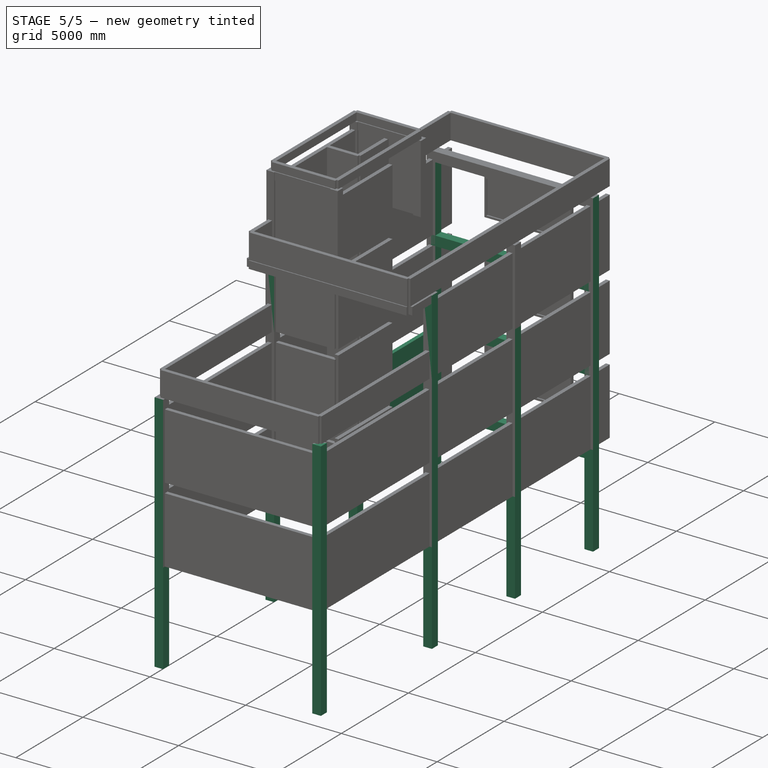
[diagram: stage 5 of 5 — iso view after this stage's code; geometry added in this stage tinted green]
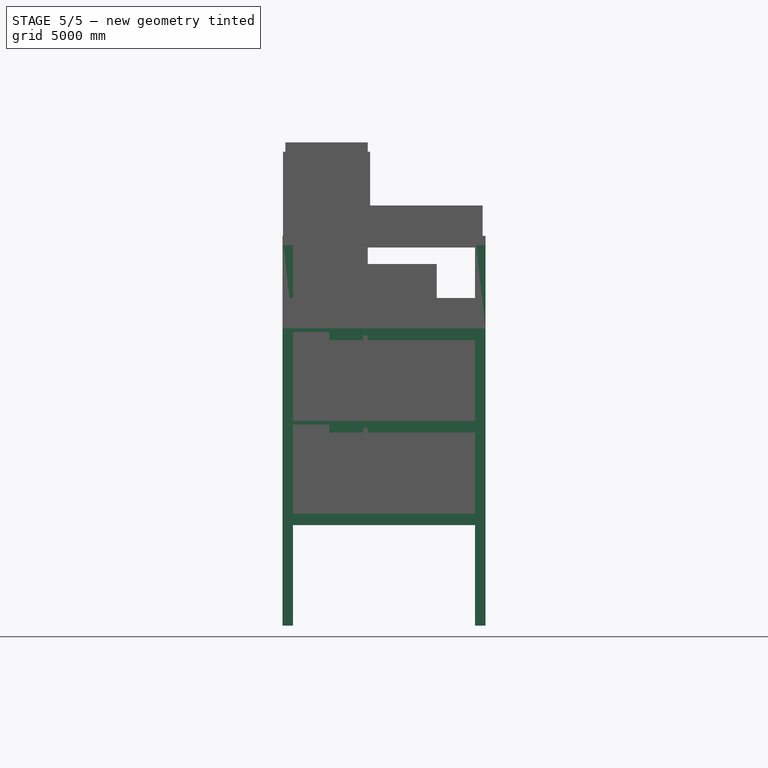
[diagram: stage 5 of 5 — front view after this stage's code; geometry added in this stage tinted green]
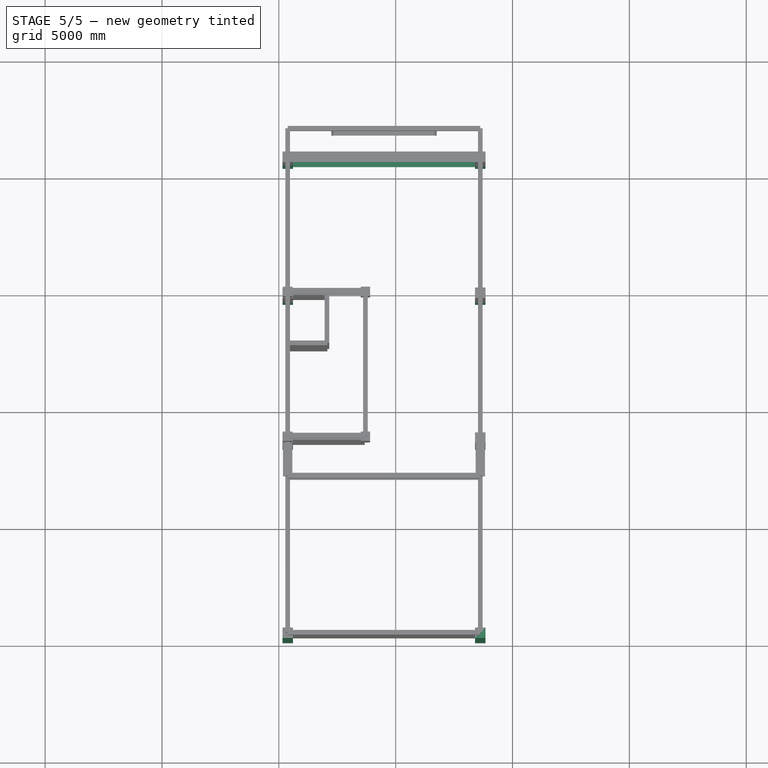
[diagram: stage 5 of 5 — top view after this stage's code; geometry added in this stage tinted green]
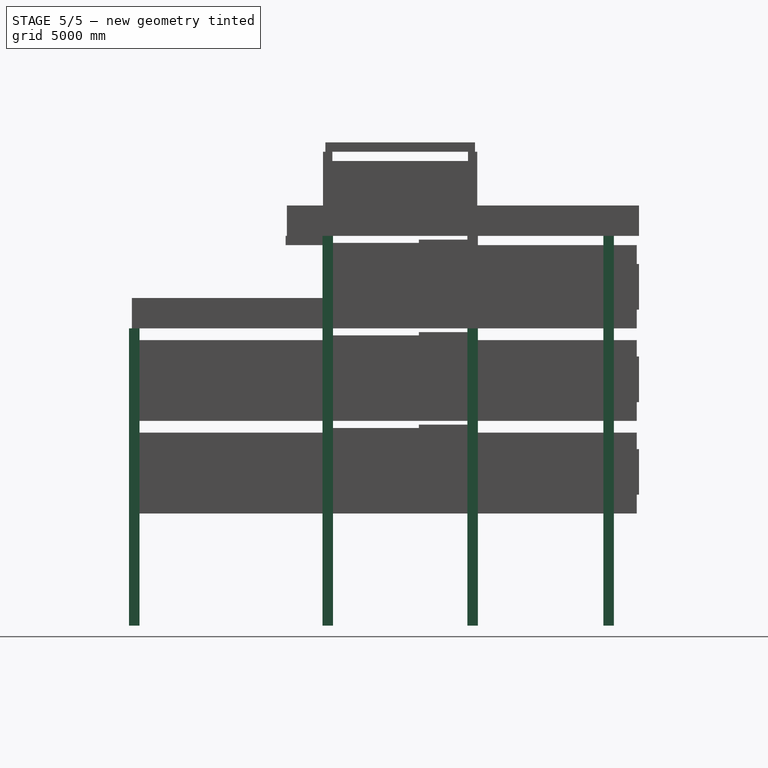
[diagram: stage 5 of 5 — right view after this stage's code; geometry added in this stage tinted green]
FEATURE [Part::Part2DObjectPython] C4512A  # Draft 2D object (typed FeaturePython)
  Height = 450
  Width = 450
FEATURE [Part::Part2DObjectPython] Line  label="C1_Story1_CenterLine"  # Draft 2D object (typed FeaturePython)
  Area = 0
  ChamferSize = 0
  Closed = false
  End = (380,14830,4450)
  FilletRadius = 0
  Length = 4800
  MakeFace = true
  Points = (2) [(380,14830,-350),(380,14830,4450)]
  Start = (380,14830,-350)
  Subdivisions = 0
FEATURE [Part::FeaturePython] Structure  label="C1_Story1"  # Arch/BIM 24 (typed FeaturePython)
  AttacherType = Attacher::AttachEngine3D
  AttachmentOffset = pos=(0,0,0) rot=(0,0,1;3.14159rad)
  Base = -> C4512A
  BaseMirror = false
  BaseOffsetX = 0
  BaseOffsetY = 0
  BasePerpendicularToTool = false
  BaseRotation = 0
  ComputedLength = 4800
  FaceMaker = 0
  Height = 4800
  HorizontalArea = 202500
  IfcData = attributes={"GlobalId": {"name": "GlobalId", "type": "IfcGloballyUniqueId", "is_enum": false, "enum_values": []}, "Description": {"... (+438 chars omitted),+1 more (map truncated)
  IfcType = 24
  Length = 0
  MapMode = 7
  MoveBase = false
  MoveWithHost = false
  Nodes = (2) [(380,14830,-350),(380,14830,4450)]
  NodesOffset = 0
  Normal = (0,0,0)
  PerimeterLength = 1800
  Placement = pos=(380,14830,-350) rot=(0,0,1;3.14159rad)
  PredefinedType = 0
  Support = -> [Line]
  ToolOffsetFirst = 0
  ToolOffsetLast = 0
  VerticalArea = 8.64e+06
  Width = 100
FEATURE [Part::Part2DObjectPython] C4512AC  # Draft 2D object (typed FeaturePython)
  Height = 450
  Width = 450
FEATURE [Part::Part2DObjectPython] Line001  label="C1_Story2_CenterLine"  # Draft 2D object (typed FeaturePython)
  Area = 0
  ChamferSize = 0
  Closed = false
  End = (380,14830,8410)
  FilletRadius = 0
  Length = 3960
  MakeFace = true
  Points = (2) [(380,14830,4450),(380,14830,8410)]
  Start = (380,14830,4450)
  Subdivisions = 0
FEATURE [Part::FeaturePython] Structure001  label="C1_Story2"  # Arch/BIM 24 (typed FeaturePython)
  AttacherType = Attacher::AttachEngine3D
  AttachmentOffset = pos=(0,0,0) rot=(0,0,1;3.14159rad)
  Base = -> C4512AC
  BaseMirror = false
  BaseOffsetX = 0
  BaseOffsetY = 0
  BasePerpendicularToTool = false
  BaseRotation = 0
  ComputedLength = 3960
  FaceMaker = 0
  Height = 3960
  HorizontalArea = 202500
  IfcData = attributes={"GlobalId": {"name": "GlobalId", "type": "IfcGloballyUniqueId", "is_enum": false, "enum_values": []}, "Description": {"... (+438 chars omitted),+1 more (map truncated)
  IfcType = 24
  Length = 0
  MapMode = 7
  MoveBase = false
  MoveWithHost = false
  Nodes = (2) [(380,14830,4450),(380,14830,8410)]
  NodesOffset = 0
  Normal = (0,0,0)
  PerimeterLength = 1800
  Placement = pos=(380,14830,4450) rot=(0,0,1;3.14159rad)
  PredefinedType = 0
  Support = -> [Line001]
  ToolOffsetFirst = 0
  ToolOffsetLast = 0
  VerticalArea = 7.128e+06
  Width = 100
FEATURE [Part::Part2DObjectPython] C4512C  # Draft 2D object (typed FeaturePython)
  Height = 450
  Width = 450
FEATURE [Part::Part2DObjectPython] Line002  label="C1_Story3_CenterLine"  # Draft 2D object (typed FeaturePython)
  Area = 0
  ChamferSize = 0
  Closed = false
  End = (380,14830,12370)
  FilletRadius = 0
  Length = 3960
  MakeFace = true
  Points = (2) [(380,14830,8410),(380,14830,12370)]
  Start = (380,14830,8410)
  Subdivisions = 0
FEATURE [Part::FeaturePython] Structure002  label="C1_Story3"  # Arch/BIM 24 (typed FeaturePython)
  AttacherType = Attacher::AttachEngine3D
  AttachmentOffset = pos=(0,0,0) rot=(0,0,1;3.14159rad)
  Base = -> C4512C
  BaseMirror = false
  BaseOffsetX = 0
  BaseOffsetY = 0
  BasePerpendicularToTool = false
  BaseRotation = 0
  ComputedLength = 3960
  FaceMaker = 0
  Height = 3960
  HorizontalArea = 202500
  IfcData = attributes={"GlobalId": {"name": "GlobalId", "type": "IfcGloballyUniqueId", "is_enum": false, "enum_values": []}, "Description": {"... (+438 chars omitted),+1 more (map truncated)
  IfcType = 24
  Length = 0
  MapMode = 7
  MoveBase = false
  MoveWithHost = false
  Nodes = (2) [(380,14830,8410),(380,14830,12370)]
  NodesOffset = 0
  Normal = (0,0,0)
  PerimeterLength = 1800
  Placement = pos=(380,14830,8410) rot=(0,0,1;3.14159rad)
  PredefinedType = 0
  Support = -> [Line002]
  ToolOffsetFirst = 0
  ToolOffsetLast = 0
  VerticalArea = 7.128e+06
  Width = 100
FEATURE [Part::Part2DObjectPython] Line003  label="C1_Roof_CenterLine"  # Draft 2D object (typed FeaturePython)
  Area = 0
  ChamferSize = 0
  Closed = false
  End = (380,14830,16330)
  FilletRadius = 0
  Length = 3960
  MakeFace = true
  Points = (2) [(380,14830,12370),(380,14830,16330)]
  Start = (380,14830,12370)
  Subdivisions = 0
FEATURE [Part::FeaturePython] Structure003  label="C1_Roof"  # Arch/BIM 24 (typed FeaturePython)
  AttacherType = Attacher::AttachEngine3D
  AttachmentOffset = pos=(0,0,0) rot=(0,0,1;3.14159rad)
  Base = -> C4512C
  BaseMirror = false
  BaseOffsetX = 0
  BaseOffsetY = 0
  BasePerpendicularToTool = false
  BaseRotation = 0
  ComputedLength = 3960
  FaceMaker = 0
  Height = 3960
  HorizontalArea = 202500
  IfcData = attributes={"GlobalId": {"name": "GlobalId", "type": "IfcGloballyUniqueId", "is_enum": false, "enum_values": []}, "Description": {"... (+438 chars omitted),+1 more (map truncated)
  IfcType = 24
  Length = 0
  MapMode = 7
  MoveBase = false
  MoveWithHost = false
  Nodes = (2) [(380,14830,12370),(380,14830,16330)]
  NodesOffset = 0
  Normal = (0,0,0)
  PerimeterLength = 1800
  Placement = pos=(380,14830,12370) rot=(0,0,1;3.14159rad)
  PredefinedType = 0
  Support = -> [Line003]
  ToolOffsetFirst = 0
  ToolOffsetLast = 0
  VerticalArea = 7.128e+06
  Width = 100
FEATURE [Part::Part2DObjectPython] Line005  label="C2_Story1_CenterLine"  # Draft 2D object (typed FeaturePython)
  Area = 0
  ChamferSize = 0
  Closed = false
  End = (380,8630,4450)
  FilletRadius = 0
  Length = 4800
  MakeFace = true
  Points = (2) [(380,8630,-350),(380,8630,4450)]
  Start = (380,8630,-350)
  Subdivisions = 0
FEATURE [Part::FeaturePython] Structure005  label="C2_Story1"  # Arch/BIM 24 (typed FeaturePython)
  AttacherType = Attacher::AttachEngine3D
  AttachmentOffset = pos=(0,0,0) rot=(0,0,1;3.14159rad)
  Base = -> C4512A
  BaseMirror = false
  BaseOffsetX = 0
  BaseOffsetY = 0
  BasePerpendicularToTool = false
  BaseRotation = 0
  ComputedLength = 4800
  FaceMaker = 0
  Height = 4800
  HorizontalArea = 202500
  IfcData = attributes={"GlobalId": {"name": "GlobalId", "type": "IfcGloballyUniqueId", "is_enum": false, "enum_values": []}, "Description": {"... (+438 chars omitted),+1 more (map truncated)
  IfcType = 24
  Length = 0
  MapMode = 7
  MoveBase = false
  MoveWithHost = false
  Nodes = (2) [(380,8630,-350),(380,8630,4450)]
  NodesOffset = 0
  Normal = (0,0,0)
  PerimeterLength = 1800
  Placement = pos=(380,8630,-350) rot=(0,0,1;3.14159rad)
  PredefinedType = 0
  Support = -> [Line005]
  ToolOffsetFirst = 0
  ToolOffsetLast = 0
  VerticalArea = 8.64e+06
  Width = 100
FEATURE [Part::Part2DObjectPython] Line006  label="C2_Story2_CenterLine"  # Draft 2D object (typed FeaturePython)
  Area = 0
  ChamferSize = 0
  Closed = false
  End = (380,8630,8410)
  FilletRadius = 0
  Length = 3960
  MakeFace = true
  Points = (2) [(380,8630,4450),(380,8630,8410)]
  Start = (380,8630,4450)
  Subdivisions = 0
FEATURE [Part::FeaturePython] Structure006  label="C2_Story2"  # Arch/BIM 24 (typed FeaturePython)
  AttacherType = Attacher::AttachEngine3D
  AttachmentOffset = pos=(0,0,0) rot=(0,0,1;3.14159rad)
  Base = -> C4512AC
  BaseMirror = false
  BaseOffsetX = 0
  BaseOffsetY = 0
  BasePerpendicularToTool = false
  BaseRotation = 0
  ComputedLength = 3960
  FaceMaker = 0
  Height = 3960
  HorizontalArea = 202500
  IfcData = attributes={"GlobalId": {"name": "GlobalId", "type": "IfcGloballyUniqueId", "is_enum": false, "enum_values": []}, "Description": {"... (+438 chars omitted),+1 more (map truncated)
  IfcType = 24
  Length = 0
  MapMode = 7
  MoveBase = false
  MoveWithHost = false
  Nodes = (2) [(380,8630,4450),(380,8630,8410)]
  NodesOffset = 0
  Normal = (0,0,0)
  PerimeterLength = 1800
  Placement = pos=(380,8630,4450) rot=(0,0,1;3.14159rad)
  PredefinedType = 0
  Support = -> [Line006]
  ToolOffsetFirst = 0
  ToolOffsetLast = 0
  VerticalArea = 7.128e+06
  Width = 100
FEATURE [Part::Part2DObjectPython] Line007  label="C2_Story3_CenterLine"  # Draft 2D object (typed FeaturePython)
  Area = 0
  ChamferSize = 0
  Closed = false
  End = (380,8630,12370)
  FilletRadius = 0
  Length = 3960
  MakeFace = true
  Points = (2) [(380,8630,8410),(380,8630,12370)]
  Start = (380,8630,8410)
  Subdivisions = 0
FEATURE [Part::FeaturePython] Structure007  label="C2_Story3"  # Arch/BIM 24 (typed FeaturePython)
  AttacherType = Attacher::AttachEngine3D
  AttachmentOffset = pos=(0,0,0) rot=(0,0,1;3.14159rad)
  Base = -> C4512C
  BaseMirror = false
  BaseOffsetX = 0
  BaseOffsetY = 0
  BasePerpendicularToTool = false
  BaseRotation = 0
  ComputedLength = 3960
  FaceMaker = 0
  Height = 3960
  HorizontalArea = 202500
  IfcData = attributes={"GlobalId": {"name": "GlobalId", "type": "IfcGloballyUniqueId", "is_enum": false, "enum_values": []}, "Description": {"... (+438 chars omitted),+1 more (map truncated)
  IfcType = 24
  Length = 0
  MapMode = 7
  MoveBase = false
  MoveWithHost = false
  Nodes = (2) [(380,8630,8410),(380,8630,12370)]
  NodesOffset = 0
  Normal = (0,0,0)
  PerimeterLength = 1800
  Placement = pos=(380,8630,8410) rot=(0,0,1;3.14159rad)
  PredefinedType = 0
  Support = -> [Line007]
  ToolOffsetFirst = 0
  ToolOffsetLast = 0
  VerticalArea = 7.128e+06
  Width = 100
FEATURE [Part::Part2DObjectPython] Line008  label="C2_Roof_CenterLine"  # Draft 2D object (typed FeaturePython)
  Area = 0
  ChamferSize = 0
  Closed = false
  End = (380,8630,16330)
  FilletRadius = 0
  Length = 3960
  MakeFace = true
  Points = (2) [(380,8630,12370),(380,8630,16330)]
  Start = (380,8630,12370)
  Subdivisions = 0
FEATURE [Part::FeaturePython] Structure008  label="C2_Roof"  # Arch/BIM 24 (typed FeaturePython)
  AttacherType = Attacher::AttachEngine3D
  AttachmentOffset = pos=(0,0,0) rot=(0,0,1;3.14159rad)
  Base = -> C4512C
  BaseMirror = false
  BaseOffsetX = 0
  BaseOffsetY = 0
  BasePerpendicularToTool = false
  BaseRotation = 0
  ComputedLength = 3960
  FaceMaker = 0
  Height = 3960
  HorizontalArea = 202500
  IfcData = attributes={"GlobalId": {"name": "GlobalId", "type": "IfcGloballyUniqueId", "is_enum": false, "enum_values": []}, "Description": {"... (+438 chars omitted),+1 more (map truncated)
  IfcType = 24
  Length = 0
  MapMode = 7
  MoveBase = false
  MoveWithHost = false
  Nodes = (2) [(380,8630,12370),(380,8630,16330)]
  NodesOffset = 0
  Normal = (0,0,0)
  PerimeterLength = 1800
  Placement = pos=(380,8630,12370) rot=(0,0,1;3.14159rad)
  PredefinedType = 0
  Support = -> [Line008]
  ToolOffsetFirst = 0
  ToolOffsetLast = 0
  VerticalArea = 7.128e+06
  Width = 100
FEATURE [Part::Part2DObjectPython] Line010  label="C3_Story1_CenterLine"  # Draft 2D object (typed FeaturePython)
  Area = 0
  ChamferSize = 0
  Closed = false
  End = (8620,20650,4450)
  FilletRadius = 0
  Length = 4800
  MakeFace = true
  Points = (2) [(8620,20650,-350),(8620,20650,4450)]
  Start = (8620,20650,-350)
  Subdivisions = 0
FEATURE [Part::FeaturePython] Structure010  label="C3_Story1"  # Arch/BIM 24 (typed FeaturePython)
  AttacherType = Attacher::AttachEngine3D
  AttachmentOffset = pos=(0,0,0) rot=(0,0,1;6.28318rad)
  Base = -> C4512A
  BaseMirror = false
  BaseOffsetX = 0
  BaseOffsetY = 0
  BasePerpendicularToTool = false
  BaseRotation = 0
  ComputedLength = 4800
  FaceMaker = 0
  Height = 4800
  HorizontalArea = 202500
  IfcData = attributes={"GlobalId": {"name": "GlobalId", "type": "IfcGloballyUniqueId", "is_enum": false, "enum_values": []}, "Description": {"... (+438 chars omitted),+1 more (map truncated)
  IfcType = 24
  Length = 0
  MapMode = 7
  MoveBase = false
  MoveWithHost = false
  Nodes = (2) [(8620,20650,-350),(8620,20650,4450)]
  NodesOffset = 0
  Normal = (0,0,0)
  PerimeterLength = 1800
  Placement = pos=(8620,20650,-350) rot=(0,0,1;0rad)
  PredefinedType = 0
  Support = -> [Line010]
  ToolOffsetFirst = 0
  ToolOffsetLast = 0
  VerticalArea = 8.64e+06
  Width = 100
FEATURE [Part::Part2DObjectPython] Line011  label="C3_Story2_CenterLine"  # Draft 2D object (typed FeaturePython)
  Area = 0
  ChamferSize = 0
  Closed = false
  End = (8620,20650,8410)
  FilletRadius = 0
  Length = 3960
  MakeFace = true
  Points = (2) [(8620,20650,4450),(8620,20650,8410)]
  Start = (8620,20650,4450)
  Subdivisions = 0
FEATURE [Part::FeaturePython] Structure011  label="C3_Story2"  # Arch/BIM 24 (typed FeaturePython)
  AttacherType = Attacher::AttachEngine3D
  AttachmentOffset = pos=(0,0,0) rot=(0,0,1;6.28318rad)
  Base = -> C4512AC
  BaseMirror = false
  BaseOffsetX = 0
  BaseOffsetY = 0
  BasePerpendicularToTool = false
  BaseRotation = 0
  ComputedLength = 3960
  FaceMaker = 0
  Height = 3960
  HorizontalArea = 202500
  IfcData = attributes={"GlobalId": {"name": "GlobalId", "type": "IfcGloballyUniqueId", "is_enum": false, "enum_values": []}, "Description": {"... (+438 chars omitted),+1 more (map truncated)
  IfcType = 24
  Length = 0
  MapMode = 7
  MoveBase = false
  MoveWithHost = false
  Nodes = (2) [(8620,20650,4450),(8620,20650,8410)]
  NodesOffset = 0
  Normal = (0,0,0)
  PerimeterLength = 1800
  Placement = pos=(8620,20650,4450) rot=(0,0,1;0rad)
  PredefinedType = 0
  Support = -> [Line011]
  ToolOffsetFirst = 0
  ToolOffsetLast = 0
  VerticalArea = 7.128e+06
  Width = 100
FEATURE [Part::Part2DObjectPython] Line012  label="C3_Story3_CenterLine"  # Draft 2D object (typed FeaturePython)
  Area = 0
  ChamferSize = 0
  Closed = false
  End = (8620,20650,12370)
  FilletRadius = 0
  Length = 3960
  MakeFace = true
  Points = (2) [(8620,20650,8410),(8620,20650,12370)]
  Start = (8620,20650,8410)
  Subdivisions = 0
FEATURE [Part::FeaturePython] Structure012  label="C3_Story3"  # Arch/BIM 24 (typed FeaturePython)
  AttacherType = Attacher::AttachEngine3D
  AttachmentOffset = pos=(0,0,0) rot=(0,0,1;6.28318rad)
  Base = -> C4512C
  BaseMirror = false
  BaseOffsetX = 0
  BaseOffsetY = 0
  BasePerpendicularToTool = false
  BaseRotation = 0
  ComputedLength = 3960
  FaceMaker = 0
  Height = 3960
  HorizontalArea = 202500
  IfcData = attributes={"GlobalId": {"name": "GlobalId", "type": "IfcGloballyUniqueId", "is_enum": false, "enum_values": []}, "Description": {"... (+438 chars omitted),+1 more (map truncated)
  IfcType = 24
  Length = 0
  MapMode = 7
  MoveBase = false
  MoveWithHost = false
  Nodes = (2) [(8620,20650,8410),(8620,20650,12370)]
  NodesOffset = 0
  Normal = (0,0,0)
  PerimeterLength = 1800
  Placement = pos=(8620,20650,8410) rot=(0,0,1;0rad)
  PredefinedType = 0
  Support = -> [Line012]
  ToolOffsetFirst = 0
  ToolOffsetLast = 0
  VerticalArea = 7.128e+06
  Width = 100
FEATURE [Part::Part2DObjectPython] Line013  label="C3_Roof_CenterLine"  # Draft 2D object (typed FeaturePython)
  Area = 0
  ChamferSize = 0
  Closed = false
  End = (8620,20650,16330)
  FilletRadius = 0
  Length = 3960
  MakeFace = true
  Points = (2) [(8620,20650,12370),(8620,20650,16330)]
  Start = (8620,20650,12370)
  Subdivisions = 0
FEATURE [Part::FeaturePython] Structure013  label="C3_Roof"  # Arch/BIM 24 (typed FeaturePython)
  AttacherType = Attacher::AttachEngine3D
  AttachmentOffset = pos=(0,0,0) rot=(0,0,1;6.28318rad)
  Base = -> C4512C
  BaseMirror = false
  BaseOffsetX = 0
  BaseOffsetY = 0
  BasePerpendicularToTool = false
  BaseRotation = 0
  ComputedLength = 3960
  FaceMaker = 0
  Height = 3960
  HorizontalArea = 202500
  IfcData = attributes={"GlobalId": {"name": "GlobalId", "type": "IfcGloballyUniqueId", "is_enum": false, "enum_values": []}, "Description": {"... (+438 chars omitted),+1 more (map truncated)
  IfcType = 24
  Length = 0
  MapMode = 7
  MoveBase = false
  MoveWithHost = false
  Nodes = (2) [(8620,20650,12370),(8620,20650,16330)]
  NodesOffset = 0
  Normal = (0,0,0)
  PerimeterLength = 1800
  Placement = pos=(8620,20650,12370) rot=(0,0,1;0rad)
  PredefinedType = 0
  Support = -> [Line013]
  ToolOffsetFirst = 0
  ToolOffsetLast = 0
  VerticalArea = 7.128e+06
  Width = 100
FEATURE [Part::Part2DObjectPython] Line014  label="C4_Story1_CenterLine"  # Draft 2D object (typed FeaturePython)
  Area = 0
  ChamferSize = 0
  Closed = false
  End = (380,20650,4450)
  FilletRadius = 0
  Length = 4800
  MakeFace = true
  Points = (2) [(380,20650,-350),(380,20650,4450)]
  Start = (380,20650,-350)
  Subdivisions = 0
FEATURE [Part::FeaturePython] Structure014  label="C4_Story1"  # Arch/BIM 24 (typed FeaturePython)
  AttacherType = Attacher::AttachEngine3D
  AttachmentOffset = pos=(0,0,0) rot=(0,0,1;6.28318rad)
  Base = -> C4512A
  BaseMirror = false
  BaseOffsetX = 0
  BaseOffsetY = 0
  BasePerpendicularToTool = false
  BaseRotation = 0
  ComputedLength = 4800
  FaceMaker = 0
  Height = 4800
  HorizontalArea = 202500
  IfcData = attributes={"GlobalId": {"name": "GlobalId", "type": "IfcGloballyUniqueId", "is_enum": false, "enum_values": []}, "Description": {"... (+438 chars omitted),+1 more (map truncated)
  IfcType = 24
  Length = 0
  MapMode = 7
  MoveBase = false
  MoveWithHost = false
  Nodes = (2) [(380,20650,-350),(380,20650,4450)]
  NodesOffset = 0
  Normal = (0,0,0)
  PerimeterLength = 1800
  Placement = pos=(380,20650,-350) rot=(0,0,1;0rad)
  PredefinedType = 0
  Support = -> [Line014]
  ToolOffsetFirst = 0
  ToolOffsetLast = 0
  VerticalArea = 8.64e+06
  Width = 100
FEATURE [Part::Part2DObjectPython] Line015  label="C4_Story2_CenterLine"  # Draft 2D object (typed FeaturePython)
  Area = 0
  ChamferSize = 0
  Closed = false
  End = (380,20650,8410)
  FilletRadius = 0
  Length = 3960
  MakeFace = true
  Points = (2) [(380,20650,4450),(380,20650,8410)]
  Start = (380,20650,4450)
  Subdivisions = 0
FEATURE [Part::FeaturePython] Structure015  label="C4_Story2"  # Arch/BIM 24 (typed FeaturePython)
  AttacherType = Attacher::AttachEngine3D
  AttachmentOffset = pos=(0,0,0) rot=(0,0,1;6.28318rad)
  Base = -> C4512AC
  BaseMirror = false
  BaseOffsetX = 0
  BaseOffsetY = 0
  BasePerpendicularToTool = false
  BaseRotation = 0
  ComputedLength = 3960
  FaceMaker = 0
  Height = 3960
  HorizontalArea = 202500
  IfcData = attributes={"GlobalId": {"name": "GlobalId", "type": "IfcGloballyUniqueId", "is_enum": false, "enum_values": []}, "Description": {"... (+438 chars omitted),+1 more (map truncated)
  IfcType = 24
  Length = 0
  MapMode = 7
  MoveBase = false
  MoveWithHost = false
  Nodes = (2) [(380,20650,4450),(380,20650,8410)]
  NodesOffset = 0
  Normal = (0,0,0)
  PerimeterLength = 1800
  Placement = pos=(380,20650,4450) rot=(0,0,1;0rad)
  PredefinedType = 0
  Support = -> [Line015]
  ToolOffsetFirst = 0
  ToolOffsetLast = 0
  VerticalArea = 7.128e+06
  Width = 100
FEATURE [Part::Part2DObjectPython] Line016  label="C4_Story3_CenterLine"  # Draft 2D object (typed FeaturePython)
  Area = 0
  ChamferSize = 0
  Closed = false
  End = (380,20650,12370)
  FilletRadius = 0
  Length = 3960
  MakeFace = true
  Points = (2) [(380,20650,8410),(380,20650,12370)]
  Start = (380,20650,8410)
  Subdivisions = 0
FEATURE [Part::FeaturePython] Structure016  label="C4_Story3"  # Arch/BIM 24 (typed FeaturePython)
  AttacherType = Attacher::AttachEngine3D
  AttachmentOffset = pos=(0,0,0) rot=(0,0,1;6.28318rad)
  Base = -> C4512C
  BaseMirror = false
  BaseOffsetX = 0
  BaseOffsetY = 0
  BasePerpendicularToTool = false
  BaseRotation = 0
  ComputedLength = 3960
  FaceMaker = 0
  Height = 3960
  HorizontalArea = 202500
  IfcData = attributes={"GlobalId": {"name": "GlobalId", "type": "IfcGloballyUniqueId", "is_enum": false, "enum_values": []}, "Description": {"... (+438 chars omitted),+1 more (map truncated)
  IfcType = 24
  Length = 0
  MapMode = 7
  MoveBase = false
  MoveWithHost = false
  Nodes = (2) [(380,20650,8410),(380,20650,12370)]
  NodesOffset = 0
  Normal = (0,0,0)
  PerimeterLength = 1800
  Placement = pos=(380,20650,8410) rot=(0,0,1;0rad)
  PredefinedType = 0
  Support = -> [Line016]
  ToolOffsetFirst = 0
  ToolOffsetLast = 0
  VerticalArea = 7.128e+06
  Width = 100
FEATURE [Part::Part2DObjectPython] Line017  label="C4_Roof_CenterLine"  # Draft 2D object (typed FeaturePython)
  Area = 0
  ChamferSize = 0
  Closed = false
  End = (380,20650,16330)
  FilletRadius = 0
  Length = 3960
  MakeFace = true
  Points = (2) [(380,20650,12370),(380,20650,16330)]
  Start = (380,20650,12370)
  Subdivisions = 0
FEATURE [Part::FeaturePython] Structure017  label="C4_Roof"  # Arch/BIM 24 (typed FeaturePython)
  AttacherType = Attacher::AttachEngine3D
  AttachmentOffset = pos=(0,0,0) rot=(0,0,1;6.28318rad)
  Base = -> C4512C
  BaseMirror = false
  BaseOffsetX = 0
  BaseOffsetY = 0
  BasePerpendicularToTool = false
  BaseRotation = 0
  ComputedLength = 3960
  FaceMaker = 0
  Height = 3960
  HorizontalArea = 202500
  IfcData = attributes={"GlobalId": {"name": "GlobalId", "type": "IfcGloballyUniqueId", "is_enum": false, "enum_values": []}, "Description": {"... (+438 chars omitted),+1 more (map truncated)
  IfcType = 24
  Length = 0
  MapMode = 7
  MoveBase = false
  MoveWithHost = false
  Nodes = (2) [(380,20650,12370),(380,20650,16330)]
  NodesOffset = 0
  Normal = (0,0,0)
  PerimeterLength = 1800
  Placement = pos=(380,20650,12370) rot=(0,0,1;0rad)
  PredefinedType = 0
  Support = -> [Line017]
  ToolOffsetFirst = 0
  ToolOffsetLast = 0
  VerticalArea = 7.128e+06
  Width = 100
FEATURE [Part::Part2DObjectPython] Line018  label="C5_Story1_CenterLine"  # Draft 2D object (typed FeaturePython)
  Area = 0
  ChamferSize = 0
  Closed = false
  End = (8620,8630,4450)
  FilletRadius = 0
  Length = 4800
  MakeFace = true
  Points = (2) [(8620,8630,-350),(8620,8630,4450)]
  Start = (8620,8630,-350)
  Subdivisions = 0
FEATURE [Part::FeaturePython] Structure018  label="C5_Story1"  # Arch/BIM 24 (typed FeaturePython)
  AttacherType = Attacher::AttachEngine3D
  AttachmentOffset = pos=(0,0,0) rot=(0,0,1;3.14159rad)
  Base = -> C4512A
  BaseMirror = false
  BaseOffsetX = 0
  BaseOffsetY = 0
  BasePerpendicularToTool = false
  BaseRotation = 0
  ComputedLength = 4800
  FaceMaker = 0
  Height = 4800
  HorizontalArea = 202500
  IfcData = attributes={"GlobalId": {"name": "GlobalId", "type": "IfcGloballyUniqueId", "is_enum": false, "enum_values": []}, "Description": {"... (+438 chars omitted),+1 more (map truncated)
  IfcType = 24
  Length = 0
  MapMode = 7
  MoveBase = false
  MoveWithHost = false
  Nodes = (2) [(8620,8630,-350),(8620,8630,4450)]
  NodesOffset = 0
  Normal = (0,0,0)
  PerimeterLength = 1800
  Placement = pos=(8620,8630,-350) rot=(0,0,1;3.14159rad)
  PredefinedType = 0
  Support = -> [Line018]
  ToolOffsetFirst = 0
  ToolOffsetLast = 0
  VerticalArea = 8.64e+06
  Width = 100
FEATURE [Part::Part2DObjectPython] Line019  label="C5_Story2_CenterLine"  # Draft 2D object (typed FeaturePython)
  Area = 0
  ChamferSize = 0
  Closed = false
  End = (8620,8630,8410)
  FilletRadius = 0
  Length = 3960
  MakeFace = true
  Points = (2) [(8620,8630,4450),(8620,8630,8410)]
  Start = (8620,8630,4450)
  Subdivisions = 0
FEATURE [Part::FeaturePython] Structure019  label="C5_Story2"  # Arch/BIM 24 (typed FeaturePython)
  AttacherType = Attacher::AttachEngine3D
  AttachmentOffset = pos=(0,0,0) rot=(0,0,1;3.14159rad)
  Base = -> C4512AC
  BaseMirror = false
  BaseOffsetX = 0
  BaseOffsetY = 0
  BasePerpendicularToTool = false
  BaseRotation = 0
  ComputedLength = 3960
  FaceMaker = 0
  Height = 3960
  HorizontalArea = 202500
  IfcData = attributes={"GlobalId": {"name": "GlobalId", "type": "IfcGloballyUniqueId", "is_enum": false, "enum_values": []}, "Description": {"... (+438 chars omitted),+1 more (map truncated)
  IfcType = 24
  Length = 0
  MapMode = 7
  MoveBase = false
  MoveWithHost = false
  Nodes = (2) [(8620,8630,4450),(8620,8630,8410)]
  NodesOffset = 0
  Normal = (0,0,0)
  PerimeterLength = 1800
  Placement = pos=(8620,8630,4450) rot=(0,0,1;3.14159rad)
  PredefinedType = 0
  Support = -> [Line019]
  ToolOffsetFirst = 0
  ToolOffsetLast = 0
  VerticalArea = 7.128e+06
  Width = 100
FEATURE [Part::Part2DObjectPython] Line020  label="C5_Story3_CenterLine"  # Draft 2D object (typed FeaturePython)
  Area = 0
  ChamferSize = 0
  Closed = false
  End = (8620,8630,12370)
  FilletRadius = 0
  Length = 3960
  MakeFace = true
  Points = (2) [(8620,8630,8410),(8620,8630,12370)]
  Start = (8620,8630,8410)
  Subdivisions = 0
FEATURE [Part::FeaturePython] Structure020  label="C5_Story3"  # Arch/BIM 24 (typed FeaturePython)
  AttacherType = Attacher::AttachEngine3D
  AttachmentOffset = pos=(0,0,0) rot=(0,0,1;3.14159rad)
  Base = -> C4512C
  BaseMirror = false
  BaseOffsetX = 0
  BaseOffsetY = 0
  BasePerpendicularToTool = false
  BaseRotation = 0
  ComputedLength = 3960
  FaceMaker = 0
  Height = 3960
  HorizontalArea = 202500
  IfcData = attributes={"GlobalId": {"name": "GlobalId", "type": "IfcGloballyUniqueId", "is_enum": false, "enum_values": []}, "Description": {"... (+438 chars omitted),+1 more (map truncated)
  IfcType = 24
  Length = 0
  MapMode = 7
  MoveBase = false
  MoveWithHost = false
  Nodes = (2) [(8620,8630,8410),(8620,8630,12370)]
  NodesOffset = 0
  Normal = (0,0,0)
  PerimeterLength = 1800
  Placement = pos=(8620,8630,8410) rot=(0,0,1;3.14159rad)
  PredefinedType = 0
  Support = -> [Line020]
  ToolOffsetFirst = 0
  ToolOffsetLast = 0
  VerticalArea = 7.128e+06
  Width = 100
FEATURE [Part::Part2DObjectPython] Line021  label="C5_Roof_CenterLine"  # Draft 2D object (typed FeaturePython)
  Area = 0
  ChamferSize = 0
  Closed = false
  End = (8620,8630,16330)
  FilletRadius = 0
  Length = 3960
  MakeFace = true
  Points = (2) [(8620,8630,12370),(8620,8630,16330)]
  Start = (8620,8630,12370)
  Subdivisions = 0
FEATURE [Part::FeaturePython] Structure021  label="C5_Roof"  # Arch/BIM 24 (typed FeaturePython)
  AttacherType = Attacher::AttachEngine3D
  AttachmentOffset = pos=(0,0,0) rot=(0,0,1;3.14159rad)
  Base = -> C4512C
  BaseMirror = false
  BaseOffsetX = 0
  BaseOffsetY = 0
  BasePerpendicularToTool = false
  BaseRotation = 0
  ComputedLength = 3960
  FaceMaker = 0
  Height = 3960
  HorizontalArea = 202500
  IfcData = attributes={"GlobalId": {"name": "GlobalId", "type": "IfcGloballyUniqueId", "is_enum": false, "enum_values": []}, "Description": {"... (+438 chars omitted),+1 more (map truncated)
  IfcType = 24
  Length = 0
  MapMode = 7
  MoveBase = false
  MoveWithHost = false
  Nodes = (2) [(8620,8630,12370),(8620,8630,16330)]
  NodesOffset = 0
  Normal = (0,0,0)
  PerimeterLength = 1800
  Placement = pos=(8620,8630,12370) rot=(0,0,1;3.14159rad)
  PredefinedType = 0
  Support = -> [Line021]
  ToolOffsetFirst = 0
  ToolOffsetLast = 0
  VerticalArea = 7.128e+06
  Width = 100
FEATURE [Part::Part2DObjectPython] Line023  label="C6_Story1_CenterLine"  # Draft 2D object (typed FeaturePython)
  Area = 0
  ChamferSize = 0
  Closed = false
  End = (380,350,4450)
  FilletRadius = 0
  Length = 4800
  MakeFace = true
  Points = (2) [(380,350,-350),(380,350,4450)]
  Start = (380,350,-350)
  Subdivisions = 0
FEATURE [Part::FeaturePython] Structure023  label="C6_Story1"  # Arch/BIM 24 (typed FeaturePython)
  AttacherType = Attacher::AttachEngine3D
  AttachmentOffset = pos=(0,0,0) rot=(0,0,1;3.14159rad)
  Base = -> C4512A
  BaseMirror = false
  BaseOffsetX = 0
  BaseOffsetY = 0
  BasePerpendicularToTool = false
  BaseRotation = 0
  ComputedLength = 4800
  FaceMaker = 0
  Height = 4800
  HorizontalArea = 202500
  IfcData = attributes={"GlobalId": {"name": "GlobalId", "type": "IfcGloballyUniqueId", "is_enum": false, "enum_values": []}, "Description": {"... (+438 chars omitted),+1 more (map truncated)
  IfcType = 24
  Length = 0
  MapMode = 7
  MoveBase = false
  MoveWithHost = false
  Nodes = (2) [(380,350,-350),(380,350,4450)]
  NodesOffset = 0
  Normal = (0,0,0)
  PerimeterLength = 1800
  Placement = pos=(380,350,-350) rot=(0,0,1;3.14159rad)
  PredefinedType = 0
  Support = -> [Line023]
  ToolOffsetFirst = 0
  ToolOffsetLast = 0
  VerticalArea = 8.64e+06
  Width = 100
FEATURE [Part::Part2DObjectPython] Line024  label="C6_Story2_CenterLine"  # Draft 2D object (typed FeaturePython)
  Area = 0
  ChamferSize = 0
  Closed = false
  End = (380,350,8410)
  FilletRadius = 0
  Length = 3960
  MakeFace = true
  Points = (2) [(380,350,4450),(380,350,8410)]
  Start = (380,350,4450)
  Subdivisions = 0
FEATURE [Part::FeaturePython] Structure024  label="C6_Story2"  # Arch/BIM 24 (typed FeaturePython)
  AttacherType = Attacher::AttachEngine3D
  AttachmentOffset = pos=(0,0,0) rot=(0,0,1;3.14159rad)
  Base = -> C4512AC
  BaseMirror = false
  BaseOffsetX = 0
  BaseOffsetY = 0
  BasePerpendicularToTool = false
  BaseRotation = 0
  ComputedLength = 3960
  FaceMaker = 0
  Height = 3960
  HorizontalArea = 202500
  IfcData = attributes={"GlobalId": {"name": "GlobalId", "type": "IfcGloballyUniqueId", "is_enum": false, "enum_values": []}, "Description": {"... (+438 chars omitted),+1 more (map truncated)
  IfcType = 24
  Length = 0
  MapMode = 7
  MoveBase = false
  MoveWithHost = false
  Nodes = (2) [(380,350,4450),(380,350,8410)]
  NodesOffset = 0
  Normal = (0,0,0)
  PerimeterLength = 1800
  Placement = pos=(380,350,4450) rot=(0,0,1;3.14159rad)
  PredefinedType = 0
  Support = -> [Line024]
  ToolOffsetFirst = 0
  ToolOffsetLast = 0
  VerticalArea = 7.128e+06
  Width = 100
FEATURE [Part::Part2DObjectPython] Line025  label="C6_Story3_CenterLine"  # Draft 2D object (typed FeaturePython)
  Area = 0
  ChamferSize = 0
  Closed = false
  End = (380,350,12370)
  FilletRadius = 0
  Length = 3960
  MakeFace = true
  Points = (2) [(380,350,8410),(380,350,12370)]
  Start = (380,350,8410)
  Subdivisions = 0
FEATURE [Part::FeaturePython] Structure025  label="C6_Story3"  # Arch/BIM 24 (typed FeaturePython)
  AttacherType = Attacher::AttachEngine3D
  AttachmentOffset = pos=(0,0,0) rot=(0,0,1;3.14159rad)
  Base = -> C4512C
  BaseMirror = false
  BaseOffsetX = 0
  BaseOffsetY = 0
  BasePerpendicularToTool = false
  BaseRotation = 0
  ComputedLength = 3960
  FaceMaker = 0
  Height = 3960
  HorizontalArea = 202500
  IfcData = attributes={"GlobalId": {"name": "GlobalId", "type": "IfcGloballyUniqueId", "is_enum": false, "enum_values": []}, "Description": {"... (+438 chars omitted),+1 more (map truncated)
  IfcType = 24
  Length = 0
  MapMode = 7
  MoveBase = false
  MoveWithHost = false
  Nodes = (2) [(380,350,8410),(380,350,12370)]
  NodesOffset = 0
  Normal = (0,0,0)
  PerimeterLength = 1800
  Placement = pos=(380,350,8410) rot=(0,0,1;3.14159rad)
  PredefinedType = 0
  Support = -> [Line025]
  ToolOffsetFirst = 0
  ToolOffsetLast = 0
  VerticalArea = 7.128e+06
  Width = 100
FEATURE [Part::Part2DObjectPython] Line026  label="C7_Story1_CenterLine"  # Draft 2D object (typed FeaturePython)
  Area = 0
  ChamferSize = 0
  Closed = false
  End = (8620,350,4450)
  FilletRadius = 0
  Length = 4800
  MakeFace = true
  Points = (2) [(8620,350,-350),(8620,350,4450)]
  Start = (8620,350,-350)
  Subdivisions = 0
FEATURE [Part::FeaturePython] Structure026  label="C7_Story1"  # Arch/BIM 24 (typed FeaturePython)
  AttacherType = Attacher::AttachEngine3D
  AttachmentOffset = pos=(0,0,0) rot=(0,0,1;3.14159rad)
  Base = -> C4512A
  BaseMirror = false
  BaseOffsetX = 0
  BaseOffsetY = 0
  BasePerpendicularToTool = false
  BaseRotation = 0
  ComputedLength = 4800
  FaceMaker = 0
  Height = 4800
  HorizontalArea = 202500
  IfcData = attributes={"GlobalId": {"name": "GlobalId", "type": "IfcGloballyUniqueId", "is_enum": false, "enum_values": []}, "Description": {"... (+438 chars omitted),+1 more (map truncated)
  IfcType = 24
  Length = 0
  MapMode = 7
  MoveBase = false
  MoveWithHost = false
  Nodes = (2) [(8620,350,-350),(8620,350,4450)]
  NodesOffset = 0
  Normal = (0,0,0)
  PerimeterLength = 1800
  Placement = pos=(8620,350,-350) rot=(0,0,1;3.14159rad)
  PredefinedType = 0
  Support = -> [Line026]
  ToolOffsetFirst = 0
  ToolOffsetLast = 0
  VerticalArea = 8.64e+06
  Width = 100
FEATURE [Part::Part2DObjectPython] Line027  label="C7_Story2_CenterLine"  # Draft 2D object (typed FeaturePython)
  Area = 0
  ChamferSize = 0
  Closed = false
  End = (8620,350,8410)
  FilletRadius = 0
  Length = 3960
  MakeFace = true
  Points = (2) [(8620,350,4450),(8620,350,8410)]
  Start = (8620,350,4450)
  Subdivisions = 0
FEATURE [Part::FeaturePython] Structure027  label="C7_Story2"  # Arch/BIM 24 (typed FeaturePython)
  AttacherType = Attacher::AttachEngine3D
  AttachmentOffset = pos=(0,0,0) rot=(0,0,1;3.14159rad)
  Base = -> C4512AC
  BaseMirror = false
  BaseOffsetX = 0
  BaseOffsetY = 0
  BasePerpendicularToTool = false
  BaseRotation = 0
  ComputedLength = 3960
  FaceMaker = 0
  Height = 3960
  HorizontalArea = 202500
  IfcData = attributes={"GlobalId": {"name": "GlobalId", "type": "IfcGloballyUniqueId", "is_enum": false, "enum_values": []}, "Description": {"... (+438 chars omitted),+1 more (map truncated)
  IfcType = 24
  Length = 0
  MapMode = 7
  MoveBase = false
  MoveWithHost = false
  Nodes = (2) [(8620,350,4450),(8620,350,8410)]
  NodesOffset = 0
  Normal = (0,0,0)
  PerimeterLength = 1800
  Placement = pos=(8620,350,4450) rot=(0,0,1;3.14159rad)
  PredefinedType = 0
  Support = -> [Line027]
  ToolOffsetFirst = 0
  ToolOffsetLast = 0
  VerticalArea = 7.128e+06
  Width = 100
FEATURE [Part::Part2DObjectPython] Line028  label="C7_Story3_CenterLine"  # Draft 2D object (typed FeaturePython)
  Area = 0
  ChamferSize = 0
  Closed = false
  End = (8620,350,12370)
  FilletRadius = 0
  Length = 3960
  MakeFace = true
  Points = (2) [(8620,350,8410),(8620,350,12370)]
  Start = (8620,350,8410)
  Subdivisions = 0
FEATURE [Part::FeaturePython] Structure028  label="C7_Story3"  # Arch/BIM 24 (typed FeaturePython)
  AttacherType = Attacher::AttachEngine3D
  AttachmentOffset = pos=(0,0,0) rot=(0,0,1;3.14159rad)
  Base = -> C4512C
  BaseMirror = false
  BaseOffsetX = 0
  BaseOffsetY = 0
  BasePerpendicularToTool = false
  BaseRotation = 0
  ComputedLength = 3960
  FaceMaker = 0
  Height = 3960
  HorizontalArea = 202500
  IfcData = attributes={"GlobalId": {"name": "GlobalId", "type": "IfcGloballyUniqueId", "is_enum": false, "enum_values": []}, "Description": {"... (+438 chars omitted),+1 more (map truncated)
  IfcType = 24
  Length = 0
  MapMode = 7
  MoveBase = false
  MoveWithHost = false
  Nodes = (2) [(8620,350,8410),(8620,350,12370)]
  NodesOffset = 0
  Normal = (0,0,0)
  PerimeterLength = 1800
  Placement = pos=(8620,350,8410) rot=(0,0,1;3.14159rad)
  PredefinedType = 0
  Support = -> [Line028]
  ToolOffsetFirst = 0
  ToolOffsetLast = 0
  VerticalArea = 7.128e+06
  Width = 100
FEATURE [Part::Part2DObjectPython] Line029  label="C8_Story1_CenterLine"  # Draft 2D object (typed FeaturePython)
  Area = 0
  ChamferSize = 0
  Closed = false
  End = (8620,14830,4450)
  FilletRadius = 0
  Length = 4800
  MakeFace = true
  Points = (2) [(8620,14830,-350),(8620,14830,4450)]
  Start = (8620,14830,-350)
  Subdivisions = 0
FEATURE [Part::FeaturePython] Structure029  label="C8_Story1"  # Arch/BIM 24 (typed FeaturePython)
  AttacherType = Attacher::AttachEngine3D
  AttachmentOffset = pos=(0,0,0) rot=(0,0,1;3.14159rad)
  Base = -> C4512A
  BaseMirror = false
  BaseOffsetX = 0
  BaseOffsetY = 0
  BasePerpendicularToTool = false
  BaseRotation = 0
  ComputedLength = 4800
  FaceMaker = 0
  Height = 4800
  HorizontalArea = 202500
  IfcData = attributes={"GlobalId": {"name": "GlobalId", "type": "IfcGloballyUniqueId", "is_enum": false, "enum_values": []}, "Description": {"... (+438 chars omitted),+1 more (map truncated)
  IfcType = 24
  Length = 0
  MapMode = 7
  MoveBase = false
  MoveWithHost = false
  Nodes = (2) [(8620,14830,-350),(8620,14830,4450)]
  NodesOffset = 0
  Normal = (0,0,0)
  PerimeterLength = 1800
  Placement = pos=(8620,14830,-350) rot=(0,0,1;3.14159rad)
  PredefinedType = 0
  Support = -> [Line029]
  ToolOffsetFirst = 0
  ToolOffsetLast = 0
  VerticalArea = 8.64e+06
  Width = 100
FEATURE [Part::Part2DObjectPython] Line030  label="C8_Story2_CenterLine"  # Draft 2D object (typed FeaturePython)
  Area = 0
  ChamferSize = 0
  Closed = false
  End = (8620,14830,8410)
  FilletRadius = 0
  Length = 3960
  MakeFace = true
  Points = (2) [(8620,14830,4450),(8620,14830,8410)]
  Start = (8620,14830,4450)
  Subdivisions = 0
FEATURE [Part::FeaturePython] Structure030  label="C8_Story2"  # Arch/BIM 24 (typed FeaturePython)
  AttacherType = Attacher::AttachEngine3D
  AttachmentOffset = pos=(0,0,0) rot=(0,0,1;3.14159rad)
  Base = -> C4512AC
  BaseMirror = false
  BaseOffsetX = 0
  BaseOffsetY = 0
  BasePerpendicularToTool = false
  BaseRotation = 0
  ComputedLength = 3960
  FaceMaker = 0
  Height = 3960
  HorizontalArea = 202500
  IfcData = attributes={"GlobalId": {"name": "GlobalId", "type": "IfcGloballyUniqueId", "is_enum": false, "enum_values": []}, "Description": {"... (+438 chars omitted),+1 more (map truncated)
  IfcType = 24
  Length = 0
  MapMode = 7
  MoveBase = false
  MoveWithHost = false
  Nodes = (2) [(8620,14830,4450),(8620,14830,8410)]
  NodesOffset = 0
  Normal = (0,0,0)
  PerimeterLength = 1800
  Placement = pos=(8620,14830,4450) rot=(0,0,1;3.14159rad)
  PredefinedType = 0
  Support = -> [Line030]
  ToolOffsetFirst = 0
  ToolOffsetLast = 0
  VerticalArea = 7.128e+06
  Width = 100
FEATURE [Part::Part2DObjectPython] Line031  label="C8_Story3_CenterLine"  # Draft 2D object (typed FeaturePython)
  Area = 0
  ChamferSize = 0
  Closed = false
  End = (8620,14830,12370)
  FilletRadius = 0
  Length = 3960
  MakeFace = true
  Points = (2) [(8620,14830,8410),(8620,14830,12370)]
  Start = (8620,14830,8410)
  Subdivisions = 0
FEATURE [Part::FeaturePython] Structure031  label="C8_Story3"  # Arch/BIM 24 (typed FeaturePython)
  AttacherType = Attacher::AttachEngine3D
  AttachmentOffset = pos=(0,0,0) rot=(0,0,1;3.14159rad)
  Base = -> C4512C
  BaseMirror = false
  BaseOffsetX = 0
  BaseOffsetY = 0
  BasePerpendicularToTool = false
  BaseRotation = 0
  ComputedLength = 3960
  FaceMaker = 0
  Height = 3960
  HorizontalArea = 202500
  IfcData = attributes={"GlobalId": {"name": "GlobalId", "type": "IfcGloballyUniqueId", "is_enum": false, "enum_values": []}, "Description": {"... (+438 chars omitted),+1 more (map truncated)
  IfcType = 24
  Length = 0
  MapMode = 7
  MoveBase = false
  MoveWithHost = false
  Nodes = (2) [(8620,14830,8410),(8620,14830,12370)]
  NodesOffset = 0
  Normal = (0,0,0)
  PerimeterLength = 1800
  Placement = pos=(8620,14830,8410) rot=(0,0,1;3.14159rad)
  PredefinedType = 0
  Support = -> [Line031]
  ToolOffsetFirst = 0
  ToolOffsetLast = 0
  VerticalArea = 7.128e+06
  Width = 100
FEATURE [Part::Part2DObjectPython] Line042  label="B3_Story1_CenterLine"  # Draft 2D object (typed FeaturePython)
  Area = 0
  ChamferSize = 0
  Closed = false
  End = (380,20650,4450)
  FilletRadius = 0
  Length = 5820
  MakeFace = true
  Points = (2) [(380,14830,4450),(380,20650,4450)]
  Start = (380,14830,4450)
  Subdivisions = 0
FEATURE [Part::FeaturePython] Structure042  label="B3_Story1"  # Arch/BIM 7 (typed FeaturePython)
  AttacherType = Attacher::AttachEngine3D
  AttachmentOffset = pos=(0,-250,0) rot=(0,0,1;0rad)
  Base = -> B40H50
  BaseMirror = false
  BaseOffsetX = 0
  BaseOffsetY = 0
  BasePerpendicularToTool = false
  BaseRotation = 0
  ComputedLength = 5820
  FaceMaker = 0
  Height = 5820
  HorizontalArea = 2328000
  IfcData = attributes={"GlobalId": {"name": "GlobalId", "type": "IfcGloballyUniqueId", "is_enum": false, "enum_values": []}, "Description": {"... (+475 chars omitted),+1 more (map truncated)
  IfcType = 7
  Length = 0
  MapMode = 7
  MoveBase = false
  MoveWithHost = false
  Nodes = (2) [(380,14830,4450),(380,20650,4450)]
  NodesOffset = 0
  Normal = (0,0,0)
  PerimeterLength = 12440
  Placement = pos=(380,14830,4200) rot=(0,0.707107,0.707107;3.14159rad)
  PredefinedType = 0
  Support = -> [Line042]
  ToolOffsetFirst = 0
  ToolOffsetLast = 0
  VerticalArea = 6.22e+06
  Width = 100
FEATURE [Part::Part2DObjectPython] B45H50  # Draft 2D object (typed FeaturePython)
  Height = 500
  Width = 450
FEATURE [Part::Part2DObjectPython] Line058  label="B7_Story1_CenterLine"  # Draft 2D object (typed FeaturePython)
  Area = 0
  ChamferSize = 0
  Closed = false
  End = (8620,20650,4450)
  FilletRadius = 0
  Length = 8240
  MakeFace = true
  Points = (2) [(380,20650,4450),(8620,20650,4450)]
  Start = (380,20650,4450)
  Subdivisions = 0
FEATURE [Part::FeaturePython] Structure058  label="B7_Story1"  # Arch/BIM 7 (typed FeaturePython)
  AttacherType = Attacher::AttachEngine3D
  AttachmentOffset = pos=(0,-250,0) rot=(0,0,1;0rad)
  Base = -> B45H50
  BaseMirror = false
  BaseOffsetX = 0
  BaseOffsetY = 0
  BasePerpendicularToTool = false
  BaseRotation = 0
  ComputedLength = 8240
  FaceMaker = 0
  Height = 8240
  HorizontalArea = 3.708e+06
  IfcData = attributes={"GlobalId": {"name": "GlobalId", "type": "IfcGloballyUniqueId", "is_enum": false, "enum_values": []}, "Description": {"... (+475 chars omitted),+1 more (map truncated)
  IfcType = 7
  Length = 0
  MapMode = 7
  MoveBase = false
  MoveWithHost = false
  Nodes = (2) [(380,20650,4450),(8620,20650,4450)]
  NodesOffset = 0
  Normal = (0,0,0)
  PerimeterLength = 17380
  Placement = pos=(380,20650,4200) rot=(0.57735,0.57735,0.57735;2.0944rad)
  PredefinedType = 0
  Support = -> [Line058]
  ToolOffsetFirst = 0
  ToolOffsetLast = 0
  VerticalArea = 8.69e+06
  Width = 100
FEATURE [Part::Part2DObjectPython] Line060  label="B7_Story3_CenterLine"  # Draft 2D object (typed FeaturePython)
  Area = 0
  ChamferSize = 0
  Closed = false
  End = (8620,20650,12370)
  FilletRadius = 0
  Length = 8240
  MakeFace = true
  Points = (2) [(380,20650,12370),(8620,20650,12370)]
  Start = (380,20650,12370)
  Subdivisions = 0
FEATURE [Part::FeaturePython] Structure060  label="B7_Story3"  # Arch/BIM 7 (typed FeaturePython)
  AttacherType = Attacher::AttachEngine3D
  AttachmentOffset = pos=(0,-250,0) rot=(0,0,1;0rad)
  Base = -> B45H50
  BaseMirror = false
  BaseOffsetX = 0
  BaseOffsetY = 0
  BasePerpendicularToTool = false
  BaseRotation = 0
  ComputedLength = 8240
  FaceMaker = 0
  Height = 8240
  HorizontalArea = 3.708e+06
  IfcData = attributes={"GlobalId": {"name": "GlobalId", "type": "IfcGloballyUniqueId", "is_enum": false, "enum_values": []}, "Description": {"... (+475 chars omitted),+1 more (map truncated)
  IfcType = 7
  Length = 0
  MapMode = 7
  MoveBase = false
  MoveWithHost = false
  Nodes = (2) [(380,20650,12370),(8620,20650,12370)]
  NodesOffset = 0
  Normal = (0,0,0)
  PerimeterLength = 17380
  Placement = pos=(380,20650,12120) rot=(0.57735,0.57735,0.57735;2.0944rad)
  PredefinedType = 0
  Support = -> [Line060]
  ToolOffsetFirst = 0
  ToolOffsetLast = 0
  VerticalArea = 8.69e+06
  Width = 100
FEATURE [Part::Part2DObjectPython] Line061  label="B7_Story2_CenterLine"  # Draft 2D object (typed FeaturePython)
  Area = 0
  ChamferSize = 0
  Closed = false
  End = (8620,20650,8410)
  FilletRadius = 0
  Length = 8240
  MakeFace = true
  Points = (2) [(380,20650,8410),(8620,20650,8410)]
  Start = (380,20650,8410)
  Subdivisions = 0
FEATURE [Part::FeaturePython] Structure061  label="B7_Story2"  # Arch/BIM 7 (typed FeaturePython)
  AttacherType = Attacher::AttachEngine3D
  AttachmentOffset = pos=(0,-250,0) rot=(0,0,1;0rad)
  Base = -> B45H50
  BaseMirror = false
  BaseOffsetX = 0
  BaseOffsetY = 0
  BasePerpendicularToTool = false
  BaseRotation = 0
  ComputedLength = 8240
  FaceMaker = 0
  Height = 8240
  HorizontalArea = 3.708e+06
  IfcData = attributes={"GlobalId": {"name": "GlobalId", "type": "IfcGloballyUniqueId", "is_enum": false, "enum_values": []}, "Description": {"... (+475 chars omitted),+1 more (map truncated)
  IfcType = 7
  Length = 0
  MapMode = 7
  MoveBase = false
  MoveWithHost = false
  Nodes = (2) [(380,20650,8410),(8620,20650,8410)]
  NodesOffset = 0
  Normal = (0,0,0)
  PerimeterLength = 17380
  Placement = pos=(380,20650,8160) rot=(0.57735,0.57735,0.57735;2.0944rad)
  PredefinedType = 0
  Support = -> [Line061]
  ToolOffsetFirst = 0
  ToolOffsetLast = 0
  VerticalArea = 8.69e+06
  Width = 100
FEATURE [Sketcher::SketchObject] WallTrace037  label="B3_Story1_CenterLine_walltrace"
  FullyConstrained = false
  Placement = pos=(0,0,4450) rot=(0,0,1;0rad)
  sketch-geometry (1):
    g0: LineSegment StartX=380 StartY=14830 StartZ=0 EndX=380 EndY=20650 EndZ=0
FEATURE [Part::FeaturePython] Wall037  # Arch/BIM 166 (typed FeaturePython)
  Align = 2
  Area = 2.01372e+07
  Base = -> WallTrace037
  BlockHeight = 0
  BlockLength = 0
  CountBroken = 0
  CountEntire = 0
  Face = 0
  Height = 3460
  HorizontalArea = 1164000
  IfcData = attributes={"GlobalId": {"name": "GlobalId", "type": "IfcGloballyUniqueId", "is_enum": false, "enum_values": []}, "Description": {"... (+533 chars omitted),+1 more (map truncated)
  IfcType = 166
  Joint = 0
  Length = 5820
  MakeBlocks = false
  MoveBase = false
  MoveWithHost = false
  Normal = (0,0,0)
  OffsetFirst = 0
  OffsetSecond = 0
  PerimeterLength = 12040
  PredefinedType = 0
  VerticalArea = 4.16584e+07
  Width = 200
  base = -> Line042
  loadpat = SD
  weight = 220
  expr: Height = Structure045.Shape.BoundBox.ZMin - Structure042.Shape.BoundBox.ZMax
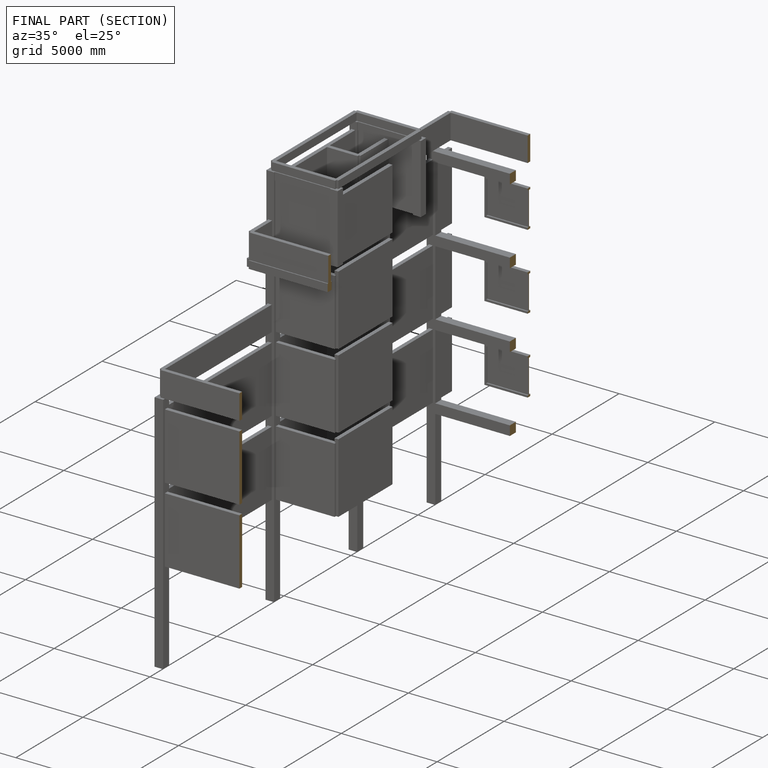
[diagram: finished part — half-section view (interior)]
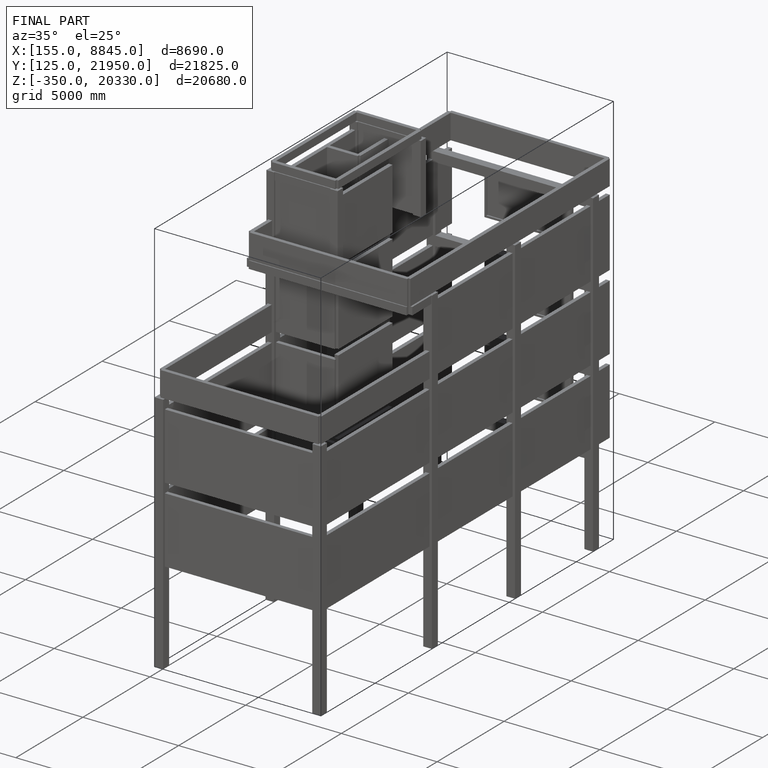
[diagram: finished part — iso view with bounding-box wireframe]
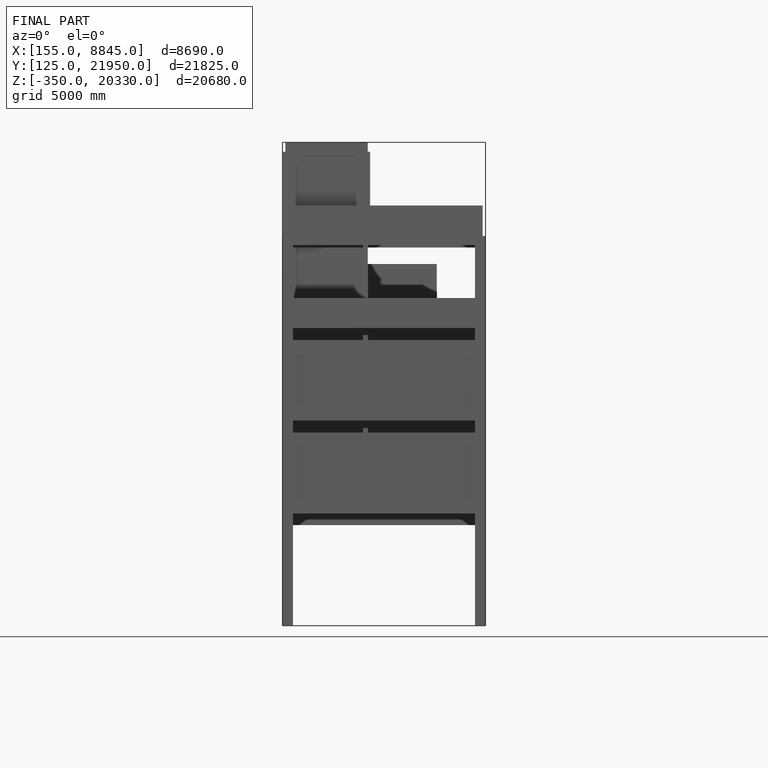
[diagram: finished part — front view with bounding-box wireframe]
